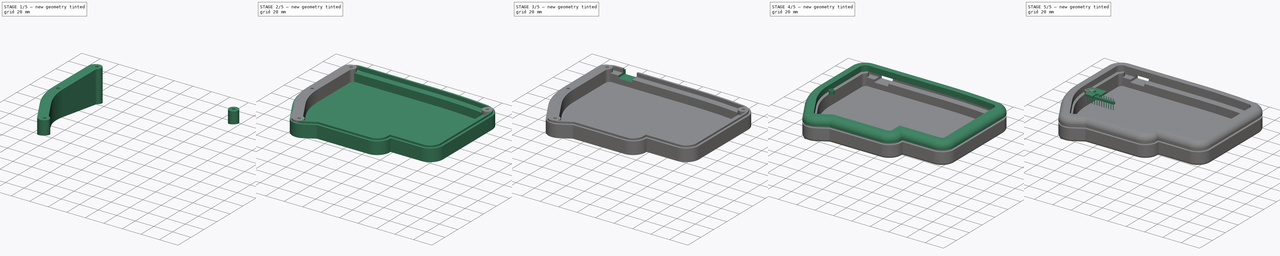
[diagram: build sequence overview — one tinted view per stage of 5, left to right]
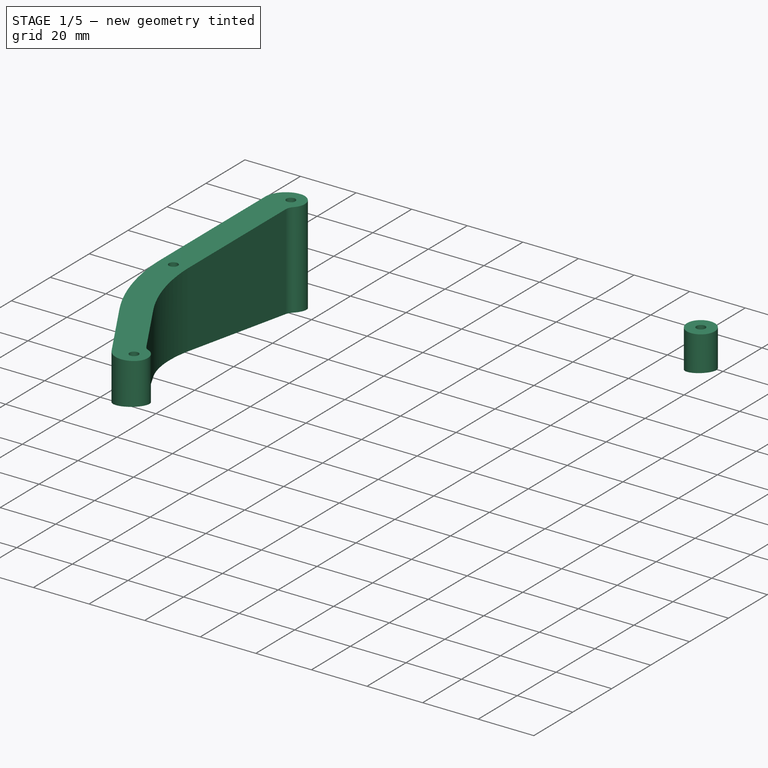
[diagram: stage 1 of 5 — iso view after this stage's code; geometry added in this stage tinted green]
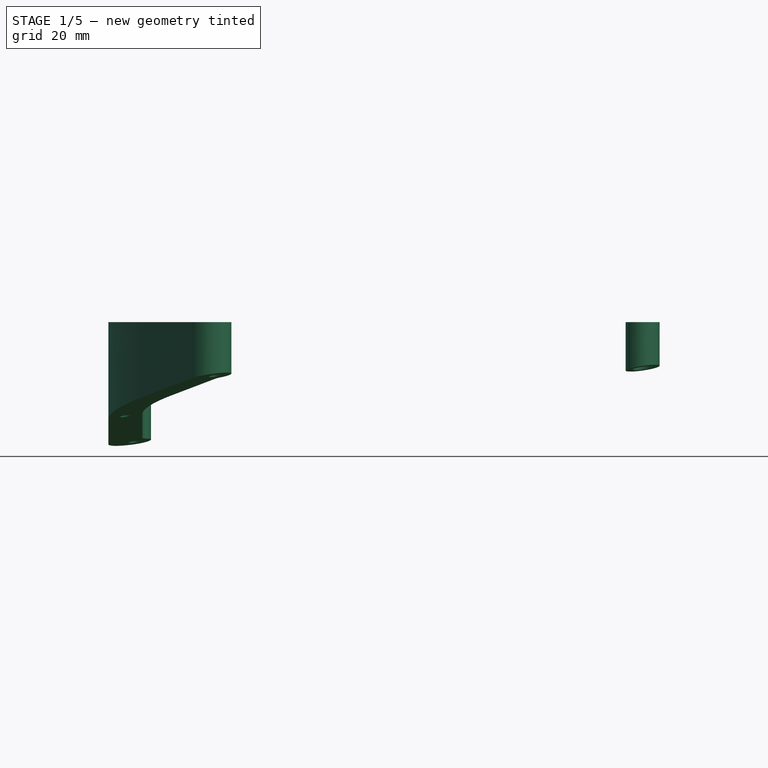
[diagram: stage 1 of 5 — front view after this stage's code; geometry added in this stage tinted green]
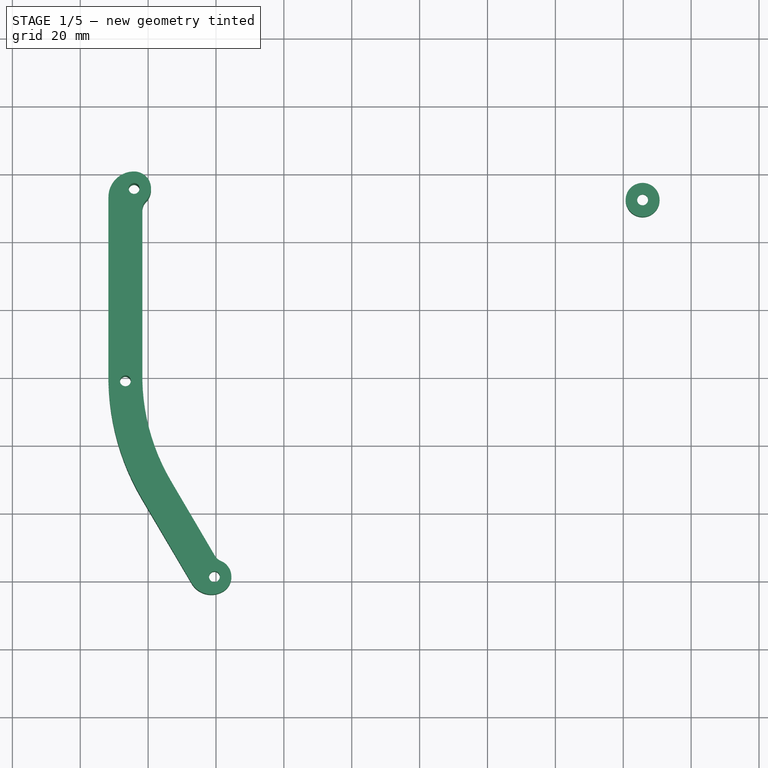
[diagram: stage 1 of 5 — top view after this stage's code; geometry added in this stage tinted green]
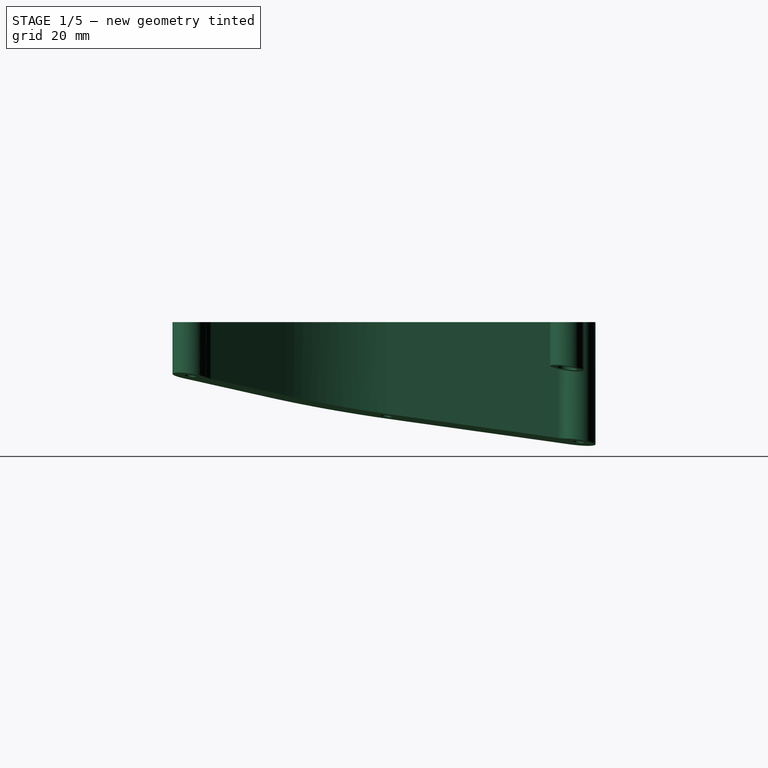
[diagram: stage 1 of 5 — right view after this stage's code; geometry added in this stage tinted green]
FCSTD DOCUMENT  (FreeCAD 0.21R33694 (Git))
Label: pro_case_usbc_gasket_mount
License: All rights reserved
LicenseURL: http://en.wikipedia.org/wiki/All_rights_reserved
objects: Sketcher::SketchObject×33, PartDesign::CoordinateSystem×26, PartDesign::Pocket×13, PartDesign::Pad×12, App::Part×11, App::Link×11, PartDesign::Body×9, Spreadsheet::Sheet×8, PartDesign::Plane×6, PartDesign::ShapeBinder×6, Part::Feature×3, App::DocumentObjectGroup×3, PartDesign::Hole×2, PartDesign::Fillet×2, App::FeaturePython×1, PartDesign::LinearPattern×1, PartDesign::MultiTransform×1
note: 143 computed .brp shape members not serialized (recipe doc carries the construction recipe); baked Part::Feature solids carry a one-line shape summary decoded from their .brp

FEATURE [Part::Feature] Board_outline
  Placement = pos=(-82.9363,87.5957,1.6) rot=(0,0,1;0rad)
  shape: bbox 142.5 x 106.3 x 1.6 mm, 253 faces (baked)
FEATURE [PartDesign::Plane] DatumPlane
  AttachmentOffset = pos=(0,0,13.56) rot=(0,0,1;0rad)
  Length = 135.867
  MapMode = 5
  Placement = pos=(-13.56,3e-15,-3e-15) rot=(-0.57735,0.57735,0.57735;4.18879rad)
  ResizeMode = 0
  Support = -> [YZ_Plane003]
  Width = 65.5147
  expr: .AttachmentOffset.Base.z = <<ss_case>>.hole_plane_offset
FEATURE [Sketcher::SketchObject] PCB_Sketch_f218
  FullyConstrained = false
  sketch-geometry (120):
    g0: LineSegment StartX=116.187 StartY=-136.481 StartZ=0 EndX=117.862 EndY=-135.511 EndZ=0
    g1: LineSegment StartX=114.511 StartY=-137.451 StartZ=0 EndX=116.187 EndY=-136.481 EndZ=0
    g2: LineSegment StartX=82.9375 StartY=-50.7506 StartZ=0 EndX=82.9375 EndY=-44.4437 EndZ=0
    g3: LineSegment StartX=82.9375 StartY=-57.0576 StartZ=0 EndX=82.9375 EndY=-50.7506 EndZ=0
    g4: LineSegment StartX=115.212 StartY=-37.0868 StartZ=0 EndX=104.804 EndY=-37.0868 EndZ=0
    g5: LineSegment StartX=218.692 StartY=-120.79 StartZ=0 EndX=223.96 EndY=-120.79 EndZ=0
    g6: LineSegment StartX=213.425 StartY=-120.79 StartZ=0 EndX=218.692 EndY=-120.79 EndZ=0
    g7: LineSegment StartX=208.157 StartY=-120.79 StartZ=0 EndX=213.425 EndY=-120.79 EndZ=0
    g8: LineSegment StartX=202.89 StartY=-120.79 StartZ=0 EndX=208.157 EndY=-120.79 EndZ=0
    g9: LineSegment StartX=197.622 StartY=-120.79 StartZ=0 EndX=202.89 EndY=-120.79 EndZ=0
    g10: LineSegment StartX=192.355 StartY=-120.79 StartZ=0 EndX=197.622 EndY=-120.79 EndZ=0
    g11: LineSegment StartX=187.087 StartY=-120.79 StartZ=0 EndX=192.355 EndY=-120.79 EndZ=0
    g12: LineSegment StartX=181.819 StartY=-120.79 StartZ=0 EndX=187.087 EndY=-120.79 EndZ=0
    g13: LineSegment StartX=181.114 StartY=-120.861 StartZ=0 EndX=181.819 EndY=-120.79 EndZ=0
    g14: LineSegment StartX=180.456 StartY=-121.065 StartZ=0 EndX=181.114 EndY=-120.861 EndZ=0
    g15: LineSegment StartX=179.862 StartY=-121.387 StartZ=0 EndX=180.456 EndY=-121.065 EndZ=0
    g16: LineSegment StartX=179.344 StartY=-121.814 StartZ=0 EndX=179.862 EndY=-121.387 EndZ=0
    g17: LineSegment StartX=178.917 StartY=-122.332 StartZ=0 EndX=179.344 EndY=-121.814 EndZ=0
    g18: LineSegment StartX=178.594 StartY=-122.927 StartZ=0 EndX=178.917 EndY=-122.332 EndZ=0
    g19: LineSegment StartX=178.39 StartY=-123.584 StartZ=0 EndX=178.594 EndY=-122.927 EndZ=0
    g20: LineSegment StartX=178.319 StartY=-124.29 StartZ=0 EndX=178.39 EndY=-123.584 EndZ=0
    g21: LineSegment StartX=199.808 StartY=-38.1705 StartZ=0 EndX=189.92 EndY=-37.5854 EndZ=0
    g22: LineSegment StartX=208.421 StartY=-38.9456 StartZ=0 EndX=199.808 EndY=-38.1705 EndZ=0
    g23: LineSegment StartX=215.526 StartY=-39.8852 StartZ=0 EndX=208.421 EndY=-38.9456 EndZ=0
    g24: LineSegment StartX=220.889 StartY=-40.9638 StartZ=0 EndX=215.526 EndY=-39.8852 EndZ=0
    g25: LineSegment StartX=178.99 StartY=-37.2157 StartZ=0 EndX=167.251 EndY=-37.0868 EndZ=0
    g26: LineSegment StartX=189.92 StartY=-37.5854 StartZ=0 EndX=178.99 EndY=-37.2157 EndZ=0
    g27: LineSegment StartX=177.658 StartY=-135.256 StartZ=0 EndX=177.404 EndY=-135.394 EndZ=0
    g28: LineSegment StartX=177.88 StartY=-135.073 StartZ=0 EndX=177.658 EndY=-135.256 EndZ=0
    g29: LineSegment StartX=178.063 StartY=-134.851 StartZ=0 EndX=177.88 EndY=-135.073 EndZ=0
    g30: LineSegment StartX=178.202 StartY=-134.596 StartZ=0 EndX=178.063 EndY=-134.851 EndZ=0
    g31: LineSegment StartX=178.289 StartY=-134.314 StartZ=0 EndX=178.202 EndY=-134.596 EndZ=0
    g32: LineSegment StartX=178.319 StartY=-134.012 StartZ=0 EndX=178.289 EndY=-134.314 EndZ=0
    g33: LineSegment StartX=225.46 StartY=-52.9184 StartZ=0 EndX=225.46 EndY=-62.4 EndZ=0
    g34: LineSegment StartX=225.46 StartY=-43.4368 StartZ=0 EndX=225.46 EndY=-52.9184 EndZ=0
    g35: LineSegment StartX=82.9375 StartY=-69.6714 StartZ=0 EndX=82.9375 EndY=-63.3645 EndZ=0
    g36: LineSegment StartX=82.9375 StartY=-75.9784 StartZ=0 EndX=82.9375 EndY=-69.6714 EndZ=0
    g37: LineSegment StartX=82.9375 StartY=-82.2853 StartZ=0 EndX=82.9375 EndY=-75.9784 EndZ=0
    g38: LineSegment StartX=82.9375 StartY=-88.5922 StartZ=0 EndX=82.9375 EndY=-82.2853 EndZ=0
    g39: LineSegment StartX=104.804 StartY=-37.0868 StartZ=0 EndX=94.396 EndY=-37.0868 EndZ=0
    g40: LineSegment StartX=125.62 StartY=-37.0868 StartZ=0 EndX=115.212 EndY=-37.0868 EndZ=0
    g41: LineSegment StartX=136.027 StartY=-37.0868 StartZ=0 EndX=125.62 EndY=-37.0868 EndZ=0
    g42: LineSegment StartX=146.435 StartY=-37.0868 StartZ=0 EndX=136.027 EndY=-37.0868 EndZ=0
    g43: LineSegment StartX=156.843 StartY=-37.0868 StartZ=0 EndX=146.435 EndY=-37.0868 EndZ=0
    g44: LineSegment StartX=167.251 StartY=-37.0868 StartZ=0 EndX=156.843 EndY=-37.0868 EndZ=0
    g45: LineSegment StartX=83.4009 StartY=-37.266 StartZ=0 EndX=83.5793 EndY=-37.1692 EndZ=0
    g46: LineSegment StartX=83.2456 StartY=-37.3941 StartZ=0 EndX=83.4009 EndY=-37.266 EndZ=0
    g47: LineSegment StartX=83.1174 StartY=-37.5495 StartZ=0 EndX=83.2456 EndY=-37.3941 EndZ=0
    g48: LineSegment StartX=83.0207 StartY=-37.7279 StartZ=0 EndX=83.1174 EndY=-37.5495 EndZ=0
    g49: LineSegment StartX=82.9595 StartY=-37.925 StartZ=0 EndX=83.0207 EndY=-37.7279 EndZ=0
    g50: LineSegment StartX=82.9382 StartY=-38.1368 StartZ=0 EndX=82.9595 EndY=-37.925 EndZ=0
    g51: LineSegment StartX=83.7765 StartY=-37.1081 StartZ=0 EndX=83.9882 EndY=-37.0868 EndZ=0
    g52: LineSegment StartX=83.5793 StartY=-37.1692 StartZ=0 EndX=83.7765 EndY=-37.1081 EndZ=0
    g53: LineSegment StartX=94.396 StartY=-37.0868 StartZ=0 EndX=83.9882 EndY=-37.0868 EndZ=0
    g54: LineSegment StartX=82.9375 StartY=-63.3645 StartZ=0 EndX=82.9375 EndY=-57.0576 EndZ=0
    g55: LineSegment StartX=82.9375 StartY=-44.4437 StartZ=0 EndX=82.9382 EndY=-38.1368 EndZ=0
    g56: LineSegment StartX=88.2918 StartY=-116.318 StartZ=0 EndX=89.9933 EndY=-119.99 EndZ=0
    g57: LineSegment StartX=86.8631 StartY=-112.531 StartZ=0 EndX=88.2918 EndY=-116.318 EndZ=0
    g58: LineSegment StartX=85.688 StartY=-108.649 StartZ=0 EndX=86.8631 EndY=-112.531 EndZ=0
    g59: LineSegment StartX=84.7471 StartY=-104.695 StartZ=0 EndX=85.688 EndY=-108.649 EndZ=0
    g60: LineSegment StartX=84.021 StartY=-100.691 StartZ=0 EndX=84.7471 EndY=-104.695 EndZ=0
    g61: LineSegment StartX=83.4903 StartY=-96.6577 StartZ=0 EndX=84.021 EndY=-100.691 EndZ=0
    g62: LineSegment StartX=83.1357 StartY=-92.6176 StartZ=0 EndX=83.4903 EndY=-96.6577 EndZ=0
    g63: LineSegment StartX=82.9375 StartY=-88.5922 StartZ=0 EndX=83.1357 EndY=-92.6176 EndZ=0
    g64: LineSegment StartX=104.289 StartY=-143.357 StartZ=0 EndX=104.457 EndY=-143.272 EndZ=0
    g65: LineSegment StartX=104.13 StartY=-143.404 StartZ=0 EndX=104.289 EndY=-143.357 EndZ=0
    g66: LineSegment StartX=103.981 StartY=-143.414 StartZ=0 EndX=104.13 EndY=-143.404 EndZ=0
    g67: LineSegment StartX=103.842 StartY=-143.386 StartZ=0 EndX=103.981 EndY=-143.414 EndZ=0
    g68: LineSegment StartX=103.714 StartY=-143.323 StartZ=0 EndX=103.842 EndY=-143.386 EndZ=0
    g69: LineSegment StartX=103.597 StartY=-143.223 StartZ=0 EndX=103.714 EndY=-143.323 EndZ=0
    g70: LineSegment StartX=103.492 StartY=-143.088 StartZ=0 EndX=103.597 EndY=-143.223 EndZ=0
    g71: LineSegment StartX=103.398 StartY=-142.919 StartZ=0 EndX=103.492 EndY=-143.088 EndZ=0
    g72: LineSegment StartX=112.835 StartY=-138.421 StartZ=0 EndX=114.511 EndY=-137.451 EndZ=0
    g73: LineSegment StartX=111.16 StartY=-139.391 StartZ=0 EndX=112.835 EndY=-138.421 EndZ=0
    g74: LineSegment StartX=109.484 StartY=-140.361 StartZ=0 EndX=111.16 EndY=-139.391 EndZ=0
    g75: LineSegment StartX=107.808 StartY=-141.331 StartZ=0 EndX=109.484 EndY=-140.361 EndZ=0
    g76: LineSegment StartX=106.132 StartY=-142.302 StartZ=0 EndX=107.808 EndY=-141.331 EndZ=0
    g77: LineSegment StartX=104.457 StartY=-143.272 StartZ=0 EndX=106.132 EndY=-142.302 EndZ=0
    g78: LineSegment StartX=101.723 StartY=-140.053 StartZ=0 EndX=103.398 EndY=-142.919 EndZ=0
    g79: LineSegment StartX=100.047 StartY=-137.186 StartZ=0 EndX=101.723 EndY=-140.053 EndZ=0
    g80: LineSegment StartX=98.3713 StartY=-134.32 StartZ=0 EndX=100.047 EndY=-137.186 EndZ=0
    g81: LineSegment StartX=96.6956 StartY=-131.454 StartZ=0 EndX=98.3713 EndY=-134.32 EndZ=0
    g82: LineSegment StartX=95.02 StartY=-128.587 StartZ=0 EndX=96.6956 EndY=-131.454 EndZ=0
    g83: LineSegment StartX=93.3443 StartY=-125.721 StartZ=0 EndX=95.02 EndY=-128.587 EndZ=0
    g84: LineSegment StartX=91.6686 StartY=-122.855 StartZ=0 EndX=93.3443 EndY=-125.721 EndZ=0
    g85: LineSegment StartX=89.9933 StartY=-119.99 StartZ=0 EndX=91.6686 EndY=-122.855 EndZ=0
    g86: LineSegment StartX=169.45 StartY=-135.512 StartZ=0 EndX=176.819 EndY=-135.512 EndZ=0
    g87: LineSegment StartX=162.08 StartY=-135.512 StartZ=0 EndX=169.45 EndY=-135.512 EndZ=0
    g88: LineSegment StartX=154.711 StartY=-135.512 StartZ=0 EndX=162.08 EndY=-135.512 EndZ=0
    g89: LineSegment StartX=147.341 StartY=-135.512 StartZ=0 EndX=154.711 EndY=-135.512 EndZ=0
    g90: LineSegment StartX=139.972 StartY=-135.512 StartZ=0 EndX=147.341 EndY=-135.512 EndZ=0
    g91: LineSegment StartX=132.602 StartY=-135.512 StartZ=0 EndX=139.972 EndY=-135.512 EndZ=0
    g92: LineSegment StartX=125.233 StartY=-135.512 StartZ=0 EndX=132.602 EndY=-135.512 EndZ=0
    g93: LineSegment StartX=117.862 StartY=-135.511 StartZ=0 EndX=125.233 EndY=-135.512 EndZ=0
    g94: LineSegment StartX=178.319 StartY=-132.816 StartZ=0 EndX=178.319 EndY=-134.012 EndZ=0
    g95: LineSegment StartX=178.319 StartY=-131.598 StartZ=0 EndX=178.319 EndY=-132.816 EndZ=0
    g96: LineSegment StartX=178.319 StartY=-130.38 StartZ=0 EndX=178.319 EndY=-131.598 EndZ=0
    g97: LineSegment StartX=178.319 StartY=-129.162 StartZ=0 EndX=178.319 EndY=-130.38 EndZ=0
    g98: LineSegment StartX=178.319 StartY=-127.944 StartZ=0 EndX=178.319 EndY=-129.162 EndZ=0
    g99: LineSegment StartX=178.319 StartY=-126.726 StartZ=0 EndX=178.319 EndY=-127.944 EndZ=0
    g100: LineSegment StartX=178.319 StartY=-125.508 StartZ=0 EndX=178.319 EndY=-126.726 EndZ=0
    g101: LineSegment StartX=178.319 StartY=-124.29 StartZ=0 EndX=178.319 EndY=-125.508 EndZ=0
    g102: LineSegment StartX=177.122 StartY=-135.481 StartZ=0 EndX=176.819 EndY=-135.512 EndZ=0
    g103: LineSegment StartX=177.404 StartY=-135.394 StartZ=0 EndX=177.122 EndY=-135.481 EndZ=0
    g104: LineSegment StartX=224.278 StartY=-42.1562 StartZ=0 EndX=220.889 EndY=-40.9638 EndZ=0
    g105: LineSegment StartX=225.46 StartY=-43.4368 StartZ=0 EndX=224.278 EndY=-42.1562 EndZ=0
    g106: LineSegment StartX=224.262 StartY=-120.759 StartZ=0 EndX=223.96 EndY=-120.79 EndZ=0
    g107: LineSegment StartX=224.544 StartY=-120.672 StartZ=0 EndX=224.262 EndY=-120.759 EndZ=0
    g108: LineSegment StartX=224.799 StartY=-120.534 StartZ=0 EndX=224.544 EndY=-120.672 EndZ=0
    g109: LineSegment StartX=225.021 StartY=-120.351 StartZ=0 EndX=224.799 EndY=-120.534 EndZ=0
    g110: LineSegment StartX=225.204 StartY=-120.129 StartZ=0 EndX=225.021 EndY=-120.351 EndZ=0
    g111: LineSegment StartX=225.342 StartY=-119.874 StartZ=0 EndX=225.204 EndY=-120.129 EndZ=0
    g112: LineSegment StartX=225.43 StartY=-119.592 StartZ=0 EndX=225.342 EndY=-119.874 EndZ=0
    g113: LineSegment StartX=225.46 StartY=-119.29 StartZ=0 EndX=225.43 EndY=-119.592 EndZ=0
    g114: LineSegment StartX=225.46 StartY=-109.808 StartZ=0 EndX=225.46 EndY=-119.29 EndZ=0
    g115: LineSegment StartX=225.46 StartY=-100.326 StartZ=0 EndX=225.46 EndY=-109.808 EndZ=0
    g116: LineSegment StartX=225.46 StartY=-90.8449 StartZ=0 EndX=225.46 EndY=-100.326 EndZ=0
    g117: LineSegment StartX=225.46 StartY=-81.3632 StartZ=0 EndX=225.46 EndY=-90.8449 EndZ=0
    g118: LineSegment StartX=225.46 StartY=-71.8816 StartZ=0 EndX=225.46 EndY=-81.3632 EndZ=0
    g119: LineSegment StartX=225.46 StartY=-62.4 StartZ=0 EndX=225.46 EndY=-71.8816 EndZ=0
  constraints (120):
    c: Coincident(g38,g63)
    c: Coincident(g37,g38)
    c: Coincident(g36,g37)
    c: Coincident(g35,g36)
    c: Coincident(g35,g54)
    c: Coincident(g3,g54)
    c: Coincident(g2,g3)
    c: Coincident(g2,g55)
    c: Coincident(g50,g55)
    c: Coincident(g49,g50)
    c: Coincident(g48,g49)
    c: Coincident(g47,g48)
    c: Coincident(g62,g63)
    c: Coincident(g46,g47)
    c: Coincident(g45,g46)
    c: Coincident(g61,g62)
    c: Coincident(g45,g52)
    c: Coincident(g51,g52)
    c: Coincident(g51,g53)
    c: Coincident(g60,g61)
    c: Coincident(g59,g60)
    c: Coincident(g58,g59)
    c: Coincident(g57,g58)
    c: Coincident(g56,g57)
    c: Coincident(g56,g85)
    c: Coincident(g84,g85)
    c: Coincident(g83,g84)
    c: Coincident(g39,g53)
    c: Coincident(g82,g83)
    c: Coincident(g81,g82)
    c: Coincident(g80,g81)
    c: Coincident(g79,g80)
    c: Coincident(g78,g79)
    c: Coincident(g71,g78)
    c: Coincident(g70,g71)
    c: Coincident(g69,g70)
    c: Coincident(g68,g69)
    c: Coincident(g67,g68)
    c: Coincident(g66,g67)
    c: Coincident(g65,g66)
    c: Coincident(g64,g65)
    c: Coincident(g64,g77)
    c: Coincident(g4,g39)
    c: Coincident(g76,g77)
    c: Coincident(g75,g76)
    c: Coincident(g74,g75)
    c: Coincident(g73,g74)
    c: Coincident(g72,g73)
    c: Coincident(g1,g72)
    c: Coincident(g4,g40)
    c: Coincident(g0,g1)
    c: Coincident(g0,g93)
    c: Coincident(g92,g93)
    c: Coincident(g40,g41)
    c: Coincident(g91,g92)
    c: Coincident(g41,g42)
    c: Coincident(g90,g91)
    c: Coincident(g42,g43)
    c: Coincident(g89,g90)
    c: Coincident(g88,g89)
    c: Coincident(g43,g44)
    c: Coincident(g87,g88)
    c: Coincident(g25,g44)
    c: Coincident(g86,g87)
    c: Coincident(g86,g102)
    c: Coincident(g102,g103)
    c: Coincident(g27,g103)
    c: Coincident(g27,g28)
    c: Coincident(g28,g29)
    c: Coincident(g29,g30)
    c: Coincident(g30,g31)
    c: Coincident(g31,g32)
    c: Coincident(g32,g94)
    c: Coincident(g94,g95)
    c: Coincident(g95,g96)
    c: Coincident(g96,g97)
    c: Coincident(g97,g98)
    c: Coincident(g98,g99)
    c: Coincident(g99,g100)
    c: Coincident(g100,g101)
    c: Coincident(g20,g101)
    c: Coincident(g19,g20)
    c: Coincident(g18,g19)
    c: Coincident(g17,g18)
    c: Coincident(g25,g26)
    c: Coincident(g16,g17)
    c: Coincident(g15,g16)
    c: Coincident(g14,g15)
    c: Coincident(g13,g14)
    c: Coincident(g12,g13)
    c: Coincident(g11,g12)
    c: Coincident(g21,g26)
    c: Coincident(g10,g11)
    c: Coincident(g9,g10)
    c: Coincident(g21,g22)
    c: Coincident(g8,g9)
    c: Coincident(g7,g8)
    c: Coincident(g22,g23)
    c: Coincident(g6,g7)
    c: Coincident(g23,g24)
    c: Coincident(g5,g6)
    c: Coincident(g24,g104)
    c: Coincident(g5,g106)
    c: Coincident(g106,g107)
    c: Coincident(g104,g105)
    c: Coincident(g107,g108)
    c: Coincident(g108,g109)
    c: Coincident(g109,g110)
    c: Coincident(g110,g111)
    c: Coincident(g111,g112)
    c: Coincident(g112,g113)
    c: Coincident(g113,g114)
    c: Coincident(g114,g115)
    c: Coincident(g115,g116)
    c: Coincident(g116,g117)
    c: Coincident(g117,g118)
    c: Coincident(g118,g119)
    c: Coincident(g33,g119)
    c: Coincident(g33,g34)
    c: Coincident(g34,g105)
FEATURE [Part::Feature] Pcb_f218
  Placement = pos=(-117.862,135.511,1.6) rot=(0,0,1;0rad)
  shape: bbox 142.5 x 106.3 x 1.6 mm, 823 faces (baked)
FEATURE [PartDesign::ShapeBinder] ShapeBinder002
  Placement = pos=(-82.9363,87.5957,1.6) rot=(0,0,1;0rad)
  Support = -> [Board_outline]
  TraceSupport = false
FEATURE [Sketcher::SketchObject] Sketch008  label="s_top_plate001"
  ExternalGeometry = -> [ShapeBinder002]
  FullyConstrained = true
  MapMode = 5
  Support = -> [XY_Plane010]
  expr: Constraints[435] = <<ss_top_plate>>.screw_hole_od
  expr: Constraints[85] = <<ss_top_plate>>.gasket_width
  sketch-geometry (187):
    g0: LineSegment StartX=27.7441 StartY=2.20222 StartZ=0 EndX=27.7441 EndY=50.2465 EndZ=0
    g1: LineSegment StartX=29.9578 StartY=52.4601 StartZ=0 EndX=84.3125 EndY=52.4601 EndZ=0
    g2: LineSegment StartX=142.522 StartY=46.1101 StartZ=0 EndX=142.522 EndY=-29.7428 EndZ=0
    g3: LineSegment StartX=95.381 StartY=-34.7428 StartZ=0 EndX=95.381 EndY=-44.4872 EndZ=0
    g4: LineSegment StartX=93.9034 StartY=-45.9648 StartZ=0 EndX=34.9248 EndY=-45.9648 EndZ=0
    g5: LineSegment StartX=34.9248 StartY=-45.9648 StartZ=0 EndX=21.3774 EndY=-53.8065 EndZ=0
    g6: LineSegment StartX=20.5079 StartY=-53.5776 StartZ=0 EndX=7.05497 EndY=-30.6854 EndZ=0
    g7: LineSegment StartX=98.881 StartY=-31.2428 StartZ=0 EndX=141.022 EndY=-31.2428 EndZ=0
    g8: LineSegment StartX=27.7441 StartY=2.20222 StartZ=0 EndX=2.19941 EndY=2.20233 EndZ=0
    g9: ArcOfCircle CenterX=59.4385 CenterY=0.0985715 CenterZ=0 NormalX=0 NormalY=0 NormalZ=1 AngleXU=0 Radius=60.7592 StartAngle=3.16603 EndAngle=3.67289
    g10: ArcOfCircle CenterX=2.19939 CenterY=-1.30071 CenterZ=0 NormalX=0 NormalY=0 NormalZ=1 AngleXU=0 Radius=3.50304 StartAngle=1.57079 EndAngle=3.16603
    g11: ArcOfCircle CenterX=84.3125 CenterY=-450.952 CenterZ=0 NormalX=0 NormalY=0 NormalZ=1 AngleXU=0 Radius=503.412 StartAngle=1.46083 EndAngle=1.5708
    g12: ArcOfCircle CenterX=139.192 CenterY=46.1101 CenterZ=0 NormalX=0 NormalY=0 NormalZ=1 AngleXU=0 Radius=3.32961 StartAngle=6e-16 EndAngle=1.46083
    g13: ArcOfCircle CenterX=21.0579 CenterY=-53.2544 CenterZ=0 NormalX=0 NormalY=0 NormalZ=1 AngleXU=0 Radius=0.637877 StartAngle=3.67289 EndAngle=5.2371
    g14: ArcOfCircle CenterX=93.9034 CenterY=-44.4872 CenterZ=0 NormalX=0 NormalY=0 NormalZ=1 AngleXU=0 Radius=1.47761 StartAngle=4.71239 EndAngle=6.28319
    g15: ArcOfCircle CenterX=98.881 CenterY=-34.7428 CenterZ=0 NormalX=0 NormalY=0 NormalZ=1 AngleXU=0 Radius=3.5 StartAngle=1.5708 EndAngle=3.14159
    g16: ArcOfCircle CenterX=141.022 CenterY=-29.7428 CenterZ=0 NormalX=0 NormalY=0 NormalZ=1 AngleXU=0 Radius=1.5 StartAngle=4.71239 EndAngle=6.28319
    g17: ArcOfCircle CenterX=29.9578 CenterY=50.2465 CenterZ=0 NormalX=0 NormalY=0 NormalZ=1 AngleXU=0 Radius=2.21364 StartAngle=1.5708 EndAngle=3.14159
    g18: LineSegment StartX=-1.3026 StartY=-1.38632 StartZ=0 EndX=0.0777 EndY=-1.38632 EndZ=0
    g19: LineSegment StartX=27.7344 StartY=59.4601 StartZ=0 EndX=84.3125 EndY=59.4601 EndZ=0
    g20: LineSegment StartX=149.522 StartY=46.1101 StartZ=0 EndX=149.522 EndY=-29.7428 EndZ=0
    g21: LineSegment StartX=141.022 StartY=-38.2428 StartZ=0 EndX=102.381 EndY=-38.2428 EndZ=0
    g22: LineSegment StartX=102.381 StartY=-38.2428 StartZ=0 EndX=102.381 EndY=-44.4872 EndZ=0
    g23: LineSegment StartX=93.9034 StartY=-52.9648 StartZ=0 EndX=36.8046 EndY=-52.9648 EndZ=0
    g24: LineSegment StartX=36.8046 StartY=-52.9648 StartZ=0 EndX=24.8842 EndY=-59.8648 EndZ=0
    g25: LineSegment StartX=14.4729 StartY=-57.1242 StartZ=0 EndX=1.01993 EndY=-34.232 EndZ=0
    g26: ArcOfCircle CenterX=139.192 CenterY=46.1101 CenterZ=0 NormalX=0 NormalY=0 NormalZ=1 AngleXU=0 Radius=10.3296 StartAngle=0 EndAngle=1.46083
    g27: ArcOfCircle CenterX=84.3125 CenterY=-450.952 CenterZ=0 NormalX=0 NormalY=0 NormalZ=1 AngleXU=0 Radius=510.412 StartAngle=1.46083 EndAngle=1.5708
    g28: ArcOfCircle CenterX=59.4385 CenterY=0.0985715 CenterZ=0 NormalX=0 NormalY=0 NormalZ=1 AngleXU=0 Radius=67.7592 StartAngle=3.16351 EndAngle=3.67289
    g29: ArcOfCircle CenterX=21.0579 CenterY=-53.2544 CenterZ=0 NormalX=0 NormalY=0 NormalZ=1 AngleXU=0 Radius=7.63788 StartAngle=3.67289 EndAngle=5.2371
    g30: ArcOfCircle CenterX=93.9034 CenterY=-44.4872 CenterZ=0 NormalX=0 NormalY=0 NormalZ=1 AngleXU=0 Radius=8.47761 StartAngle=4.71239 EndAngle=6.28319
    g31: ArcOfCircle CenterX=141.022 CenterY=-29.7428 CenterZ=0 NormalX=0 NormalY=0 NormalZ=1 AngleXU=0 Radius=8.5 StartAngle=4.71239 EndAngle=6.28319
    g32: LineSegment StartX=141.022 StartY=-38.2428 StartZ=0 EndX=141.022 EndY=-31.2428 EndZ=0
    g33: LineSegment StartX=93.9034 StartY=-52.9648 StartZ=0 EndX=93.9034 EndY=-45.9648 EndZ=0
    g34: LineSegment StartX=24.8842 StartY=-59.8648 StartZ=0 EndX=21.3774 EndY=-53.8065 EndZ=0
    g35: LineSegment StartX=1.01993 StartY=-34.232 StartZ=0 EndX=7.05497 EndY=-30.6854 EndZ=0
    g36: LineSegment StartX=27.7344 StartY=59.4601 StartZ=0 EndX=27.7441 EndY=4.40223 EndZ=0
    g37: LineSegment StartX=25.5445 StartY=2.20223 StartZ=0 EndX=-4.79372 EndY=2.20223 EndZ=0
    g38: ArcOfCircle CenterX=-4.79372 CenterY=-1.30937 CenterZ=0 NormalX=0 NormalY=0 NormalZ=1 AngleXU=0 Radius=3.5116 StartAngle=1.5708 EndAngle=3.16351
    g39: ArcOfCircle CenterX=25.5445 CenterY=4.40184 CenterZ=0 NormalX=0 NormalY=0 NormalZ=1 AngleXU=0 Radius=2.19961 StartAngle=4.71239 EndAngle=6.28336
    g40: LineSegment StartX=84.3125 StartY=52.4601 StartZ=0 EndX=84.3125 EndY=59.4601 EndZ=0
    g41: LineSegment StartX=11.463 StartY=-0.95364 StartZ=0 EndX=25.4152 EndY=-0.95364 EndZ=0
    g42: LineSegment StartX=25.4152 StartY=-0.95364 StartZ=0 EndX=25.4152 EndY=-14.9537 EndZ=0
    g43: LineSegment StartX=25.4152 StartY=-14.9537 StartZ=0 EndX=11.463 EndY=-14.9537 EndZ=0
    g44: LineSegment StartX=11.463 StartY=-14.9537 StartZ=0 EndX=11.463 EndY=-0.95364 EndZ=0
    g45: LineSegment StartX=30.5626 StartY=46.5466 StartZ=0 EndX=44.5628 EndY=46.5466 EndZ=0
    g46: LineSegment StartX=44.5628 StartY=46.5466 StartZ=0 EndX=44.5628 EndY=32.5466 EndZ=0
    g47: LineSegment StartX=44.5628 StartY=32.5466 StartZ=0 EndX=30.5626 EndY=32.5466 EndZ=0
    g48: LineSegment StartX=30.5626 StartY=32.5466 StartZ=0 EndX=30.5626 EndY=46.5466 EndZ=0
    g49: LineSegment StartX=49.5629 StartY=48.9469 StartZ=0 EndX=63.5631 EndY=48.9469 EndZ=0
    g50: LineSegment StartX=63.5631 StartY=48.9469 StartZ=0 EndX=63.5631 EndY=34.9469 EndZ=0
    g51: LineSegment StartX=63.5631 StartY=34.9469 StartZ=0 EndX=49.5629 EndY=34.9469 EndZ=0
    g52: LineSegment StartX=49.5629 StartY=34.9469 StartZ=0 EndX=49.5629 EndY=48.9469 EndZ=0
    g53: LineSegment StartX=68.5928 StartY=50.3363 StartZ=0 EndX=82.593 EndY=50.3363 EndZ=0
    g54: LineSegment StartX=82.593 StartY=50.3363 StartZ=0 EndX=82.593 EndY=36.3362 EndZ=0
    g55: LineSegment StartX=82.593 StartY=36.3362 StartZ=0 EndX=68.5928 EndY=36.3362 EndZ=0
    g56: LineSegment StartX=68.5928 StartY=36.3362 StartZ=0 EndX=68.5928 EndY=50.3363 EndZ=0
    g57: LineSegment StartX=87.6676 StartY=48.9469 StartZ=0 EndX=101.668 EndY=48.9469 EndZ=0
    g58: LineSegment StartX=101.668 StartY=48.9469 StartZ=0 EndX=101.668 EndY=34.9469 EndZ=0
    g59: LineSegment StartX=101.668 StartY=34.9469 StartZ=0 EndX=87.6676 EndY=34.9469 EndZ=0
    g60: LineSegment StartX=87.6676 StartY=34.9469 StartZ=0 EndX=87.6676 EndY=48.9469 EndZ=0
    g61: LineSegment StartX=106.764 StartY=44.1463 StartZ=0 EndX=120.764 EndY=44.1463 EndZ=0
    g62: LineSegment StartX=120.764 StartY=44.1463 StartZ=0 EndX=120.764 EndY=30.1463 EndZ=0
    g63: LineSegment StartX=120.764 StartY=30.1463 StartZ=0 EndX=106.764 EndY=30.1463 EndZ=0
    g64: LineSegment StartX=106.764 StartY=30.1463 StartZ=0 EndX=106.764 EndY=44.1463 EndZ=0
    g65: LineSegment StartX=125.761 StartY=42.6469 StartZ=0 EndX=139.762 EndY=42.6469 EndZ=0
    g66: LineSegment StartX=139.762 StartY=42.6469 StartZ=0 EndX=139.762 EndY=28.6464 EndZ=0
    g67: LineSegment StartX=139.762 StartY=28.6464 StartZ=0 EndX=125.761 EndY=28.6464 EndZ=0
    g68: LineSegment StartX=125.761 StartY=28.6464 StartZ=0 EndX=125.761 EndY=42.6469 EndZ=0
    g69: LineSegment StartX=30.5636 StartY=27.4453 StartZ=0 EndX=44.5638 EndY=27.4453 EndZ=0
    g70: LineSegment StartX=44.5638 StartY=27.4453 StartZ=0 EndX=44.5638 EndY=13.4453 EndZ=0
    g71: LineSegment StartX=44.5638 StartY=13.4453 StartZ=0 EndX=30.5636 EndY=13.4453 EndZ=0
    g72: LineSegment StartX=30.5636 StartY=13.4453 StartZ=0 EndX=30.5636 EndY=27.4453 EndZ=0
    g73: LineSegment StartX=49.5629 StartY=29.8461 StartZ=0 EndX=63.5631 EndY=29.8461 EndZ=0
    g74: LineSegment StartX=63.5631 StartY=29.8461 StartZ=0 EndX=63.5631 EndY=15.8461 EndZ=0
    g75: LineSegment StartX=63.5631 StartY=15.8461 StartZ=0 EndX=49.5629 EndY=15.8461 EndZ=0
    g76: LineSegment StartX=49.5629 StartY=15.8461 StartZ=0 EndX=49.5629 EndY=29.8461 EndZ=0
    g77: LineSegment StartX=68.6637 StartY=31.2457 StartZ=0 EndX=82.6639 EndY=31.2457 EndZ=0
    g78: LineSegment StartX=82.6639 StartY=31.2457 StartZ=0 EndX=82.6639 EndY=17.2456 EndZ=0
    g79: LineSegment StartX=82.6639 StartY=17.2456 StartZ=0 EndX=68.6637 EndY=17.2456 EndZ=0
    g80: LineSegment StartX=68.6637 StartY=17.2456 StartZ=0 EndX=68.6637 EndY=31.2457 EndZ=0
    g81: LineSegment StartX=87.6617 StartY=29.9467 StartZ=0 EndX=101.662 EndY=29.9467 EndZ=0
    g82: LineSegment StartX=101.662 StartY=29.9467 StartZ=0 EndX=101.662 EndY=15.9466 EndZ=0
    g83: LineSegment StartX=101.662 StartY=15.9466 StartZ=0 EndX=87.6617 EndY=15.9466 EndZ=0
    g84: LineSegment StartX=87.6617 StartY=15.9466 StartZ=0 EndX=87.6617 EndY=29.9467 EndZ=0
    g85: LineSegment StartX=106.762 StartY=25.2462 StartZ=0 EndX=120.763 EndY=25.2462 EndZ=0
    g86: LineSegment StartX=120.763 StartY=25.2462 StartZ=0 EndX=120.763 EndY=11.2462 EndZ=0
    g87: LineSegment StartX=120.763 StartY=11.2462 StartZ=0 EndX=106.762 EndY=11.2462 EndZ=0
    g88: LineSegment StartX=106.762 StartY=11.2462 StartZ=0 EndX=106.762 EndY=25.2462 EndZ=0
    g89: LineSegment StartX=125.761 StartY=23.7455 StartZ=0 EndX=139.762 EndY=23.7455 EndZ=0
    g90: LineSegment StartX=139.762 StartY=23.7455 StartZ=0 EndX=139.762 EndY=9.74756 EndZ=0
    g91: LineSegment StartX=139.762 StartY=9.74756 StartZ=0 EndX=125.761 EndY=9.74756 EndZ=0
    g92: LineSegment StartX=125.761 StartY=9.74756 StartZ=0 EndX=125.761 EndY=23.7455 EndZ=0
    g93: LineSegment StartX=30.5626 StartY=8.44811 StartZ=0 EndX=44.5628 EndY=8.44811 EndZ=0
    g94: LineSegment StartX=44.5628 StartY=8.44811 StartZ=0 EndX=44.5628 EndY=-5.55192 EndZ=0
    g95: LineSegment StartX=44.5628 StartY=-5.55192 StartZ=0 EndX=30.5626 EndY=-5.55192 EndZ=0
    g96: LineSegment StartX=30.5626 StartY=-5.55192 StartZ=0 EndX=30.5626 EndY=8.44811 EndZ=0
    g97: LineSegment StartX=49.5638 StartY=10.8451 StartZ=0 EndX=63.564 EndY=10.8451 EndZ=0
    g98: LineSegment StartX=63.564 StartY=10.8451 StartZ=0 EndX=63.564 EndY=-3.15488 EndZ=0
    g99: LineSegment StartX=63.564 StartY=-3.15488 StartZ=0 EndX=49.5638 EndY=-3.15488 EndZ=0
    g100: LineSegment StartX=49.5638 StartY=-3.15488 StartZ=0 EndX=49.5638 EndY=10.8451 EndZ=0
    g101: LineSegment StartX=68.6637 StartY=12.1474 StartZ=0 EndX=82.6639 EndY=12.1474 EndZ=0
    g102: LineSegment StartX=82.6639 StartY=12.1474 StartZ=0 EndX=82.6639 EndY=-1.85258 EndZ=0
    g103: LineSegment StartX=82.6639 StartY=-1.85258 StartZ=0 EndX=68.6637 EndY=-1.85258 EndZ=0
    g104: LineSegment StartX=68.6637 StartY=-1.85258 StartZ=0 EndX=68.6637 EndY=12.1474 EndZ=0
    g105: LineSegment StartX=87.6637 StartY=10.8474 StartZ=0 EndX=101.664 EndY=10.8474 EndZ=0
    g106: LineSegment StartX=101.664 StartY=10.8474 StartZ=0 EndX=101.664 EndY=-3.15263 EndZ=0
    g107: LineSegment StartX=101.664 StartY=-3.15263 StartZ=0 EndX=87.6637 EndY=-3.15263 EndZ=0
    g108: LineSegment StartX=87.6637 StartY=-3.15263 StartZ=0 EndX=87.6637 EndY=10.8474 EndZ=0
    g109: LineSegment StartX=106.749 StartY=6.04637 StartZ=0 EndX=120.749 EndY=6.04637 EndZ=0
    g110: LineSegment StartX=120.749 StartY=6.04637 StartZ=0 EndX=120.749 EndY=-7.95365 EndZ=0
    g111: LineSegment StartX=120.749 StartY=-7.95365 StartZ=0 EndX=106.749 EndY=-7.95365 EndZ=0
    g112: LineSegment StartX=106.749 StartY=-7.95365 StartZ=0 EndX=106.749 EndY=6.04637 EndZ=0
    g113: LineSegment StartX=125.764 StartY=4.54519 StartZ=0 EndX=139.764 EndY=4.54519 EndZ=0
    g114: LineSegment StartX=139.764 StartY=4.54519 StartZ=0 EndX=139.764 EndY=-9.45483 EndZ=0
    g115: LineSegment StartX=139.764 StartY=-9.45483 StartZ=0 EndX=125.764 EndY=-9.45483 EndZ=0
    g116: LineSegment StartX=125.764 StartY=-9.45483 StartZ=0 EndX=125.764 EndY=4.54519 EndZ=0
    g117: LineSegment StartX=30.5626 StartY=-10.5548 StartZ=0 EndX=44.5628 EndY=-10.5548 EndZ=0
    g118: LineSegment StartX=44.5628 StartY=-10.5548 StartZ=0 EndX=44.5628 EndY=-24.5548 EndZ=0
    g119: LineSegment StartX=44.5628 StartY=-24.5548 StartZ=0 EndX=30.5626 EndY=-24.5548 EndZ=0
    g120: LineSegment StartX=30.5626 StartY=-24.5548 StartZ=0 EndX=30.5626 EndY=-10.5548 EndZ=0
    g121: LineSegment StartX=49.5638 StartY=-8.25337 StartZ=0 EndX=63.564 EndY=-8.25337 EndZ=0
    g122: LineSegment StartX=63.564 StartY=-8.25337 StartZ=0 EndX=63.564 EndY=-22.2534 EndZ=0
    g123: LineSegment StartX=63.564 StartY=-22.2534 StartZ=0 EndX=49.5638 EndY=-22.2534 EndZ=0
    g124: LineSegment StartX=49.5638 StartY=-22.2534 StartZ=0 EndX=49.5638 EndY=-8.25337 EndZ=0
    g125: LineSegment StartX=68.6625 StartY=-6.85278 StartZ=0 EndX=82.6627 EndY=-6.85278 EndZ=0
    g126: LineSegment StartX=82.6627 StartY=-6.85278 StartZ=0 EndX=82.6627 EndY=-20.8528 EndZ=0
    g127: LineSegment StartX=82.6627 StartY=-20.8528 StartZ=0 EndX=68.6625 EndY=-20.8528 EndZ=0
    g128: LineSegment StartX=68.6625 StartY=-20.8528 StartZ=0 EndX=68.6625 EndY=-6.85278 EndZ=0
    g129: LineSegment StartX=87.663 StartY=-8.25358 StartZ=0 EndX=101.663 EndY=-8.25358 EndZ=0
    g130: LineSegment StartX=101.663 StartY=-8.25358 StartZ=0 EndX=101.663 EndY=-22.2536 EndZ=0
    g131: LineSegment StartX=101.663 StartY=-22.2536 StartZ=0 EndX=87.663 EndY=-22.2536 EndZ=0
    g132: LineSegment StartX=87.663 StartY=-22.2536 StartZ=0 EndX=87.663 EndY=-8.25358 EndZ=0
    g133: LineSegment StartX=106.763 StartY=-12.9526 StartZ=0 EndX=120.764 EndY=-12.9526 EndZ=0
    g134: LineSegment StartX=120.764 StartY=-12.9526 StartZ=0 EndX=120.764 EndY=-26.9526 EndZ=0
    g135: LineSegment StartX=120.764 StartY=-26.9526 StartZ=0 EndX=106.763 EndY=-26.9526 EndZ=0
    g136: LineSegment StartX=106.763 StartY=-26.9526 StartZ=0 EndX=106.763 EndY=-12.9526 EndZ=0
    g137: LineSegment StartX=125.812 StartY=-14.4535 StartZ=0 EndX=139.813 EndY=-14.4535 EndZ=0
    g138: LineSegment StartX=139.813 StartY=-14.4535 StartZ=0 EndX=139.813 EndY=-28.4535 EndZ=0
    g139: LineSegment StartX=139.813 StartY=-28.4535 StartZ=0 EndX=125.812 EndY=-28.4535 EndZ=0
    g140: LineSegment StartX=125.812 StartY=-28.4535 StartZ=0 EndX=125.812 EndY=-14.4535 EndZ=0
    g141: LineSegment StartX=40.0622 StartY=-29.4536 StartZ=0 EndX=54.0624 EndY=-29.4536 EndZ=0
    g142: LineSegment StartX=54.0624 StartY=-29.4536 StartZ=0 EndX=54.0624 EndY=-43.4537 EndZ=0
    g143: LineSegment StartX=54.0624 StartY=-43.4537 StartZ=0 EndX=40.0622 EndY=-43.4537 EndZ=0
    g144: LineSegment StartX=40.0622 StartY=-43.4537 StartZ=0 EndX=40.0622 EndY=-29.4536 EndZ=0
    g145: LineSegment StartX=59.0628 StartY=-27.2032 StartZ=0 EndX=73.063 EndY=-27.2032 EndZ=0
    g146: LineSegment StartX=73.063 StartY=-27.2032 StartZ=0 EndX=73.063 EndY=-41.2032 EndZ=0
    g147: LineSegment StartX=73.063 StartY=-41.2032 StartZ=0 EndX=59.0628 EndY=-41.2032 EndZ=0
    g148: LineSegment StartX=59.0628 StartY=-41.2032 StartZ=0 EndX=59.0628 EndY=-27.2032 EndZ=0
    g149: LineSegment StartX=78.1633 StartY=-27.2043 StartZ=0 EndX=92.1637 EndY=-27.2043 EndZ=0
    g150: LineSegment StartX=92.1637 StartY=-27.2043 StartZ=0 EndX=92.1637 EndY=-41.2047 EndZ=0
    g151: LineSegment StartX=92.1637 StartY=-41.2047 StartZ=0 EndX=78.1633 EndY=-41.2047 EndZ=0
    g152: LineSegment StartX=78.1633 StartY=-41.2047 StartZ=0 EndX=78.1633 EndY=-27.2043 EndZ=0
    g153: LineSegment StartX=12.5009 StartY=-34.891 StartZ=0 EndX=24.6255 EndY=-27.8909 EndZ=0
    g154: LineSegment StartX=24.6255 StartY=-27.8909 StartZ=0 EndX=31.6255 EndY=-40.0153 EndZ=0
    g155: LineSegment StartX=31.6255 StartY=-40.0153 StartZ=0 EndX=19.501 EndY=-47.0154 EndZ=0
    g156: LineSegment StartX=19.501 StartY=-47.0154 StartZ=0 EndX=12.5009 EndY=-34.891 EndZ=0
    g157: Circle CenterX=46.6637 CenterY=29.8957 CenterZ=0 NormalX=0 NormalY=0 NormalZ=1 AngleXU=0 Radius=1.2
    g158: Circle CenterX=122.864 CenterY=27.6957 CenterZ=0 NormalX=0 NormalY=0 NormalZ=1 AngleXU=0 Radius=1.2
    g159: Circle CenterX=122.864 CenterY=-10.5043 CenterZ=0 NormalX=0 NormalY=0 NormalZ=1 AngleXU=0 Radius=1.2
    g160: Circle CenterX=46.6637 CenterY=-8.10427 CenterZ=0 NormalX=0 NormalY=0 NormalZ=1 AngleXU=0 Radius=1.2
    g161: Circle CenterX=22.0637 CenterY=-25.3043 CenterZ=0 NormalX=0 NormalY=0 NormalZ=1 AngleXU=0 Radius=1.2
    g162: Circle CenterX=145.695 CenterY=51.9344 CenterZ=0 NormalX=0 NormalY=0 NormalZ=1 AngleXU=0 Radius=1.6
    g163: Circle CenterX=145.901 CenterY=-34.6219 CenterZ=0 NormalX=0 NormalY=0 NormalZ=1 AngleXU=0 Radius=1.6
    g164: Circle CenterX=98.7666 CenterY=-49.3504 CenterZ=0 NormalX=0 NormalY=0 NormalZ=1 AngleXU=0 Radius=1.6
    g165: Circle CenterX=19.5209 CenterY=-59.0934 CenterZ=0 NormalX=0 NormalY=0 NormalZ=1 AngleXU=0 Radius=1.6
    g166: Circle CenterX=-6.70447 CenterY=-1.38632 CenterZ=0 NormalX=0 NormalY=0 NormalZ=1 AngleXU=0 Radius=1.6
    g167: LineSegment StartX=20.8955 StartY=-53.8713 StartZ=0 EndX=19.1136 EndY=-60.6407 EndZ=0
    g168: LineSegment StartX=19.1136 StartY=-60.6407 StartZ=0 EndX=24.8842 EndY=-59.8648 EndZ=0
    g169: LineSegment StartX=19.1136 StartY=-60.6407 StartZ=0 EndX=14.4729 EndY=-57.1242 EndZ=0
    g170: LineSegment StartX=20.5079 StartY=-53.5776 StartZ=0 EndX=20.8955 EndY=-53.8713 EndZ=0
    g171: LineSegment StartX=21.3774 StartY=-53.8065 StartZ=0 EndX=20.8955 EndY=-53.8713 EndZ=0
    g172: LineSegment StartX=94.9482 StartY=-45.532 StartZ=0 EndX=99.8979 EndY=-50.4817 EndZ=0
    g173: LineSegment StartX=94.9482 StartY=-45.532 StartZ=0 EndX=93.9034 EndY=-44.4872 EndZ=0
    g174: LineSegment StartX=93.9034 StartY=-52.9648 StartZ=0 EndX=99.8979 EndY=-50.4817 EndZ=0
    g175: LineSegment StartX=99.8979 StartY=-50.4817 StartZ=0 EndX=102.381 EndY=-44.4872 EndZ=0
    g176: LineSegment StartX=142.082 StartY=-30.8035 StartZ=0 EndX=147.032 EndY=-35.7533 EndZ=0
    g177: LineSegment StartX=141.022 StartY=-38.2428 StartZ=0 EndX=147.032 EndY=-35.7533 EndZ=0
    g178: LineSegment StartX=147.032 StartY=-35.7533 StartZ=0 EndX=149.522 EndY=-29.7428 EndZ=0
    g179: LineSegment StartX=141.022 StartY=-31.2428 StartZ=0 EndX=142.082 EndY=-30.8035 EndZ=0
    g180: LineSegment StartX=142.082 StartY=-30.8035 StartZ=0 EndX=142.522 EndY=-29.7428 EndZ=0
    g181: LineSegment StartX=141.672 StartY=48.3316 StartZ=0 EndX=146.887 EndY=53.0018 EndZ=0
    g182: LineSegment StartX=140.326 StartY=56.3773 StartZ=0 EndX=146.887 EndY=53.0018 EndZ=0
    g183: LineSegment StartX=146.887 StartY=53.0018 StartZ=0 EndX=149.522 EndY=46.1101 EndZ=0
    g184: LineSegment StartX=142.522 StartY=46.1101 StartZ=0 EndX=141.672 EndY=48.3316 EndZ=0
    g185: LineSegment StartX=141.672 StartY=48.3316 StartZ=0 EndX=139.557 EndY=49.4196 EndZ=0
    g186: LineSegment StartX=-1.3026 StartY=-1.38632 StartZ=0 EndX=-8.30447 EndY=-1.38632 EndZ=0
  constraints (448):
    c: Vertical(g0)
    c: Coincident(g1,g-3)
    c: Horizontal(g1)
    c: Vertical(g2)
    c: Coincident(g4,g-8)
    c: Coincident(g4,g5)
    c: Coincident(g6,g-9)
    c: PointOnObject(g-8,g5)
    c: PointOnObject(g-7,g4)
    c: Horizontal(g7)
    c: Coincident(g8,g0)
    c: Tangent(g9,g6) = 1.5708
    c: Tangent(g9,g10) = -1.5708
    c: Tangent(g8,g10) = -1.5708
    c: Tangent(g11,g1) = 1.5708
    c: PointOnObject(g-13,g11)
    c: Tangent(g11,g12) = -1.5708
    c: Tangent(g2,g12) = 1.5708
    c: Coincident(g2,g-4)
    c: Tangent(g5,g13) = 1.5708
    c: Tangent(g6,g13) = 1.5708
    c: Coincident(g6,g-9)
    c: Tangent(g4,g14) = 1.5708
    c: Tangent(g3,g14) = 1.5708
    c: Tangent(g3,g15) = -1.5708
    c: Tangent(g7,g15) = 1.5708
    c: Tangent(g7,g16) = -1.5708
    c: Tangent(g2,g16) = 1.5708
    c: Coincident(g7,g-5)
    c: Coincident(g3,g-6)
    c: Coincident(g3,g-6)
    c: Coincident(g8,g-10)
    c: Tangent(g0,g17) = 1.5708
    c: Tangent(g1,g17) = 1.5708
    c: Coincident(g0,g-11)
    c: Coincident(g18,g9)
    c: Coincident(g18,g-12)
    c: Horizontal(g18)
    c: Horizontal(g19)
    c: Vertical(g20)
    c: Horizontal(g21)
    c: Coincident(g21,g22)
    c: Vertical(g22)
    c: Horizontal(g23)
    c: Coincident(g23,g24)
    c: Coincident(g27,g11)
    c: Tangent(g27,g19) = 1.5708
    c: Tangent(g27,g26) = -1.5708
    c: Tangent(g26,g20) = 1.5708
    c: Coincident(g28,g9)
    c: Coincident(g28,g25)
    c: Tangent(g25,g29) = 1.5708
    c: Tangent(g24,g29) = 1.5708
    c: Tangent(g23,g30) = 1.5708
    c: Tangent(g22,g30) = 1.5708
    c: Tangent(g21,g31) = 1.5708
    c: Tangent(g20,g31) = 1.5708
    c: Coincident(g31,g16)
    c: Coincident(g26,g12)
    c: Coincident(g29,g13)
    c: Parallel(g24,g5)
    c: Parallel(g6,g25)
    c: Coincident(g30,g14)
    c: Coincident(g32,g21)
    c: Coincident(g32,g7)
    c: Coincident(g33,g23)
    c: Coincident(g33,g4)
    c: Coincident(g34,g24)
    c: Coincident(g34,g5)
    c: Coincident(g35,g25)
    c: Coincident(g35,g6)
    c: Perpendicular(g6,g35)
    c: Coincident(g36,g19)
    c: Horizontal(g37)
    c: Tangent(g28,g38) = -1.5708
    c: Tangent(g37,g38) = -1.5708
    c: Horizontal(g28,g9)
    c: Tangent(g36,g39) = 1.5708
    c: Tangent(g37,g39) = 1.5708
    c: Coincident(g37,g-10)
    c: Coincident(g36,g-11)
    c: Coincident(g40,g1)
    c: Coincident(g40,g19)
    c: Equal(g32,g33)
    c: Equal(g33,g34)
    c: DistanceY(g40,g40) = 7
    c: PointOnObject(g37,g8)
    c: Coincident(g41,g42)
    c: Coincident(g42,g43)
    c: Coincident(g43,g44)
    c: Coincident(g44,g41)
    c: Horizontal(g41)
    c: Horizontal(g43)
    c: Vertical(g42)
    c: Vertical(g44)
    c: Coincident(g41,g-16)
    c: Coincident(g42,g-17)
    c: Coincident(g45,g46)
    c: Coincident(g46,g47)
    c: Coincident(g47,g48)
    c: Coincident(g48,g45)
    c: Horizontal(g45)
    c: Horizontal(g47)
    c: Vertical(g46)
    c: Vertical(g48)
    c: Coincident(g45,g-18)
    c: Coincident(g46,g-19)
    c: Coincident(g49,g50)
    c: Coincident(g50,g51)
    c: Coincident(g51,g52)
    c: Coincident(g52,g49)
    c: Horizontal(g49)
    c: Horizontal(g51)
    c: Vertical(g50)
    c: Vertical(g52)
    c: Coincident(g49,g-20)
    c: Coincident(g50,g-21)
    c: Coincident(g53,g54)
    c: Coincident(g54,g55)
    c: Coincident(g55,g56)
    c: Coincident(g56,g53)
    c: Horizontal(g53)
    c: Horizontal(g55)
    c: Vertical(g54)
    c: Vertical(g56)
    c: Coincident(g53,g-22)
    c: Coincident(g54,g-23)
    c: Coincident(g57,g58)
    c: Coincident(g58,g59)
    c: Coincident(g59,g60)
    c: Coincident(g60,g57)
    c: Horizontal(g57)
    c: Horizontal(g59)
    c: Vertical(g58)
    c: Vertical(g60)
    c: Coincident(g57,g-24)
    c: Coincident(g58,g-25)
    c: Coincident(g61,g62)
    c: Coincident(g62,g63)
    c: Coincident(g63,g64)
    c: Coincident(g64,g61)
    c: Horizontal(g61)
    c: Horizontal(g63)
    c: Vertical(g62)
    c: Vertical(g64)
    c: Coincident(g61,g-26)
    c: Coincident(g62,g-27)
    c: Coincident(g65,g66)
    c: Coincident(g66,g67)
    c: Coincident(g67,g68)
    c: Coincident(g68,g65)
    c: Horizontal(g65)
    c: Horizontal(g67)
    c: Vertical(g66)
    c: Vertical(g68)
    c: Coincident(g65,g-28)
    c: Coincident(g66,g-29)
    c: Coincident(g69,g70)
    c: Coincident(g70,g71)
    c: Coincident(g71,g72)
    c: Coincident(g72,g69)
    c: Horizontal(g69)
    c: Horizontal(g71)
    c: Vertical(g70)
    c: Vertical(g72)
    c: Coincident(g69,g-40)
    c: Coincident(g70,g-41)
    c: Coincident(g73,g74)
    c: Coincident(g74,g75)
    c: Coincident(g75,g76)
    c: Coincident(g76,g73)
    c: Horizontal(g73)
    c: Horizontal(g75)
    c: Vertical(g74)
    c: Vertical(g76)
    c: Coincident(g73,g-38)
    c: Coincident(g74,g-39)
    c: Coincident(g77,g78)
    c: Coincident(g78,g79)
    c: Coincident(g79,g80)
    c: Coincident(g80,g77)
    c: Horizontal(g77)
    c: Horizontal(g79)
    c: Vertical(g78)
    c: Vertical(g80)
    c: Coincident(g77,g-37)
    c: Coincident(g78,g-36)
    c: Coincident(g81,g82)
    c: Coincident(g82,g83)
    c: Coincident(g83,g84)
    c: Coincident(g84,g81)
    c: Horizontal(g81)
    c: Horizontal(g83)
    c: Vertical(g82)
    c: Vertical(g84)
    c: Coincident(g81,g-34)
    c: Coincident(g82,g-35)
    c: Coincident(g85,g86)
    c: Coincident(g86,g87)
    c: Coincident(g87,g88)
    c: Coincident(g88,g85)
    c: Horizontal(g85)
    c: Horizontal(g87)
    c: Vertical(g86)
    c: Vertical(g88)
    c: Coincident(g85,g-33)
    c: Coincident(g86,g-32)
    c: Coincident(g89,g90)
    c: Coincident(g90,g91)
    c: Coincident(g91,g92)
    c: Coincident(g92,g89)
    c: Horizontal(g89)
    c: Horizontal(g91)
    c: Vertical(g90)
    c: Vertical(g92)
    c: Coincident(g89,g-30)
    c: Coincident(g90,g-31)
    c: Coincident(g93,g94)
    c: Coincident(g94,g95)
    c: Coincident(g95,g96)
    c: Coincident(g96,g93)
    c: Horizontal(g93)
    c: Horizontal(g95)
    c: Vertical(g94)
    c: Vertical(g96)
    c: Coincident(g93,g-45)
    c: Coincident(g94,g-44)
    c: Coincident(g97,g98)
    c: Coincident(g98,g99)
    c: Coincident(g99,g100)
    c: Coincident(g100,g97)
    c: Horizontal(g97)
    c: Horizontal(g99)
    c: Vertical(g98)
    c: Vertical(g100)
    c: Coincident(g97,g-46)
    c: Coincident(g98,g-48)
    c: Coincident(g101,g102)
    c: Coincident(g102,g103)
    c: Coincident(g103,g104)
    c: Coincident(g104,g101)
    c: Horizontal(g101)
    c: Horizontal(g103)
    c: Vertical(g102)
    c: Vertical(g104)
    c: Coincident(g101,g-47)
    c: Coincident(g102,g-49)
    c: Coincident(g105,g106)
    c: Coincident(g106,g107)
    c: Coincident(g107,g108)
    c: Coincident(g108,g105)
    c: Horizontal(g105)
    c: Horizontal(g107)
    c: Vertical(g106)
    c: Vertical(g108)
    c: Coincident(g105,g-50)
    c: Coincident(g106,g-51)
    c: Coincident(g109,g110)
    c: Coincident(g110,g111)
    c: Coincident(g111,g112)
    c: Coincident(g112,g109)
    c: Horizontal(g109)
    c: Horizontal(g111)
    c: Vertical(g110)
    c: Vertical(g112)
    c: Coincident(g109,g-52)
    c: Coincident(g110,g-53)
    c: Coincident(g113,g114)
    c: Coincident(g114,g115)
    c: Coincident(g115,g116)
    c: Coincident(g116,g113)
    c: Horizontal(g113)
    c: Horizontal(g115)
    c: Vertical(g114)
    c: Vertical(g116)
    c: Coincident(g113,g-54)
    c: Coincident(g114,g-55)
    c: Coincident(g117,g118)
    c: Coincident(g118,g119)
    c: Coincident(g119,g120)
    c: Coincident(g120,g117)
    c: Horizontal(g117)
    c: Horizontal(g119)
    c: Vertical(g118)
    c: Vertical(g120)
    c: Coincident(g117,g-66)
    c: Coincident(g118,g-67)
    c: Coincident(g121,g122)
    c: Coincident(g122,g123)
    c: Coincident(g123,g124)
    c: Coincident(g124,g121)
    c: Horizontal(g121)
    c: Horizontal(g123)
    c: Vertical(g122)
    c: Vertical(g124)
    c: Coincident(g121,g-64)
    c: Coincident(g122,g-65)
    c: Coincident(g125,g126)
    c: Coincident(g126,g127)
    c: Coincident(g127,g128)
    c: Coincident(g128,g125)
    c: Horizontal(g125)
    c: Horizontal(g127)
    c: Vertical(g126)
    c: Vertical(g128)
    c: Coincident(g125,g-62)
    c: Coincident(g126,g-63)
    c: Coincident(g129,g130)
    c: Coincident(g130,g131)
    c: Coincident(g131,g132)
    c: Coincident(g132,g129)
    c: Horizontal(g129)
    c: Horizontal(g131)
    c: Vertical(g130)
    c: Vertical(g132)
    c: Coincident(g129,g-60)
    c: Coincident(g130,g-61)
    c: Coincident(g133,g134)
    c: Coincident(g134,g135)
    c: Coincident(g135,g136)
    c: Coincident(g136,g133)
    c: Horizontal(g133)
    c: Horizontal(g135)
    c: Vertical(g134)
    c: Vertical(g136)
    c: Coincident(g133,g-58)
    c: Coincident(g134,g-59)
    c: Coincident(g137,g138)
    c: Coincident(g138,g139)
    c: Coincident(g139,g140)
    c: Coincident(g140,g137)
    c: Horizontal(g137)
    c: Horizontal(g139)
    c: Vertical(g138)
    c: Vertical(g140)
    c: Coincident(g137,g-56)
    c: Coincident(g138,g-57)
    c: Coincident(g141,g142)
    c: Coincident(g142,g143)
    c: Coincident(g143,g144)
    c: Coincident(g144,g141)
    c: Horizontal(g141)
    c: Horizontal(g143)
    c: Vertical(g142)
    c: Vertical(g144)
    c: Coincident(g141,g-74)
    c: Coincident(g142,g-75)
    c: Coincident(g145,g146)
    c: Coincident(g146,g147)
    c: Coincident(g147,g148)
    c: Coincident(g148,g145)
    c: Horizontal(g145)
    c: Horizontal(g147)
    c: Vertical(g146)
    c: Vertical(g148)
    c: Coincident(g145,g-72)
    c: Coincident(g146,g-73)
    c: Coincident(g149,g150)
    c: Coincident(g150,g151)
    c: Coincident(g151,g152)
    c: Coincident(g152,g149)
    c: Horizontal(g149)
    c: Horizontal(g151)
    c: Vertical(g150)
    c: Vertical(g152)
    c: Coincident(g149,g-70)
    c: Coincident(g150,g-71)
    c: Coincident(g-14,g153)
    c: Coincident(g153,g-14)
    c: Coincident(g153,g154)
    c: Coincident(g154,g-15)
    c: Coincident(g154,g155)
    c: Coincident(g155,g-15)
    c: Coincident(g155,g156)
    c: Coincident(g156,g153)
    c: Coincident(g157,g-42)
    c: Coincident(g158,g-43)
    c: Coincident(g159,g-69)
    c: Coincident(g160,g-68)
    c: Coincident(g161,g-76)
    c: Equal(g157,g158)
    c: Equal(g158,g159)
    c: Equal(g159,g160)
    c: Equal(g160,g-76)
    c: Equal(g-76,g161)
    c: PointOnObject(g167,g13)
    c: PointOnObject(g167,g29)
    c: Coincident(g168,g167)
    c: Coincident(g168,g24)
    c: Coincident(g169,g167)
    c: Coincident(g169,g25)
    c: Equal(g168,g169)
    c: Coincident(g170,g6)
    c: Coincident(g170,g167)
    c: Coincident(g171,g5)
    c: Coincident(g171,g167)
    c: Equal(g171,g170)
    c: PointOnObject(g172,g14)
    c: PointOnObject(g172,g30)
    c: Coincident(g173,g172)
    c: Coincident(g173,g30)
    c: Parallel(g173,g172)
    c: Coincident(g174,g23)
    c: Coincident(g174,g172)
    c: Coincident(g175,g172)
    c: Coincident(g175,g22)
    c: Equal(g175,g174)
    c: PointOnObject(g176,g16)
    c: PointOnObject(g176,g31)
    c: Coincident(g177,g21)
    c: Coincident(g177,g176)
    c: Coincident(g178,g176)
    c: Coincident(g178,g20)
    c: Coincident(g179,g7)
    c: Coincident(g179,g176)
    c: Coincident(g180,g176)
    c: Coincident(g180,g2)
    c: Equal(g180,g179)
    c: Equal(g177,g178)
    c: PointOnObject(g181,g12)
    c: PointOnObject(g181,g26)
    c: Coincident(g182,g26)
    c: Coincident(g182,g181)
    c: Coincident(g183,g181)
    c: Coincident(g183,g20)
    c: Coincident(g184,g2)
    c: Coincident(g184,g181)
    c: Coincident(g185,g181)
    c: Coincident(g185,g11)
    c: Equal(g182,g183)
    c: Equal(g184,g185)
    c: Equal(g162,g163)
    c: Equal(g163,g164)
    c: Equal(g164,g165)
    c: Equal(g165,g166)
    c: Diameter(g162) = 3.2
    c: PointOnObject(g162,g181)
    c: PointOnObject(g181,g162)
    c: PointOnObject(g163,g176)
    c: Tangent(g163,g31)
    c: Tangent(g164,g30)
    c: PointOnObject(g164,g172)
    c: Tangent(g165,g29)
    c: PointOnObject(g165,g167)
    c: Coincident(g186,g9)
    c: Coincident(g186,g28)
    c: PointOnObject(g28,g166)
    c: PointOnObject(g166,g186)
FEATURE [PartDesign::Pad] Pad005  label="p_top_plate"
  Direction = (0,0,1)
  Length = 3
  Length2 = 10
  Profile = -> Sketch008
  ReferenceAxis = -> Sketch008 [N_Axis]
  Type = 0
  expr: Length = <<ss_top_plate>>.thickness
FEATURE [PartDesign::Body] Body001  label="case_bottom"
  Group = -> [ShapeBinder,Sketch009,Pad,Sketch010,Pocket,Sketch011,Sketch012,Pocket002,Pocket001,Sketch,Pocket003,Sketch017,Pocket004,DatumPlane,Sketch018,Sketch019,Pocket006,Pocket005,DatumPlane002,Pad008,Sketch020,Hole,Sketch021,Sketch028,Pocket007,Fillet001]
  Origin = -> Origin003
  Tip = -> Fillet001
FEATURE [App::Part] Part001  label="case_base"
  Group = -> [Body001,Spreadsheet001,lcs_mount_hole_a001,lcs_usb_mount_a,cover_mount,lcs_tent]
  Origin = -> Origin002
  Placement = pos=(-0.631205,0.0327591,0.0672101) rot=(0,0,1;0rad)
FEATURE [PartDesign::ShapeBinder] ShapeBinder005
  Support = -> [Pad005]
  TraceSupport = false
FEATURE [Sketcher::SketchObject] Sketch032
  ExternalGeometry = -> [ShapeBinder005]
  FullyConstrained = true
  MapMode = 5
  Support = -> [XY_Plane023]
  expr: Constraints[13] = <<ss_tenting>>.leg_diameter
  sketch-geometry (25):
    g0: LineSegment StartX=-8.30447 StartY=-1.38632 StartZ=0 EndX=-8.30447 EndY=49.1305 EndZ=0
    g1: LineSegment StartX=2.02513 StartY=59.4601 StartZ=0 EndX=27.7344 EndY=59.4601 EndZ=0
    g2: ArcOfCircle CenterX=2.02513 CenterY=49.1305 CenterZ=0 NormalX=0 NormalY=0 NormalZ=1 AngleXU=0 Radius=10.3296 StartAngle=1.5708 EndAngle=3.14159
    g3: LineSegment StartX=2.02513 StartY=49.1305 StartZ=0 EndX=-3.13967 EndY=54.2953 EndZ=0
    g4: Circle CenterX=-4.14763 CenterY=55.3033 CenterZ=0 NormalX=0 NormalY=0 NormalZ=1 AngleXU=0 Radius=1.6
    g5: Circle CenterX=-4.14763 CenterY=55.3033 CenterZ=0 NormalX=0 NormalY=0 NormalZ=1 AngleXU=0 Radius=5
    g6: Circle CenterX=-6.70447 CenterY=-1.38632 CenterZ=0 NormalX=0 NormalY=0 NormalZ=1 AngleXU=0 Radius=5
    g7: LineSegment StartX=-11.7045 StartY=-1.38632 StartZ=0 EndX=-11.7045 EndY=52.7464 EndZ=0
    g8: ArcOfCircle CenterX=-4.14763 CenterY=52.7464 CenterZ=0 NormalX=0 NormalY=0 NormalZ=1 AngleXU=0 Radius=7.55684 StartAngle=1.5708 EndAngle=3.14159
    g9: LineSegment StartX=-1.70447 StartY=-1.38632 StartZ=0 EndX=-1.70447 EndY=49.1305 EndZ=0
    g10: ArcOfCircle CenterX=-4.14763 CenterY=55.3033 CenterZ=0 NormalX=0 NormalY=0 NormalZ=1 AngleXU=0 Radius=5 StartAngle=5.49779 EndAngle=7.85398
    g11: ArcOfCircle CenterX=2.02513 CenterY=49.1305 CenterZ=0 NormalX=0 NormalY=0 NormalZ=1 AngleXU=0 Radius=3.72961 StartAngle=2.35619 EndAngle=3.14159
    g12: Circle CenterX=-6.70447 CenterY=-1.38632 CenterZ=0 NormalX=0 NormalY=0 NormalZ=1 AngleXU=0 Radius=1.6
    g13: Circle CenterX=-4.14763 CenterY=55.3033 CenterZ=0 NormalX=0 NormalY=0 NormalZ=1 AngleXU=0 Radius=1.6
    g14: Circle CenterX=19.5209 CenterY=-59.0934 CenterZ=0 NormalX=0 NormalY=0 NormalZ=1 AngleXU=0 Radius=5
    g15: ArcOfCircle CenterX=59.4385 CenterY=0.0985715 CenterZ=0 NormalX=0 NormalY=0 NormalZ=1 AngleXU=0 Radius=71.1585 StartAngle=3.16246 EndAngle=3.67289
    g16: ArcOfCircle CenterX=59.4385 CenterY=0.0985715 CenterZ=0 NormalX=0 NormalY=0 NormalZ=1 AngleXU=0 Radius=61.161 StartAngle=3.16587 EndAngle=3.67289
    g17: LineSegment StartX=6.7086 StartY=-30.8889 StartZ=0 EndX=19.6569 EndY=-52.9224 EndZ=0
    g18: LineSegment StartX=-1.91071 StartY=-35.9542 StartZ=0 EndX=6.7086 EndY=-30.8889 EndZ=0
    g19: LineSegment StartX=-1.91071 StartY=-35.9542 StartZ=0 EndX=12.8097 EndY=-61.0033 EndZ=0
    g20: ArcOfCircle CenterX=18.6324 CenterY=-57.5815 CenterZ=0 NormalX=0 NormalY=0 NormalZ=1 AngleXU=0 Radius=6.75363 StartAngle=3.67289 EndAngle=5.24369
    g21: LineSegment StartX=19.5209 StartY=-59.0934 StartZ=0 EndX=22.0541 EndY=-63.4041 EndZ=0
    g22: ArcOfCircle CenterX=22.8724 CenterY=-51.0328 CenterZ=0 NormalX=0 NormalY=0 NormalZ=1 AngleXU=0 Radius=3.72961 StartAngle=3.67289 EndAngle=4.31835
    g23: ArcOfCircle CenterX=19.5209 CenterY=-59.0934 CenterZ=0 NormalX=0 NormalY=0 NormalZ=1 AngleXU=0 Radius=5 StartAngle=5.24369 EndAngle=7.45994
    g24: Circle CenterX=19.5209 CenterY=-59.0934 CenterZ=0 NormalX=0 NormalY=0 NormalZ=1 AngleXU=0 Radius=1.6
  constraints (60):
    c: Coincident(g-3,g0)
    c: Coincident(g1,g-4)
    c: Horizontal(g1)
    c: Vertical(g0)
    c: Tangent(g0,g2) = 1.5708
    c: Tangent(g1,g2) = 1.5708
    c: Equal(g-5,g2)
    c: Coincident(g3,g2)
    c: Symmetric(g0,g1,g3)
    c: PointOnObject(g4,g3)
    c: Tangent(g4,g2)
    c: Equal(g-6,g4)
    c: Coincident(g5,g4)
    c: Diameter(g5) = 10
    c: Coincident(g6,g-6)
    c: Equal(g6,g5)
    c: PointOnObject(g7,g6)
    c: Vertical(g7)
    c: Tangent(g8,g5) = -1.5708
    c: Tangent(g8,g7) = 1.5708
    c: Vertical(g5,g8)
    c: Coincident(g10,g4)
    c: Coincident(g10,g8)
    c: Tangent(g9,g11) = 1.5708
    c: Tangent(g10,g11) = 1.5708
    c: Coincident(g11,g2)
    c: Coincident(g13,g10)
    c: Equal(g13,g12)
    c: Equal(g12,g-6)
    c: Coincident(g14,g-7)
    c: Equal(g14,g6)
    c: Coincident(g15,g-8)
    c: Coincident(g15,g7)
    c: Coincident(g16,g15)
    c: Coincident(g16,g9)
    c: Coincident(g17,g16)
    c: Coincident(g18,g15)
    c: Coincident(g18,g16)
    c: PointOnObject(g-8,g18)
    c: PointOnObject(g9,g6)
    c: Coincident(g19,g15)
    c: Tangent(g20,g19) = -1.5708
    c: Parallel(g19,g-9)
    c: Coincident(g21,g14)
    c: PointOnObject(g21,g14)
    c: Parallel(g21,g-9)
    c: Coincident(g20,g21)
    c: Parallel(g17,g-9)
    c: Coincident(g23,g14)
    c: Coincident(g23,g20)
    c: Tangent(g23,g22) = 1.5708
    c: Tangent(g22,g17) = -1.5708
    c: Perpendicular(g17,g18)
    c: Horizontal(g12,g9)
    c: Coincident(g12,g6)
    c: Perpendicular(g20,g21)
    c: Equal(g11,g22)
    c: Horizontal(g7,g12)
    c: Coincident(g24,g23)
    c: Equal(g24,g12)
FEATURE [PartDesign::CoordinateSystem] lcs_mount
  AttacherType = Attacher::AttachEngine3D
  MapMode = 11
  Placement = pos=(-4.14763,55.3033,0) rot=(0,0,1;1.5708rad)
  Support = -> [Sketch032]
FEATURE [PartDesign::Pad] Pad014
  Direction = (0,0,1)
  Length = 50
  Length2 = 10
  Profile = -> Sketch032
  ReferenceAxis = -> Sketch032 [N_Axis]
  Reversed = true
  Type = 0
FEATURE [Sketcher::SketchObject] Sketch033
  ExternalGeometry = -> [ShapeBinder005]
  FullyConstrained = true
  MapMode = 5
  Support = -> [XY_Plane023]
  expr: Constraints[2] = <<ss_case>>.wall_offset
  sketch-geometry (7):
    g0: LineSegment StartX=149.522 StartY=-29.7428 StartZ=0 EndX=154.772 EndY=-29.7428 EndZ=0
    g1: LineSegment StartX=141.022 StartY=-38.2428 StartZ=0 EndX=141.022 EndY=-43.4928 EndZ=0
    g2: ArcOfCircle CenterX=141.022 CenterY=-29.7428 CenterZ=0 NormalX=0 NormalY=0 NormalZ=1 AngleXU=0 Radius=13.75 StartAngle=4.71239 EndAngle=6.28319
    g3: LineSegment StartX=141.022 StartY=-29.7428 StartZ=0 EndX=150.744 EndY=-39.4656 EndZ=0
    g4: LineSegment StartX=150.744 StartY=-39.4656 StartZ=0 EndX=154.772 EndY=-29.7428 EndZ=0
    g5: LineSegment StartX=150.744 StartY=-39.4656 StartZ=0 EndX=141.022 EndY=-43.4928 EndZ=0
    g6: Circle CenterX=150.744 CenterY=-39.4656 CenterZ=0 NormalX=0 NormalY=0 NormalZ=1 AngleXU=0 Radius=10.5238
  constraints (17):
    c: Coincident(g0,g-4)
    c: Horizontal(g0)
    c: DistanceX(g0,g0) = 5.25
    c: Coincident(g1,g-4)
    c: Vertical(g1)
    c: Coincident(g2,g-4)
    c: Coincident(g2,g0)
    c: Coincident(g2,g1)
    c: Coincident(g3,g2)
    c: PointOnObject(g3,g2)
    c: Coincident(g4,g3)
    c: Coincident(g4,g0)
    c: Coincident(g5,g3)
    c: Coincident(g5,g1)
    c: Equal(g5,g4)
    c: Coincident(g6,g3)
    c: PointOnObject(g1,g6)
FEATURE [PartDesign::Plane] DatumPlane003
  AttachmentOffset = pos=(0,0,0) rot=(-0.706244,0.706244,0.049385;0.197381rad)
  Length = 89.1612
  MapMode = 11
  Placement = pos=(150.744,-39.4656,0) rot=(-0.137845,0,0.990454;1.59017rad)
  ResizeMode = 0
  Support = -> [Sketch033]
  Width = 199.043
  expr: .AttachmentOffset.Rotation.Pitch = <<ss_tenting>>.yaw
  expr: .AttachmentOffset.Rotation.Roll = -<<ss_tenting>>.pitch
FEATURE [Sketcher::SketchObject] Sketch034
  ExternalGeometry = -> [ShapeBinder005]
  FullyConstrained = true
  MapMode = 5
  Placement = pos=(150.744,-39.4656,2e-16) rot=(-0.137845,0,0.990454;1.59017rad)
  Support = -> [DatumPlane003]
  sketch-geometry (4):
    g0: LineSegment StartX=-63.6547 StartY=203.285 StartZ=0 EndX=147.963 EndY=203.285 EndZ=0
    g1: LineSegment StartX=147.963 StartY=203.285 StartZ=0 EndX=147.963 EndY=-50.4467 EndZ=0
    g2: LineSegment StartX=147.963 StartY=-50.4467 StartZ=0 EndX=-63.6547 EndY=-50.4467 EndZ=0
    g3: LineSegment StartX=-63.6547 StartY=-50.4467 StartZ=0 EndX=-63.6547 EndY=203.285 EndZ=0
  constraints (12):
    c: Coincident(g0,g1)
    c: Coincident(g1,g2)
    c: Coincident(g2,g3)
    c: Coincident(g3,g0)
    c: Horizontal(g0)
    c: Horizontal(g2)
    c: Vertical(g1)
    c: Vertical(g3)
    c: DistanceX(g2,g-6) = 50
    c: DistanceX(g-5,g1) = 50
    c: DistanceY(g1,g-4) = 50
    c: DistanceY(g-3,g0) = 50
FEATURE [PartDesign::Pocket] Pocket009
  BaseFeature = -> Pad014
  Direction = (0.139173,-0.137819,-0.980631)
  Length = 5
  Length2 = 5
  Profile = -> Sketch034
  ReferenceAxis = -> Sketch034 [N_Axis]
  Type = 1
FEATURE [PartDesign::Body] Body009  label="p_front_tent"
  Group = -> [ShapeBinder005,Sketch032,Pad014,Sketch033,DatumPlane003,Sketch034,Pocket009,Sketch035,DatumPlane004,Sketch036,Pocket010]
  Origin = -> Origin023
  Tip = -> Pocket010
FEATURE [PartDesign::ShapeBinder] ShapeBinder006
  Support = -> [Pad005]
  TraceSupport = false
FEATURE [Sketcher::SketchObject] Sketch037
  ExternalGeometry = -> [ShapeBinder006]
  FullyConstrained = true
  MapMode = 5
  Support = -> [XY_Plane024]
  expr: Constraints[3] = <<ss_case>>.wall_offset
  sketch-geometry (4):
    g0: LineSegment StartX=147.032 StartY=-35.7533 StartZ=0 EndX=150.744 EndY=-39.4656 EndZ=0
    g1: Circle CenterX=150.744 CenterY=-39.4656 CenterZ=0 NormalX=0 NormalY=0 NormalZ=1 AngleXU=0 Radius=5.25
    g2: LineSegment StartX=147.032 StartY=-35.7533 StartZ=0 EndX=149.522 EndY=-29.7429 EndZ=0
    g3: LineSegment StartX=147.032 StartY=-35.7533 StartZ=0 EndX=141.022 EndY=-38.2428 EndZ=0
  constraints (10):
    c: PointOnObject(g0,g-3)
    c: Coincident(g1,g0)
    c: PointOnObject(g0,g1)
    c: Radius(g1) = 5.25
    c: Perpendicular(g-3,g0)
    c: Coincident(g2,g0)
    c: Coincident(g2,g-3)
    c: Coincident(g3,g2)
    c: Coincident(g3,g-3)
    c: Equal(g2,g3)
FEATURE [PartDesign::Plane] DatumPlane005
  AttachmentOffset = pos=(0,0,0) rot=(-0.706244,0.706244,0.049385;0.197381rad)
  Length = 89.1612
  MapMode = 11
  Placement = pos=(150.744,-39.4656,0) rot=(-0.137845,0,0.990454;1.59017rad)
  ResizeMode = 0
  Support = -> [Sketch037]
  Width = 199.043
  expr: .AttachmentOffset.Rotation.Pitch = <<ss_tenting>>.yaw
  expr: .AttachmentOffset.Rotation.Roll = -<<ss_tenting>>.pitch
FEATURE [PartDesign::Plane] DatumPlane006
  AttachmentOffset = pos=(0,0,6.1) rot=(0,0,1;0rad)
  Length = 60
  MapMode = 5
  Placement = pos=(0,0,-6.1) rot=(0,1,0;3.14159rad)
  ResizeMode = 0
  Support = -> [XY_Plane024]
  Width = 60
  expr: .AttachmentOffset.Base.z = <<ss_tenting>>.head_offset
FEATURE [Sketcher::SketchObject] Sketch038
  ExternalGeometry = -> [ShapeBinder006]
  FullyConstrained = true
  MapMode = 5
  Support = -> [XY_Plane024]
  expr: Constraints[3] = <<ss_tenting>>.leg_diameter
  sketch-geometry (2):
    g0: Circle CenterX=145.695 CenterY=51.9344 CenterZ=0 NormalX=0 NormalY=0 NormalZ=1 AngleXU=0 Radius=5
    g1: Circle CenterX=145.695 CenterY=51.9344 CenterZ=0 NormalX=0 NormalY=0 NormalZ=1 AngleXU=0 Radius=1.6
  constraints (4):
    c: Coincident(g0,g-3)
    c: Coincident(g1,g0)
    c: Equal(g-3,g1)
    c: Diameter(g0) = 10
FEATURE [PartDesign::Pad] Pad015
  Direction = (0,0,1)
  Length = 50
  Length2 = 10
  Profile = -> Sketch038
  ReferenceAxis = -> Sketch038 [N_Axis]
  Reversed = true
  Type = 0
FEATURE [Sketcher::SketchObject] Sketch039
  ExternalGeometry = -> [ShapeBinder006,Pad015]
  FullyConstrained = true
  MapMode = 5
  Placement = pos=(150.744,-39.4656,2e-16) rot=(-0.137845,0,0.990454;1.59017rad)
  Support = -> [DatumPlane005]
  sketch-geometry (1):
    g0: Circle CenterX=90.5104 CenterY=3.23019 CenterZ=0 NormalX=0 NormalY=0 NormalZ=1 AngleXU=0 Radius=25
  constraints (2):
    c: Coincident(g0,g-4)
    c: Diameter(g0) = 50
FEATURE [PartDesign::Pocket] Pocket011
  BaseFeature = -> Pad015
  Direction = (0.139173,-0.137819,-0.980631)
  Length = 5
  Length2 = 5
  Profile = -> Sketch039
  ReferenceAxis = -> Sketch039 [N_Axis]
  Type = 1
FEATURE [Sketcher::SketchObject] Sketch040
  ExternalGeometry = -> [ShapeBinder006]
  FullyConstrained = true
  MapMode = 5
  Placement = pos=(0,0,-6.1) rot=(0,1,0;3.14159rad)
  Support = -> [DatumPlane006]
  expr: Constraints[1] = <<ss_case>>.screw_head_od + 0.4
  sketch-geometry (1):
    g0: Circle CenterX=-145.695 CenterY=51.9344 CenterZ=0 NormalX=0 NormalY=0 NormalZ=1 AngleXU=0 Radius=2.95
  constraints (2):
    c: Coincident(g0,g-3)
    c: Diameter(g0) = 5.9
FEATURE [PartDesign::Pocket] Pocket012
  BaseFeature = -> Pocket011
  Direction = (0,0,1)
  Length = 5
  Length2 = 5
  Profile = -> Sketch040
  ReferenceAxis = -> Sketch040 [N_Axis]
  Reversed = true
  Type = 1
FEATURE [PartDesign::Body] Body010  label="p_rear_tent"
  Group = -> [ShapeBinder006,Sketch037,DatumPlane005,DatumPlane006,Sketch038,Pad015,Sketch039,Pocket011,Sketch040,Pocket012]
  Origin = -> Origin024
  Tip = -> Pocket012
FEATURE [PartDesign::CoordinateSystem] tent_attachment
  AttacherType = Attacher::AttachEngine3D
  MapMode = 11
  Placement = pos=(19.5209,-59.0934,0) rot=(0,0,1;1.5708rad)
  Support = -> [ShapeBinder005]
FEATURE [App::Part] Part007  label="front_tenting"
  Group = -> [Body009,Spreadsheet008,lcs_mount,Body010,tent_attachment]
  Origin = -> Origin022
FEATURE [App::DocumentObjectGroup] Parts
  Group = -> [Board_f218,Part,Part001,Part002,Part003,Board_Geoms_f218,Part004,Part005,Part006,Part007]
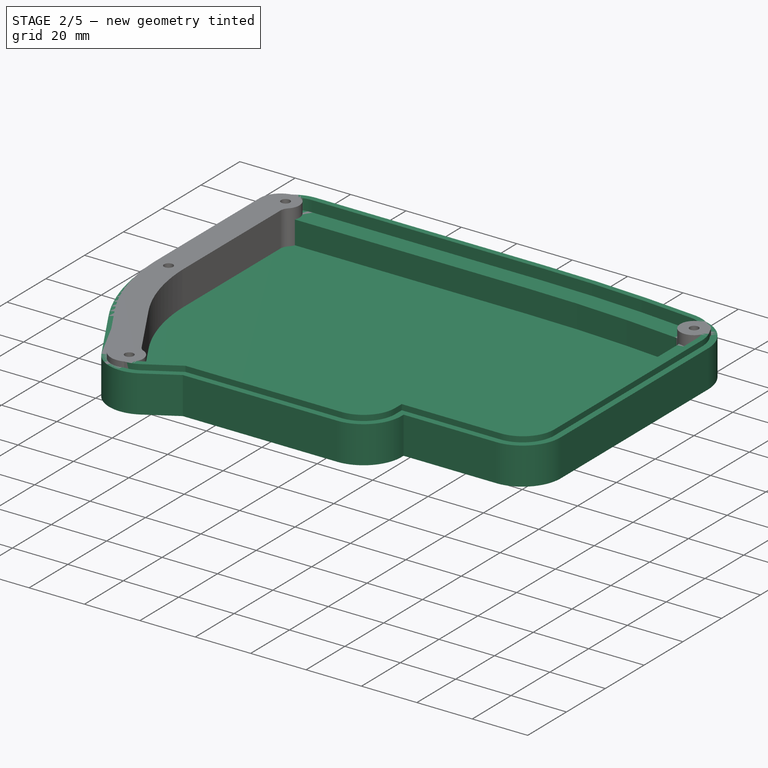
[diagram: stage 2 of 5 — iso view after this stage's code; geometry added in this stage tinted green]
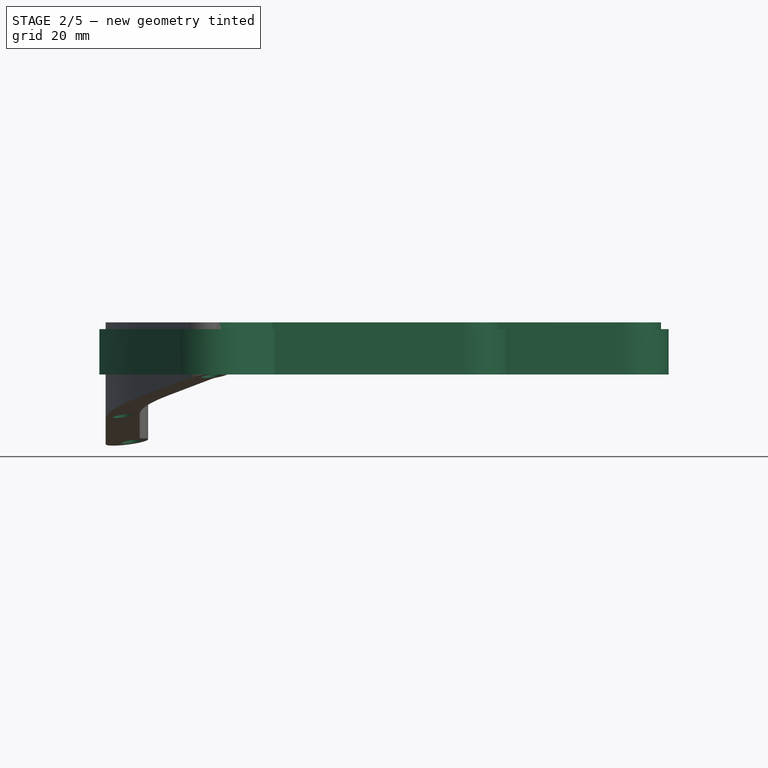
[diagram: stage 2 of 5 — front view after this stage's code; geometry added in this stage tinted green]
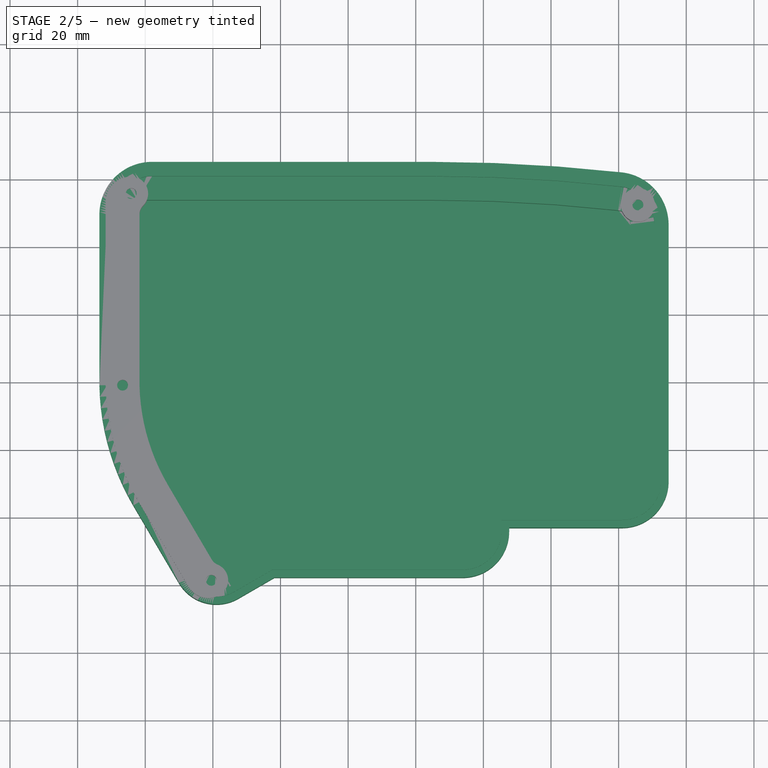
[diagram: stage 2 of 5 — top view after this stage's code; geometry added in this stage tinted green]
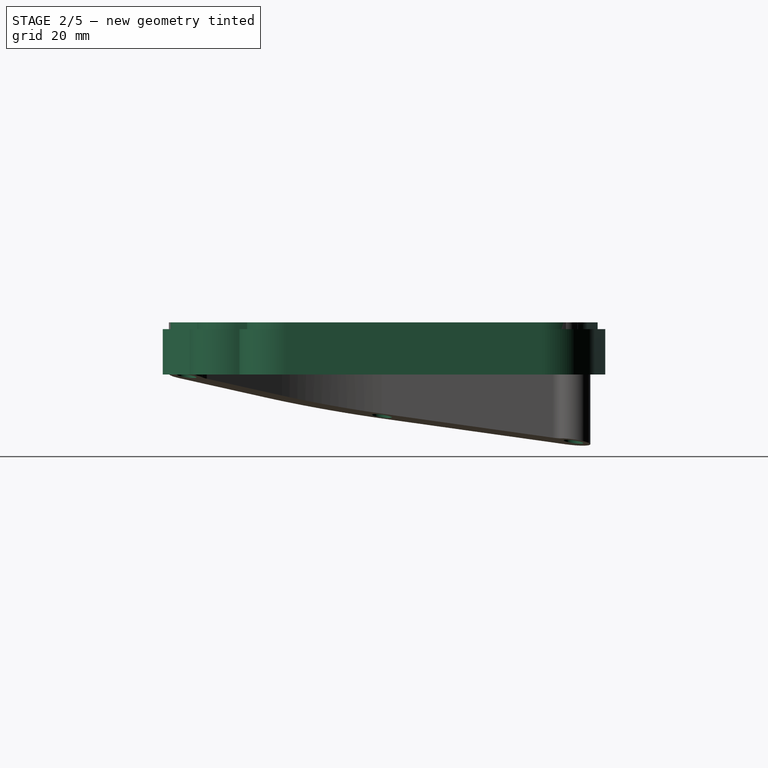
[diagram: stage 2 of 5 — right view after this stage's code; geometry added in this stage tinted green]
FEATURE [PartDesign::ShapeBinder] ShapeBinder  label="sb_top_plate"
  Placement = pos=(0,0,3) rot=(0,0,1;0rad)
  Support = -> [Pad005]
  TraceSupport = false
FEATURE [Sketcher::SketchObject] Sketch009
  ExternalGeometry = -> [ShapeBinder]
  FullyConstrained = true
  MapMode = 5
  Support = -> [XY_Plane003]
  expr: Constraints[23] = <<ss_case>>.wall_offset
  sketch-geometry (21):
    g0: LineSegment StartX=2.02396 StartY=64.7101 StartZ=0 EndX=84.3125 EndY=64.7101 EndZ=0
    g1: LineSegment StartX=-13.5556 StartY=49.1305 StartZ=0 EndX=-13.5556 EndY=-1.38632 EndZ=0
    g2: LineSegment StartX=-3.50636 StartY=-36.8919 StartZ=0 EndX=9.94659 EndY=-59.7841 EndZ=0
    g3: LineSegment StartX=27.5142 StartY=-64.4085 StartZ=0 EndX=38.2145 EndY=-58.2148 EndZ=0
    g4: LineSegment StartX=38.2145 StartY=-58.2148 StartZ=0 EndX=93.9034 EndY=-58.2148 EndZ=0
    g5: LineSegment StartX=107.631 StartY=-43.4928 StartZ=0 EndX=141.022 EndY=-43.4928 EndZ=0
    g6: LineSegment StartX=154.772 StartY=-29.7428 StartZ=0 EndX=154.772 EndY=46.1101 EndZ=0
    g7: ArcOfCircle CenterX=139.192 CenterY=46.1101 CenterZ=0 NormalX=0 NormalY=0 NormalZ=1 AngleXU=0 Radius=15.5796 StartAngle=1e-16 EndAngle=1.46083
    g8: ArcOfCircle CenterX=84.3125 CenterY=-450.952 CenterZ=0 NormalX=0 NormalY=0 NormalZ=1 AngleXU=0 Radius=515.662 StartAngle=1.46083 EndAngle=1.5708
    g9: ArcOfCircle CenterX=59.4385 CenterY=0.0985715 CenterZ=0 NormalX=0 NormalY=0 NormalZ=1 AngleXU=0 Radius=73.0092 StartAngle=3.16193 EndAngle=3.67289
    g10: ArcOfCircle CenterX=2.02396 CenterY=49.1305 CenterZ=0 NormalX=0 NormalY=0 NormalZ=1 AngleXU=0 Radius=15.5796 StartAngle=1.5708 EndAngle=3.14159
    g11: ArcOfCircle CenterX=93.9034 CenterY=-44.4872 CenterZ=0 NormalX=0 NormalY=0 NormalZ=1 AngleXU=0 Radius=13.7276 StartAngle=4.71239 EndAngle=6.28319
    g12: ArcOfCircle CenterX=21.0579 CenterY=-53.2544 CenterZ=0 NormalX=0 NormalY=0 NormalZ=1 AngleXU=0 Radius=12.8879 StartAngle=3.67289 EndAngle=5.2371
    g13: ArcOfCircle CenterX=141.022 CenterY=-29.7428 CenterZ=0 NormalX=0 NormalY=0 NormalZ=1 AngleXU=0 Radius=13.75 StartAngle=4.71239 EndAngle=6.28319
    g14: LineSegment StartX=-3.50636 StartY=-36.8919 StartZ=0 EndX=1.01993 EndY=-34.232 EndZ=0
    g15: LineSegment StartX=149.522 StartY=-29.7428 StartZ=0 EndX=154.772 EndY=-29.7428 EndZ=0
    g16: LineSegment StartX=84.3125 StartY=59.4601 StartZ=0 EndX=84.3125 EndY=64.7101 EndZ=0
    g17: LineSegment StartX=141.022 StartY=-43.4928 StartZ=0 EndX=141.022 EndY=-38.2428 EndZ=0
    g18: LineSegment StartX=93.9034 StartY=-52.9648 StartZ=0 EndX=93.9034 EndY=-58.2148 EndZ=0
    g19: LineSegment StartX=27.5142 StartY=-64.4085 StartZ=0 EndX=24.8842 EndY=-59.8648 EndZ=0
    g20: LineSegment StartX=107.631 StartY=-44.4872 StartZ=0 EndX=107.631 EndY=-43.4928 EndZ=0
  constraints (49):
    c: Horizontal(g0)
    c: Vertical(g1)
    c: Coincident(g3,g4)
    c: Horizontal(g4)
    c: Horizontal(g5)
    c: Vertical(g6)
    c: Tangent(g8,g0) = 1.5708
    c: Tangent(g8,g7) = -1.5708
    c: Coincident(g9,g2)
    c: Coincident(g9,g1)
    c: Tangent(g1,g10) = -1.5708
    c: Tangent(g0,g10) = 1.5708
    c: Tangent(g4,g11) = -1.5708
    c: Tangent(g3,g12) = -1.5708
    c: Tangent(g2,g12) = -1.5708
    c: Tangent(g5,g13) = -1.5708
    c: Tangent(g6,g13) = -1.5708
    c: Coincident(g14,g2)
    c: Coincident(g15,g6)
    c: Coincident(g16,g0)
    c: Coincident(g17,g5)
    c: Coincident(g18,g4)
    c: Equal(g18,g17)
    c: DistanceY(g16,g16) = 5.25
    c: Tangent(g7,g6) = -1.5708
    c: Coincident(g19,g3)
    c: Equal(g19,g16)
    c: Equal(g10,g7)
    c: Coincident(g7,g-5)
    c: Coincident(g16,g-4)
    c: Horizontal(g15)
    c: Coincident(g17,g-6)
    c: Vertical(g17)
    c: Coincident(g-4,g8)
    c: Coincident(g15,g-6)
    c: Coincident(g11,g-7)
    c: Coincident(g-7,g18)
    c: Coincident(g19,g-8)
    c: Perpendicular(g3,g19)
    c: Coincident(g12,g-8)
    c: Perpendicular(g2,g14)
    c: Coincident(g14,g-9)
    c: Coincident(g-9,g9)
    c: Parallel(g2,g-10)
    c: Horizontal(g1,g-9)
    c: Coincident(g11,g20)
    c: Coincident(g20,g5)
    c: Vertical(g20)
    c: Horizontal(g11,g-7)
FEATURE [PartDesign::Pad] Pad  label="p_base"
  Direction = (0,0,1)
  Length = 15.4
  Length2 = 10
  Profile = -> Sketch009
  ReferenceAxis = -> Sketch009 [N_Axis]
  Reversed = true
  Type = 0
  expr: Length = <<ss_case>>.base_thickness
FEATURE [Sketcher::SketchObject] Sketch010
  ExternalGeometry = -> [ShapeBinder]
  FullyConstrained = true
  MapMode = 5
  Support = -> [XY_Plane003]
  expr: Constraints[22] = <<ss_case>>.pcb_pocket_offset
  sketch-geometry (24):
    g0: LineSegment StartX=84.3125 StartY=60.4601 StartZ=0 EndX=2.0249 EndY=60.4601 EndZ=0
    g1: LineSegment StartX=-9.30471 StartY=49.1305 StartZ=0 EndX=-9.30471 EndY=-1.38632 EndZ=0
    g2: LineSegment StartX=150.522 StartY=46.1101 StartZ=0 EndX=150.522 EndY=-29.7428 EndZ=0
    g3: LineSegment StartX=141.022 StartY=-39.2428 StartZ=0 EndX=103.381 EndY=-39.2428 EndZ=0
    g4: LineSegment StartX=103.381 StartY=-39.2428 StartZ=0 EndX=103.381 EndY=-44.4872 EndZ=0
    g5: LineSegment StartX=93.9034 StartY=-53.9648 StartZ=0 EndX=37.0732 EndY=-53.9648 EndZ=0
    g6: LineSegment StartX=37.0732 StartY=-53.9648 StartZ=0 EndX=25.3851 EndY=-60.7302 EndZ=0
    g7: LineSegment StartX=13.6107 StartY=-57.6308 StartZ=0 EndX=0.157777 EndY=-34.7386 EndZ=0
    g8: ArcOfCircle CenterX=84.3125 CenterY=-450.952 CenterZ=0 NormalX=0 NormalY=0 NormalZ=1 AngleXU=0 Radius=511.412 StartAngle=1.46083 EndAngle=1.5708
    g9: ArcOfCircle CenterX=139.192 CenterY=46.1101 CenterZ=0 NormalX=0 NormalY=0 NormalZ=1 AngleXU=0 Radius=11.3296 StartAngle=0 EndAngle=1.46083
    g10: ArcOfCircle CenterX=2.0249 CenterY=49.1305 CenterZ=0 NormalX=0 NormalY=0 NormalZ=1 AngleXU=0 Radius=11.3296 StartAngle=1.5708 EndAngle=3.14159
    g11: ArcOfCircle CenterX=21.0579 CenterY=-53.2544 CenterZ=0 NormalX=0 NormalY=0 NormalZ=1 AngleXU=0 Radius=8.63788 StartAngle=3.67289 EndAngle=5.2371
    g12: ArcOfCircle CenterX=93.9034 CenterY=-44.4872 CenterZ=0 NormalX=0 NormalY=0 NormalZ=1 AngleXU=0 Radius=9.47761 StartAngle=4.71239 EndAngle=6.28319
    g13: ArcOfCircle CenterX=141.022 CenterY=-29.7428 CenterZ=0 NormalX=0 NormalY=0 NormalZ=1 AngleXU=0 Radius=9.5 StartAngle=4.71239 EndAngle=6.28319
    g14: LineSegment StartX=25.3851 StartY=-60.7302 StartZ=0 EndX=24.8842 EndY=-59.8648 EndZ=0
    g15: LineSegment StartX=13.6107 StartY=-57.6308 StartZ=0 EndX=14.4729 EndY=-57.1242 EndZ=0
    g16: LineSegment StartX=103.381 StartY=-44.4872 StartZ=0 EndX=102.381 EndY=-44.4872 EndZ=0
    g17: LineSegment StartX=141.022 StartY=-39.2428 StartZ=0 EndX=141.022 EndY=-38.2428 EndZ=0
    g18: LineSegment StartX=150.522 StartY=-29.7428 StartZ=0 EndX=149.522 EndY=-29.7428 EndZ=0
    g19: LineSegment StartX=84.3125 StartY=59.4601 StartZ=0 EndX=84.3125 EndY=60.4601 EndZ=0
    g20: LineSegment StartX=93.9034 StartY=-53.9648 StartZ=0 EndX=93.9034 EndY=-52.9648 EndZ=0
    g21: LineSegment StartX=0.157777 StartY=-34.7386 StartZ=0 EndX=1.01993 EndY=-34.232 EndZ=0
    g22: LineSegment StartX=-9.30471 StartY=-1.38632 StartZ=0 EndX=-8.30447 EndY=-1.38632 EndZ=0
    g23: ArcOfCircle CenterX=59.4385 CenterY=0.0985715 CenterZ=0 NormalX=0 NormalY=0 NormalZ=1 AngleXU=0 Radius=68.7592 StartAngle=3.16319 EndAngle=3.67289
  constraints (55):
    c: Horizontal(g0)
    c: Vertical(g2)
    c: Horizontal(g3)
    c: Coincident(g3,g4)
    c: Vertical(g4)
    c: Horizontal(g5)
    c: Coincident(g5,g6)
    c: Tangent(g2,g9) = 1.5708
    c: Tangent(g8,g9) = -1.5708
    c: Tangent(g8,g0) = -1.5708
    c: Tangent(g1,g10) = -1.5708
    c: Tangent(g0,g10) = -1.5708
    c: Equal(g10,g9)
    c: Tangent(g7,g11) = 1.5708
    c: Tangent(g6,g11) = 1.5708
    c: Tangent(g5,g12) = 1.5708
    c: Tangent(g4,g12) = 1.5708
    c: Tangent(g3,g13) = 1.5708
    c: Tangent(g2,g13) = 1.5708
    c: Coincident(g14,g6)
    c: Coincident(g15,g7)
    c: Horizontal(g16)
    c: Coincident(g17,g3) = 1
    c: Coincident(g18,g2)
    c: Coincident(g19,g0)
    c: Vertical(g1)
    c: DistanceY(g19,g19) = 1
    c: Equal(g16,g14)
    c: Coincident(g19,g-11)
    c: Coincident(g9,g-10)
    c: Coincident(g-9,g13)
    c: Coincident(g18,g-9)
    c: Coincident(g17,g-9)
    c: Coincident(g8,g-11)
    c: Coincident(g16,g-8)
    c: Coincident(g16,g4)
    c: Coincident(g20,g5)
    c: Coincident(g20,g-12)
    c: Vertical(g20)
    c: Equal(g20,g19)
    c: Parallel(g-13,g6)
    c: Perpendicular(g-15,g15)
    c: Coincident(g15,g-15)
    c: Coincident(g14,g-14)
    c: Perpendicular(g6,g14)
    c: Coincident(g21,g7)
    c: Coincident(g21,g-16)
    c: Parallel(g7,g-15)
    c: Perpendicular(g-15,g21)
    c: Coincident(g22,g1)
    c: Coincident(g22,g-17)
    c: Perpendicular(g1,g22)
    c: Coincident(g23,g-16)
    c: Coincident(g23,g7)
    c: Coincident(g23,g1)
FEATURE [PartDesign::Pocket] Pocket  label="c_top_plate_cutout"
  BaseFeature = -> Pad
  Direction = (0,0,-1)
  Length = 4
  Length2 = 5
  Profile = -> Sketch010
  ReferenceAxis = -> Sketch010 [N_Axis]
  Type = 0
  expr: Length = <<ss_case>>.top_plate_cutout_depth
FEATURE [Sketcher::SketchObject] Sketch011
  ExternalGeometry = -> [ShapeBinder]
  FullyConstrained = true
  MapMode = 5
  Support = -> [XY_Plane003]
  sketch-geometry (19):
    g0: LineSegment StartX=-2.30447 StartY=53.4601 StartZ=0 EndX=84.3125 EndY=53.4601 EndZ=0
    g1: LineSegment StartX=6.19146 StartY=-31.1928 StartZ=0 EndX=19.6444 EndY=-54.0851 EndZ=0
    g2: LineSegment StartX=21.8792 StartY=-54.6733 StartZ=0 EndX=35.1965 EndY=-46.9648 EndZ=0
    g3: LineSegment StartX=35.1965 StartY=-46.9648 StartZ=0 EndX=93.9034 EndY=-46.9648 EndZ=0
    g4: LineSegment StartX=96.381 StartY=-44.4872 StartZ=0 EndX=96.381 EndY=-34.7428 EndZ=0
    g5: LineSegment StartX=98.881 StartY=-32.2428 StartZ=0 EndX=141.022 EndY=-32.2428 EndZ=0
    g6: LineSegment StartX=143.522 StartY=-29.7428 StartZ=0 EndX=143.522 EndY=46.1101 EndZ=0
    g7: ArcOfCircle CenterX=59.4385 CenterY=0.0985715 CenterZ=0 NormalX=0 NormalY=0 NormalZ=1 AngleXU=0 Radius=61.7608 StartAngle=3.16564 EndAngle=3.67289
    g8: ArcOfCircle CenterX=84.3125 CenterY=-450.952 CenterZ=0 NormalX=0 NormalY=0 NormalZ=1 AngleXU=0 Radius=504.412 StartAngle=1.46083 EndAngle=1.5708
    g9: ArcOfCircle CenterX=139.192 CenterY=46.1101 CenterZ=0 NormalX=0 NormalY=0 NormalZ=1 AngleXU=0 Radius=4.32961 StartAngle=4e-16 EndAngle=1.46083
    g10: LineSegment StartX=84.3125 StartY=53.4601 StartZ=0 EndX=84.3125 EndY=59.4601 EndZ=0
    g11: ArcOfCircle CenterX=141.022 CenterY=-29.7428 CenterZ=0 NormalX=0 NormalY=0 NormalZ=1 AngleXU=0 Radius=2.5 StartAngle=4.71239 EndAngle=6.28319
    g12: ArcOfCircle CenterX=93.9034 CenterY=-44.4872 CenterZ=0 NormalX=0 NormalY=0 NormalZ=1 AngleXU=0 Radius=2.47761 StartAngle=4.71239 EndAngle=6.28319
    g13: ArcOfCircle CenterX=21.0579 CenterY=-53.2544 CenterZ=0 NormalX=0 NormalY=0 NormalZ=1 AngleXU=0 Radius=1.63946 StartAngle=3.67289 EndAngle=5.2371
    g14: LineSegment StartX=96.381 StartY=-44.4872 StartZ=0 EndX=102.381 EndY=-44.4872 EndZ=0
    g15: ArcOfCircle CenterX=98.881 CenterY=-34.7428 CenterZ=0 NormalX=0 NormalY=0 NormalZ=1 AngleXU=0 Radius=2.5 StartAngle=1.5708 EndAngle=3.14159
    g16: LineSegment StartX=-2.30447 StartY=-1.38632 StartZ=0 EndX=-2.30447 EndY=53.4601 EndZ=0
    g17: LineSegment StartX=-8.30447 StartY=-1.38632 StartZ=0 EndX=-2.30447 EndY=-1.38632 EndZ=0
    g18: LineSegment StartX=1.01993 StartY=-34.232 StartZ=0 EndX=6.19146 EndY=-31.1928 EndZ=0
  constraints (42):
    c: Horizontal(g0)
    c: Coincident(g2,g3)
    c: Horizontal(g3)
    c: Horizontal(g5)
    c: Vertical(g6)
    c: Tangent(g9,g8) = -1.5708
    c: Tangent(g8,g0) = 1.5708
    c: Tangent(g9,g6) = -1.5708
    c: Coincident(g10,g0)
    c: DistanceY(g10,g10) = 6
    c: Tangent(g5,g11) = -1.5708
    c: Tangent(g6,g11) = -1.5708
    c: Tangent(g4,g12) = -1.5708
    c: Tangent(g3,g12) = -1.5708
    c: Vertical(g4)
    c: Tangent(g2,g13) = -1.5708
    c: Tangent(g1,g13) = -1.5708
    c: Coincident(g14,g4)
    c: Equal(g14,g10)
    c: Tangent(g4,g15) = 1.5708
    c: Tangent(g5,g15) = 1.5708
    c: Equal(g15,g11)
    c: Tangent(g7,g1) = -1.5708
    c: Coincident(g16,g7)
    c: Coincident(g16,g0)
    c: Vertical(g16)
    c: Coincident(g17,g7)
    c: Horizontal(g17)
    c: Equal(g10,g17)
    c: Coincident(g8,g-10)
    c: Coincident(g14,g-16)
    c: Coincident(g10,g-10)
    c: Coincident(g11,g-13)
    c: Coincident(g9,g-11)
    c: Coincident(g-16,g12)
    c: Coincident(g-19,g13)
    c: Parallel(g2,g-18)
    c: Parallel(g1,g-3)
    c: Coincident(g17,g-6)
    c: Coincident(g18,g-4)
    c: Coincident(g18,g1)
    c: Coincident(g7,g-4)
FEATURE [Sketcher::SketchObject] Sketch012
  ExternalGeometry = -> [ShapeBinder,Sketch009]
  FullyConstrained = true
  MapMode = 5
  Support = -> [XY_Plane003]
  expr: Constraints[16] = <<ss_case>>.wall_offset - <<ss_case>>.flange_thickness - <<ss_case>>.flange_offset
  sketch-geometry (26):
    g0: LineSegment StartX=-11.3045 StartY=49.1305 StartZ=0 EndX=-11.3045 EndY=-1.38632 EndZ=0
    g1: LineSegment StartX=2.02513 StartY=62.4601 StartZ=0 EndX=84.3125 EndY=62.4601 EndZ=0
    g2: LineSegment StartX=93.9034 StartY=-55.9648 StartZ=0 EndX=37.6103 EndY=-55.9648 EndZ=0
    g3: LineSegment StartX=37.6103 StartY=-55.9648 StartZ=0 EndX=26.3871 EndY=-62.4612 EndZ=0
    g4: LineSegment StartX=11.8874 StartY=-58.6444 StartZ=0 EndX=-1.56593 EndY=-35.7516 EndZ=0
    g5: ArcOfCircle CenterX=141.022 CenterY=-29.7428 CenterZ=0 NormalX=0 NormalY=0 NormalZ=1 AngleXU=0 Radius=11.5 StartAngle=4.71239 EndAngle=6.28319
    g6: ArcOfCircle CenterX=21.0582 CenterY=-53.255 CenterZ=0 NormalX=0 NormalY=0 NormalZ=1 AngleXU=0 Radius=10.6372 StartAngle=3.67289 EndAngle=5.2371
    g7: ArcOfCircle CenterX=2.02513 CenterY=49.1305 CenterZ=0 NormalX=0 NormalY=0 NormalZ=1 AngleXU=0 Radius=13.3296 StartAngle=1.5708 EndAngle=3.14159
    g8: ArcOfCircle CenterX=139.192 CenterY=46.1101 CenterZ=0 NormalX=0 NormalY=0 NormalZ=1 AngleXU=0 Radius=13.3296 StartAngle=0 EndAngle=1.46083
    g9: ArcOfCircle CenterX=84.3125 CenterY=-450.952 CenterZ=0 NormalX=0 NormalY=0 NormalZ=1 AngleXU=0 Radius=513.412 StartAngle=1.46083 EndAngle=1.5708
    g10: ArcOfCircle CenterX=59.4385 CenterY=0.0985715 CenterZ=0 NormalX=0 NormalY=0 NormalZ=1 AngleXU=0 Radius=70.7586 StartAngle=3.16258 EndAngle=3.67289
    g11: LineSegment StartX=84.3125 StartY=59.4601 StartZ=0 EndX=84.3125 EndY=62.4601 EndZ=0
    g12: LineSegment StartX=149.522 StartY=-29.7428 StartZ=0 EndX=152.522 EndY=-29.7428 EndZ=0
    g13: LineSegment StartX=-8.30447 StartY=-1.38632 StartZ=0 EndX=-11.3045 EndY=-1.38632 EndZ=0
    g14: LineSegment StartX=141.022 StartY=-41.2428 StartZ=0 EndX=105.381 EndY=-41.2428 EndZ=0
    g15: LineSegment StartX=93.9034 StartY=-55.9648 StartZ=0 EndX=93.9034 EndY=-52.9648 EndZ=0
    g16: LineSegment StartX=105.381 StartY=-41.2428 StartZ=0 EndX=105.381 EndY=-44.4872 EndZ=0
    g17: ArcOfCircle CenterX=93.9034 CenterY=-44.4872 CenterZ=0 NormalX=0 NormalY=0 NormalZ=1 AngleXU=0 Radius=11.4776 StartAngle=4.71239 EndAngle=6.28319
    g18: LineSegment StartX=152.522 StartY=-29.7428 StartZ=0 EndX=152.522 EndY=46.1101 EndZ=0
    g19: LineSegment StartX=-1.56593 StartY=-35.7516 StartZ=0 EndX=1.01993 EndY=-34.232 EndZ=0
    g20: LineSegment StartX=105.381 StartY=-44.4872 StartZ=0 EndX=102.381 EndY=-44.4872 EndZ=0
    g21: LineSegment StartX=26.3871 StartY=-62.4612 StartZ=0 EndX=24.8842 EndY=-59.8648 EndZ=0
    g22: LineSegment StartX=-13.5556 StartY=64.7101 StartZ=0 EndX=154.772 EndY=64.7101 EndZ=0
    g23: LineSegment StartX=154.772 StartY=64.7101 StartZ=0 EndX=154.772 EndY=-66.1423 EndZ=0
    g24: LineSegment StartX=154.772 StartY=-66.1423 StartZ=0 EndX=-13.5556 EndY=-66.1423 EndZ=0
    g25: LineSegment StartX=-13.5556 StartY=-66.1423 StartZ=0 EndX=-13.5556 EndY=64.7101 EndZ=0
  constraints (64):
    c: Vertical(g0)
    c: Horizontal(g2)
    c: Coincident(g2,g3)
    c: Horizontal(g1)
    c: Coincident(g12,g5) = 1.5708
    c: Tangent(g4,g6) = 1.5708
    c: Tangent(g3,g6) = 1.5708
    c: Tangent(g0,g7) = -1.5708
    c: Tangent(g1,g7) = 1.5708
    c: Tangent(g9,g8) = -1.5708
    c: Tangent(g9,g1) = 1.5708
    c: Equal(g8,g7)
    c: Coincident(g10,g0)
    c: Coincident(g10,g4)
    c: Coincident(g11,g1)
    c: Coincident(g13,g0)
    c: DistanceY(g11,g11) = 3
    c: Horizontal(g14)
    c: Coincident(g15,g2)
    c: Equal(g15,g12)
    c: Coincident(g16,g14)
    c: Coincident(g17,g2)
    c: Tangent(g17,g16) = 1.5708
    c: Vertical(g15)
    c: Coincident(g11,g-15)
    c: Coincident(g12,g-12)
    c: Coincident(g15,g-8)
    c: Coincident(g13,g-3)
    c: Perpendicular(g0,g13)
    c: Equal(g13,g11)
    c: Parallel(g4,g-4)
    c: Parallel(g3,g-6)
    c: Equal(g15,g11)
    c: Coincident(g9,g-25)
    c: Coincident(g8,g-24)
    c: Tangent(g14,g5) = 1.5708
    c: Vertical(g5,g-11)
    c: Horizontal(g16,g-9)
    c: Vertical(g18)
    c: Tangent(g18,g8) = -1.5708
    c: Tangent(g18,g5) = -1.5708
    c: Coincident(g19,g4)
    c: Coincident(g19,g-4)
    c: Perpendicular(g4,g19)
    c: Coincident(g20,g16)
    c: Coincident(g20,g-9)
    c: Coincident(g10,g-3)
    c: Coincident(g21,g3)
    c: Coincident(g21,g-6)
    c: Perpendicular(g-6,g21)
    c: Equal(g21,g15)
    c: Coincident(g17,g-8)
    c: Coincident(g22,g23)
    c: Coincident(g23,g24)
    c: Coincident(g24,g25)
    c: Coincident(g25,g22)
    c: Horizontal(g22)
    c: Horizontal(g24)
    c: Vertical(g23)
    c: Vertical(g25)
    c: Tangent(g24,g-27)
    c: PointOnObject(g-19,g25)
    c: PointOnObject(g-26,g22)
    c: PointOnObject(g-24,g23)
FEATURE [PartDesign::Pocket] Pocket002  label="c_pcb"
  BaseFeature = -> Pocket
  Direction = (0,0,-1)
  Length = 2
  Length2 = 5
  Profile = -> Sketch012
  ReferenceAxis = -> Sketch012 [N_Axis]
  Type = 0
  expr: Length = <<ss_case>>.flange_thickness
FEATURE [PartDesign::Pocket] Pocket001  label="c_flange"
  BaseFeature = -> Pocket002
  Direction = (0,0,-1)
  Length = 12.4
  Length2 = 5
  Profile = -> Sketch011
  ReferenceAxis = -> Sketch011 [N_Axis]
  Type = 0
  expr: Length = <<ss_case>>.base_thickness - <<ss_case>>.wall_thickness
FEATURE [PartDesign::Body] Body  label="b_connector"
  Group = -> [Sketch015,Pad006,Sketch016,Pad007]
  Origin = -> Origin012
  Tip = -> Pad007
FEATURE [Sketcher::SketchObject] Sketch
  ExternalGeometry = -> [ShapeBinder]
  FullyConstrained = true
  MapMode = 5
  Placement = pos=(0,0,0) rot=(0.57735,0.57735,0.57735;2.0944rad)
  Support = -> [YZ_Plane003]
  expr: Constraints[13] = <<ss_case>>.base_thickness - <<ss_case>>.wall_thickness - <<ss_case>>.connector_z_offset - <<ss_usbc>>.pcb_thickness + <<ss_usbc>>.connector_cutout_offset / 2
  expr: Constraints[6] = <<ss_usbc>>.connector_cutout_width - <<ss_usbc>>.connector_cutout_height
  expr: Constraints[7] = <<ss_usbc>>.connector_cutout_height
  sketch-geometry (7):
    g0: ArcOfCircle CenterX=29.0412 CenterY=-8.52 CenterZ=0 NormalX=0 NormalY=0 NormalZ=1 AngleXU=0 Radius=1.53 StartAngle=1.5708 EndAngle=4.71239
    g1: ArcOfCircle CenterX=34.8212 CenterY=-8.52 CenterZ=0 NormalX=0 NormalY=0 NormalZ=1 AngleXU=0 Radius=1.53 StartAngle=4.71239 EndAngle=7.85398
    g2: LineSegment StartX=29.0412 StartY=-10.05 StartZ=0 EndX=34.8212 EndY=-10.05 EndZ=0
    g3: LineSegment StartX=34.8212 StartY=-6.99 StartZ=0 EndX=29.0412 EndY=-6.99 EndZ=0
    g4: GeomPoint X=31.9312 Y=-8.52 Z=0
    g5: GeomPoint X=31.9312 Y=3 Z=0
    g6: LineSegment StartX=31.9312 StartY=3 StartZ=0 EndX=31.9312 EndY=-10.05 EndZ=0
  constraints (14):
    c: Tangent(g0,g2) = -1.5708
    c: Tangent(g2,g1) = -1.5708
    c: Tangent(g1,g3) = -1.5708
    c: Tangent(g3,g0) = -1.5708
    c: Equal(g0,g1)
    c: Horizontal(g2)
    c: DistanceX(g0,g1) = 5.78
    c: Diameter(g1) = 3.06
    c: Symmetric(g0,g1,g4)
    c: Symmetric(g-3,g-3,g5)
    c: Coincident(g6,g5)
    c: Vertical(g6)
    c: Symmetric(g2,g2,g6)
    c: DistanceY(g6,g-1) = 10.05
FEATURE [PartDesign::Pocket] Pocket003  label="c_usb_c"
  BaseFeature = -> Pocket001
  Direction = (-1,2e-16,-3e-16)
  Length = 5
  Length2 = 5
  Profile = -> Sketch
  ReferenceAxis = -> Sketch [N_Axis]
  Type = 1
FEATURE [Sketcher::SketchObject] Sketch035
  FullyConstrained = true
  MapMode = 5
  Placement = pos=(150.744,-39.4656,2e-16) rot=(-0.137845,0,0.990454;1.59017rad)
  Support = -> [DatumPlane003]
FEATURE [PartDesign::Plane] DatumPlane004
  AttachmentOffset = pos=(0,0,6.1) rot=(0,0,1;0rad)
  Length = 60
  MapMode = 5
  Placement = pos=(0,0,-6.1) rot=(0,1,0;3.14159rad)
  ResizeMode = 0
  Support = -> [XY_Plane023]
  Width = 60
  expr: .AttachmentOffset.Base.z = <<ss_tenting>>.head_offset
FEATURE [Sketcher::SketchObject] Sketch036
  ExternalGeometry = -> [Sketch032,ShapeBinder005]
  FullyConstrained = true
  MapMode = 5
  Placement = pos=(0,0,-6.1) rot=(0,1,0;3.14159rad)
  Support = -> [DatumPlane004]
  expr: Constraints[5] = <<ss_case>>.screw_head_od + 0.4
  sketch-geometry (3):
    g0: Circle CenterX=-19.5209 CenterY=-59.0934 CenterZ=0 NormalX=0 NormalY=0 NormalZ=1 AngleXU=0 Radius=2.95
    g1: Circle CenterX=6.70447 CenterY=-1.38632 CenterZ=0 NormalX=0 NormalY=0 NormalZ=1 AngleXU=0 Radius=2.95
    g2: Circle CenterX=4.14763 CenterY=55.3033 CenterZ=0 NormalX=0 NormalY=0 NormalZ=1 AngleXU=0 Radius=2.95
  constraints (6):
    c: Coincident(g0,g-5)
    c: Coincident(g1,g-4)
    c: Coincident(g2,g-3)
    c: Equal(g0,g1)
    c: Equal(g1,g2)
    c: Diameter(g2) = 5.9
FEATURE [PartDesign::Pocket] Pocket010
  BaseFeature = -> Pocket009
  Direction = (0,0,1)
  Length = 5
  Length2 = 5
  Profile = -> Sketch036
  ReferenceAxis = -> Sketch036 [N_Axis]
  Reversed = true
  Type = 1
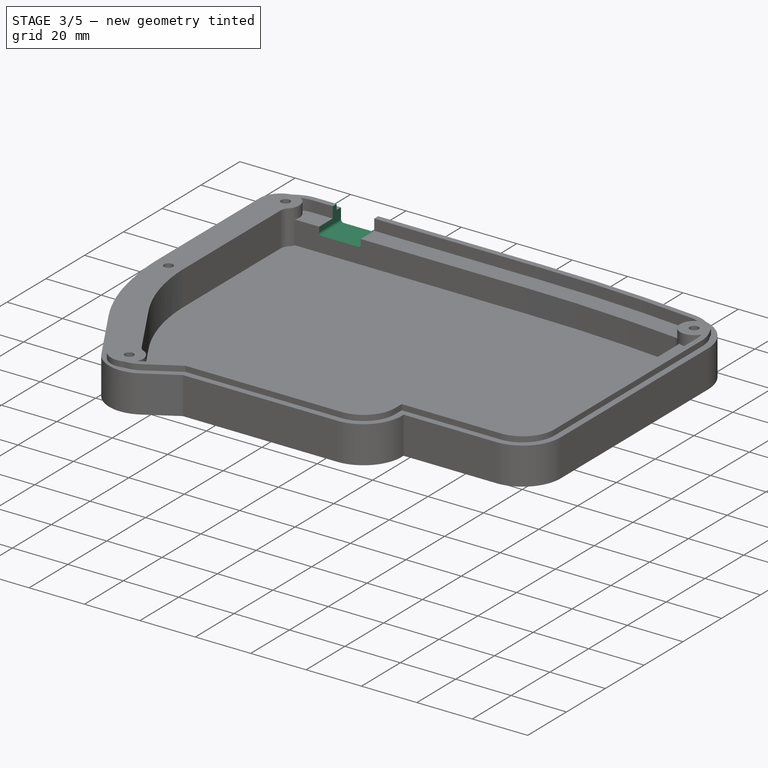
[diagram: stage 3 of 5 — iso view after this stage's code; geometry added in this stage tinted green]
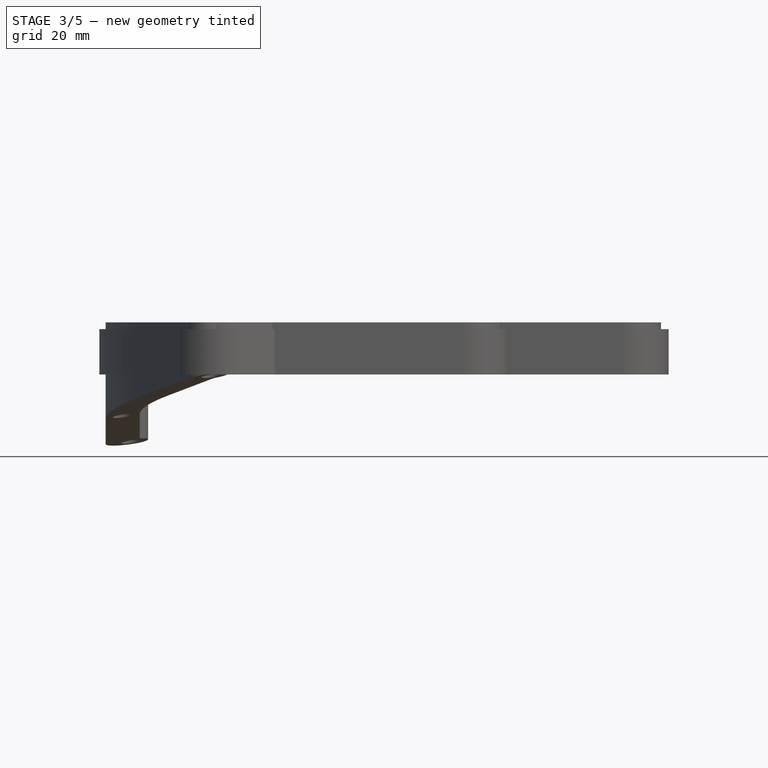
[diagram: stage 3 of 5 — front view after this stage's code; geometry added in this stage tinted green]
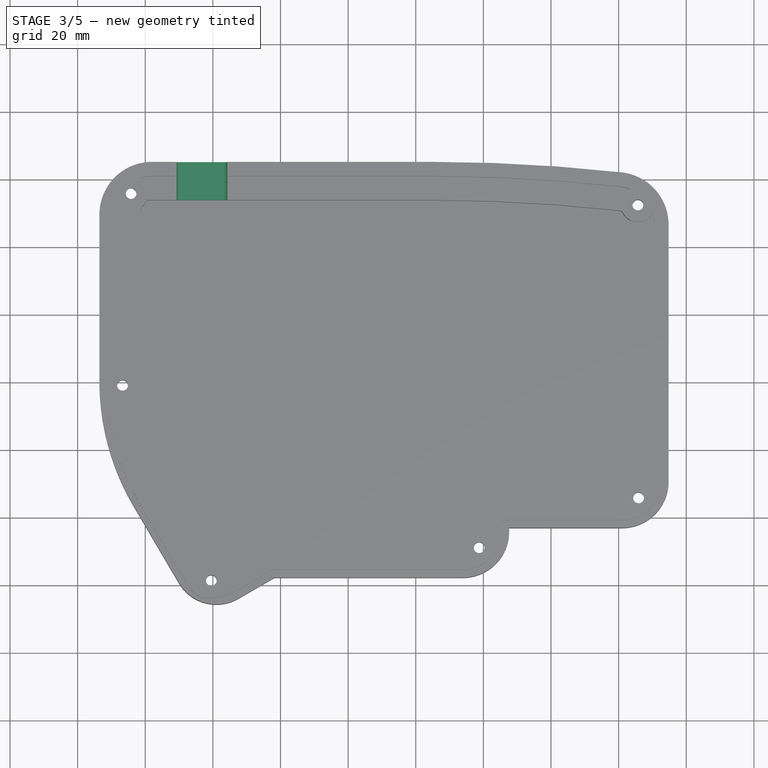
[diagram: stage 3 of 5 — top view after this stage's code; geometry added in this stage tinted green]
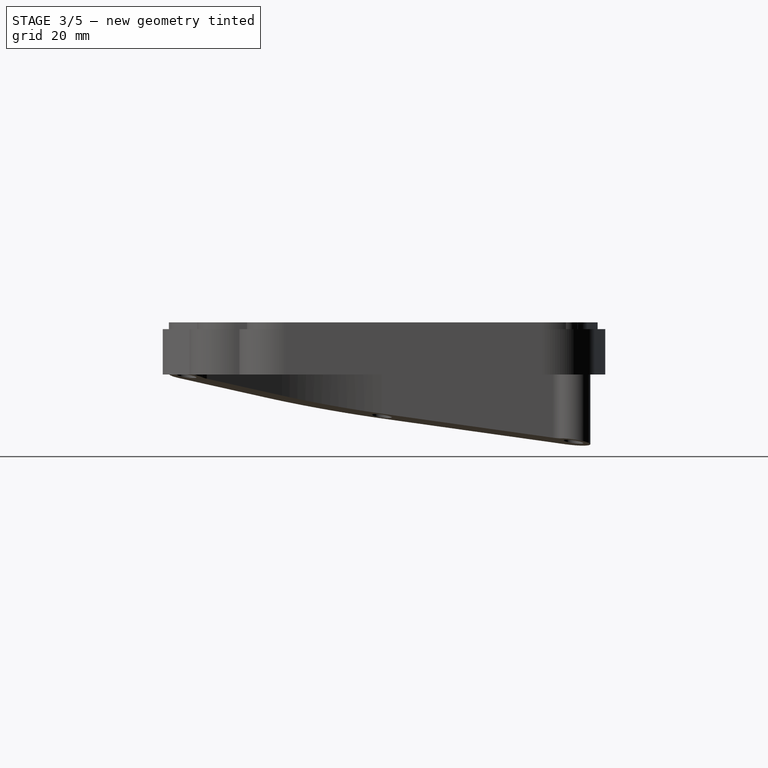
[diagram: stage 3 of 5 — right view after this stage's code; geometry added in this stage tinted green]
FEATURE [Sketcher::SketchObject] Sketch017
  ExternalGeometry = -> [Pocket003,ShapeBinder]
  FullyConstrained = true
  MapMode = 5
  Support = -> [XY_Plane003]
  expr: Constraints[13] = <<ss_case>>.origin_to_inside_flange
  expr: Constraints[8] = <<ss_top_plate>>.gasket_width + 1
  expr: Constraints[9] = <<ss_usbc>>.pcb_width + 1
  sketch-geometry (5):
    g0: LineSegment StartX=-9.3 StartY=43.4312 StartZ=0 EndX=-1.3 EndY=43.4312 EndZ=0
    g1: LineSegment StartX=-1.3 StartY=43.4312 StartZ=0 EndX=-1.3 EndY=20.4312 EndZ=0
    g2: LineSegment StartX=-1.3 StartY=20.4312 StartZ=0 EndX=-9.3 EndY=20.4312 EndZ=0
    g3: LineSegment StartX=-9.3 StartY=20.4312 StartZ=0 EndX=-9.3 EndY=43.4312 EndZ=0
    g4: LineSegment StartX=-1.3 StartY=31.9312 StartZ=0 EndX=27.7393 EndY=31.9312 EndZ=0
  constraints (14):
    c: Coincident(g0,g1)
    c: Coincident(g1,g2)
    c: Coincident(g2,g3)
    c: Coincident(g3,g0)
    c: Horizontal(g0)
    c: Horizontal(g2)
    c: Vertical(g1)
    c: Vertical(g3)
    c: DistanceX(g0,g0) = 8
    c: DistanceY(g1,g1) = 23
    c: Horizontal(g4)
    c: Symmetric(g1,g1,g4)
    c: Symmetric(g-4,g-4,g4)
    c: DistanceX(g2,g-1) = 9.3
FEATURE [PartDesign::Pocket] Pocket004  label="c_usb_c_breakout"
  BaseFeature = -> Pocket003
  Direction = (0,0,-1)
  Length = 11.4
  Length2 = 5
  Profile = -> Sketch017
  ReferenceAxis = -> Sketch017 [N_Axis]
  Type = 0
  expr: Length = <<ss_case>>.base_thickness - <<ss_case>>.wall_thickness - <<ss_case>>.connector_z_offset
FEATURE [Sketcher::SketchObject] Sketch018
  ExternalGeometry = -> [ShapeBinder]
  FullyConstrained = true
  MapMode = 5
  Placement = pos=(-13.56,3e-15,-3e-15) rot=(-0.57735,0.57735,0.57735;4.18879rad)
  Support = -> [DatumPlane]
  expr: .Constraints.usbc_inset_diam = 5 + <<ss_usbc>>.connector_cutout_height
  expr: Constraints[8] = 5 + <<ss_usbc>>.connector_cutout_width - (<<ss_usbc>>.pcb_thickness * 2 + <<ss_usbc>>.connector_cutout_height)
  expr: Constraints[9] = <<ss_case>>.base_thickness - <<ss_case>>.wall_thickness - <<ss_case>>.connector_z_offset - <<ss_usbc>>.pcb_thickness - <<ss_usbc>>.connector_cutout_height / 2
  sketch-geometry (6):
    g0: ArcOfCircle CenterX=-28.1412 CenterY=-8.27 CenterZ=0 NormalX=0 NormalY=0 NormalZ=1 AngleXU=0 Radius=4.03 StartAngle=4.71239 EndAngle=7.85398
    g1: ArcOfCircle CenterX=-35.7212 CenterY=-8.27 CenterZ=0 NormalX=0 NormalY=0 NormalZ=1 AngleXU=0 Radius=4.03 StartAngle=1.5708 EndAngle=4.71239
    g2: LineSegment StartX=-28.1412 StartY=-4.24 StartZ=0 EndX=-35.7212 EndY=-4.24 EndZ=0
    g3: LineSegment StartX=-35.7212 StartY=-12.3 StartZ=0 EndX=-28.1412 EndY=-12.3 EndZ=0
    g4: GeomPoint X=-31.9312 Y=-8.27 Z=0
    g5: LineSegment StartX=-31.9312 StartY=-8.27 StartZ=0 EndX=-31.9312 EndY=3 EndZ=0
  constraints (13):
    c: Tangent(g0,g2) = -1.5708
    c: Tangent(g2,g1) = -1.5708
    c: Tangent(g1,g3) = -1.5708
    c: Tangent(g3,g0) = -1.5708
    c: Equal(g0,g1)
    c: Horizontal(g2)
    c: Symmetric(g0,g1,g4)
    c: Diameter(g0) = 8.06  'usbc_inset_diam'
    c: DistanceX(g2,g2) = 7.58
    c: DistanceY(g0,g-1) = 8.27
    c: Coincident(g5,g4)
    c: Vertical(g5)
    c: Symmetric(g-3,g-3,g5)
FEATURE [Sketcher::SketchObject] Sketch019
  ExternalGeometry = -> [Pocket004,ShapeBinder]
  FullyConstrained = true
  MapMode = 5
  Support = -> [XY_Plane003]
  expr: Constraints[1] = <<ss_usbc>>.hole_spacing
  expr: Constraints[2] = <<ss_case>>.usb_c_screw_hole_od
  expr: Constraints[8] = <<ss_case>>.origin_to_inside_flange - <<ss_usbc>>.hole_inset
  sketch-geometry (4):
    g0: Circle CenterX=-6.7 CenterY=40.2312 CenterZ=0 NormalX=0 NormalY=0 NormalZ=1 AngleXU=0 Radius=1
    g1: Circle CenterX=-6.7 CenterY=23.6312 CenterZ=0 NormalX=0 NormalY=0 NormalZ=1 AngleXU=0 Radius=1
    g2: GeomPoint X=-6.7 Y=31.9312 Z=0
    g3: LineSegment StartX=-6.7 StartY=31.9312 StartZ=0 EndX=27.7393 EndY=31.9312 EndZ=0
  constraints (9):
    c: Equal(g1,g0)
    c: DistanceY(g1,g0) = 16.6
    c: Diameter(g0) = 2
    c: Vertical(g1,g0)
    c: Symmetric(g1,g0,g2)
    c: Coincident(g3,g2)
    c: Horizontal(g3)
    c: Symmetric(g-4,g-4,g3)
    c: DistanceX(g1,g-1) = 6.7
FEATURE [PartDesign::Pocket] Pocket006
  BaseFeature = -> Pocket004
  Direction = (0,0,-1)
  Length = 14.4
  Length2 = 5
  Profile = -> Sketch019
  ReferenceAxis = -> Sketch019 [N_Axis]
  Type = 0
  expr: Length = <<ss_case>>.base_thickness - 1
FEATURE [PartDesign::Pocket] Pocket005
  BaseFeature = -> Pocket006
  Direction = (1,-4e-16,2e-16)
  Length = 3.25
  Length2 = 5
  Profile = -> Sketch018
  ReferenceAxis = -> Sketch018 [N_Axis]
  Type = 0
  expr: Length = <<ss_case>>.wall_thickness + <<ss_case>>.flange_thickness - <<ss_case>>.flange_offset - <<ss_usbc>>.connector_offset
FEATURE [PartDesign::Plane] DatumPlane002
  AttachmentOffset = pos=(0,0,15.4) rot=(0,0,1;0rad)
  Length = 203.507
  MapMode = 5
  Placement = pos=(0,0,-15.4) rot=(0,1,0;3.14159rad)
  ResizeMode = 0
  Support = -> [XY_Plane003]
  Width = 149.338
  expr: .AttachmentOffset.Base.z = <<ss_case>>.base_thickness
FEATURE [Sketcher::SketchObject] Sketch020
  ExternalGeometry = -> [ShapeBinder]
  FullyConstrained = true
  MapMode = 5
  Placement = pos=(0,0,-15.4) rot=(0,1,0;3.14159rad)
  Support = -> [DatumPlane002]
  expr: Constraints[10] = 3
  sketch-geometry (12):
    g0: Circle CenterX=-145.695 CenterY=51.9344 CenterZ=0 NormalX=0 NormalY=0 NormalZ=1 AngleXU=0 Radius=1.5
    g1: Circle CenterX=-145.901 CenterY=-34.6219 CenterZ=0 NormalX=0 NormalY=0 NormalZ=1 AngleXU=0 Radius=1.5
    g2: Circle CenterX=-98.7666 CenterY=-49.3504 CenterZ=0 NormalX=0 NormalY=0 NormalZ=1 AngleXU=0 Radius=1.5
    g3: Circle CenterX=-19.5209 CenterY=-59.0934 CenterZ=0 NormalX=0 NormalY=0 NormalZ=1 AngleXU=0 Radius=1.5
    g4: Circle CenterX=6.70447 CenterY=-1.38632 CenterZ=0 NormalX=0 NormalY=0 NormalZ=1 AngleXU=0 Radius=1.5
    g5: Circle CenterX=4.21834 CenterY=55.374 CenterZ=0 NormalX=0 NormalY=0 NormalZ=1 AngleXU=0 Radius=1.5
    g6: LineSegment StartX=8.30447 StartY=-1.38632 StartZ=0 EndX=8.30447 EndY=49.1305 EndZ=0
    g7: LineSegment StartX=-2.02513 StartY=59.4601 StartZ=0 EndX=-27.7344 EndY=59.4601 EndZ=0
    g8: ArcOfCircle CenterX=-2.02513 CenterY=49.1305 CenterZ=0 NormalX=0 NormalY=0 NormalZ=1 AngleXU=0 Radius=10.3296 StartAngle=0 EndAngle=1.5708
    g9: LineSegment StartX=-2.02513 StartY=49.1305 StartZ=0 EndX=5.279 EndY=56.4346 EndZ=0
    g10: LineSegment StartX=8.30447 StartY=49.1305 StartZ=0 EndX=5.279 EndY=56.4346 EndZ=0
    g11: LineSegment StartX=5.279 StartY=56.4346 StartZ=0 EndX=-2.02513 EndY=59.4601 EndZ=0
  constraints (27):
    c: Coincident(g0,g-7)
    c: Coincident(g1,g-6)
    c: Coincident(g2,g-5)
    c: Coincident(g3,g-3)
    c: Coincident(g4,g-4)
    c: Equal(g0,g1)
    c: Equal(g1,g2)
    c: Equal(g2,g3)
    c: Equal(g3,g4)
    c: Equal(g4,g5)
    c: Diameter(g0) = 3
    c: Coincident(g6,g-9)
    c: Coincident(g7,g-8)
    c: Horizontal(g7)
    c: Tangent(g6,g8) = -1.5708
    c: Tangent(g7,g8) = -1.5708
    c: Vertical(g6)
    c: Equal(g-10,g8)
    c: Tangent(g5,g8)
    c: Coincident(g9,g8)
    c: PointOnObject(g9,g8)
    c: Coincident(g10,g6)
    c: Coincident(g10,g9)
    c: Coincident(g11,g9)
    c: Coincident(g11,g7)
    c: Equal(g10,g11)
    c: PointOnObject(g5,g9)
FEATURE [Sketcher::SketchObject] Sketch021
  ExternalGeometry = -> [Sketch020,ShapeBinder]
  FullyConstrained = true
  MapMode = 5
  Placement = pos=(0,0,-15.4) rot=(0,1,0;3.14159rad)
  Support = -> [DatumPlane002]
  expr: Constraints[10] = 6.8
  sketch-geometry (6):
    g0: Circle CenterX=-145.695 CenterY=51.9344 CenterZ=0 NormalX=0 NormalY=0 NormalZ=1 AngleXU=0 Radius=3.4
    g1: Circle CenterX=-145.901 CenterY=-34.6219 CenterZ=0 NormalX=0 NormalY=0 NormalZ=1 AngleXU=0 Radius=3.4
    g2: Circle CenterX=-98.7666 CenterY=-49.3504 CenterZ=0 NormalX=0 NormalY=0 NormalZ=1 AngleXU=0 Radius=3.4
    g3: Circle CenterX=-19.5209 CenterY=-59.0934 CenterZ=0 NormalX=0 NormalY=0 NormalZ=1 AngleXU=0 Radius=3.4
    g4: Circle CenterX=6.70447 CenterY=-1.38632 CenterZ=0 NormalX=0 NormalY=0 NormalZ=1 AngleXU=0 Radius=3.4
    g5: Circle CenterX=4.21834 CenterY=55.374 CenterZ=0 NormalX=0 NormalY=0 NormalZ=1 AngleXU=0 Radius=3.4
  constraints (12):
    c: Coincident(g0,g-3)
    c: Coincident(g1,g-4)
    c: Coincident(g2,g-5)
    c: Coincident(g3,g-6)
    c: Coincident(g4,g-7)
    c: Equal(g0,g5)
    c: Equal(g5,g4)
    c: Equal(g4,g3)
    c: Equal(g3,g2)
    c: Equal(g2,g1)
    c: Diameter(g5) = 6.8
    c: Coincident(g-9,g5)
FEATURE [PartDesign::Pad] Pad008
  BaseFeature = -> Pocket005
  Direction = (0,0,-1)
  Length = 11.4
  Length2 = 10
  Profile = -> Sketch021
  ReferenceAxis = -> Sketch021 [N_Axis]
  Reversed = true
  Type = 0
  expr: Length = <<ss_case>>.base_thickness - <<ss_case>>.top_plate_cutout_depth
FEATURE [PartDesign::Hole] Hole
  BaseFeature = -> Pad008
  CustomThreadClearance = 0
  Depth = 431.796
  DepthType = 1
  Diameter = 3.2
  DrillForDepth = false
  DrillPoint = 1
  DrillPointAngle = 118
  HoleCutCountersinkAngle = 90
  HoleCutCustomValues = false
  HoleCutDepth = 3.5
  HoleCutDiameter = 6
  HoleCutType = 1
  ModelThread = false
  Profile = -> Sketch020
  Tapered = false
  TaperedAngle = 90
  ThreadClass = 0
  ThreadDepth = 431.796
  ThreadDepthType = 0
  ThreadDirection = 0
  ThreadFit = 0
  ThreadSize = 0
  ThreadType = 0
  Threaded = false
  UseCustomThreadClearance = false
  expr: Diameter = <<ss_case>>.screw_hole_od
  expr: HoleCutDepth = <<ss_case>>.screw_head_height + 0.5
  expr: HoleCutDiameter = <<ss_case>>.screw_head_od + 0.5
FEATURE [PartDesign::CoordinateSystem] header
  AttacherType = Attacher::AttachEngine3D
  MapMode = 11
  Placement = pos=(-1e-16,0,0) rot=(0.707107,-0.707107,0;3.14159rad)
  Support = -> [MultiTransform]
FEATURE [PartDesign::CoordinateSystem] header_L_1
  AttacherType = Attacher::AttachEngine3D
  MapMode = 11
  Placement = pos=(-3.07,-3.81,0) rot=(0,0,1;1.5708rad)
  Support = -> [Board_outline001]
FEATURE [PartDesign::CoordinateSystem] header_r_1
  AttacherType = Attacher::AttachEngine3D
  MapMode = 11
  Placement = pos=(12.17,-3.81,0) rot=(0,0,1;1.5708rad)
  Support = -> [Board_outline001]
FEATURE [App::Part] Part004  label="bastard_splinky"
  Group = -> [Board_outline001,Body006,header_L_1,header_r_1]
  Origin = -> Origin016
  Placement = pos=(4.55,0,0) rot=(0,0,1;0rad)
FEATURE [PartDesign::CoordinateSystem] lcs_base
  AttacherType = Attacher::AttachEngine3D
  MapMode = 11
  Placement = pos=(-1e-16,0,-2.5) rot=(0.707107,-0.707107,0;3.14159rad)
  Support = -> [MultiTransform]
FEATURE [PartDesign::CoordinateSystem] lcs_header_base
  AttacherType = Attacher::AttachEngine3D
  MapMode = 11
  Placement = pos=(-1e-16,0,-2.5) rot=(0.707107,-0.707107,0;3.14159rad)
  Support = -> [MultiTransform]
FEATURE [PartDesign::CoordinateSystem] lcs_header_r_l_1  label="lcs_header_r_out_1"
  AttacherType = Attacher::AttachEngine3D
  MapMode = 11
  Placement = pos=(-25.6823,94.2806,1.6) rot=(0,0,1;1.5708rad)
  Support = -> [Pcb_f218]
FEATURE [PartDesign::CoordinateSystem] lcs_header_r_r_1  label="lcs_header_r_in_1"
  AttacherType = Attacher::AttachEngine3D
  MapMode = 11
  Placement = pos=(-10.4423,94.2806,1.6) rot=(0,0,1;1.5708rad)
  Support = -> [Pcb_f218]
FEATURE [PartDesign::CoordinateSystem] lcs_header_l_out_1
  AttacherType = Attacher::AttachEngine3D
  MapMode = 11
  Placement = pos=(-24.3835,93.0849,1.6) rot=(0,0,1;1.5708rad)
  Support = -> [Pcb_f218]
FEATURE [PartDesign::CoordinateSystem] lcs_header_l_in_1
  AttacherType = Attacher::AttachEngine3D
  MapMode = 11
  Placement = pos=(-9.1435,93.0849,1.6) rot=(0,0,1;1.5708rad)
  Support = -> [Pcb_f218]
FEATURE [App::Link] header_12  label="header_013"
  AttachedBy = #lcs_header_base
  AttachedTo = lily58_pcb#lcs_header_r_l_1
  AttachmentOffset = pos=(0,0,0) rot=(-0.707107,-0.707107,0;3.14159rad)
  LinkPlacement = pos=(-12.82,73.57,2.5) rot=(0,0,-1;1.5708rad)
  LinkedObject = -> Part005
  Placement = pos=(-12.82,73.57,2.5) rot=(0,0,-1;1.5708rad)
  SolverId = Asm4EE
  expr: Placement = lily58_pcb.Placement * lcs_header_r_l_1.Placement * AttachmentOffset * lcs_header_base.Placement ^ -1
FEATURE [App::Link] header_013  label="header_014"
  AttachedBy = #lcs_header_base
  AttachedTo = lily58_pcb#lcs_header_r_r_1
  AttachmentOffset = pos=(0,0,0) rot=(-0.707107,-0.707107,0;3.14159rad)
  LinkPlacement = pos=(2.42,73.57,2.5) rot=(0,0,-1;1.5708rad)
  LinkedObject = -> Part005
  Placement = pos=(2.42,73.57,2.5) rot=(0,0,-1;1.5708rad)
  SolverId = Asm4EE
  expr: Placement = lily58_pcb.Placement * lcs_header_r_r_1.Placement * AttachmentOffset * lcs_header_base.Placement ^ -1
FEATURE [App::Link] bastard_splinky  label="bastard_splinky001"
  AttachedBy = #header_L_1
  AttachedTo = header_12#header
  AttachmentOffset = pos=(0,0,0) rot=(0.707107,0.707107,0;3.14159rad)
  LinkPlacement = pos=(-9.75,77.38,2.5) rot=(0,0,1;0rad)
  LinkedObject = -> Part004
  Placement = pos=(-9.75,77.38,2.5) rot=(0,0,1;0rad)
  SolverId = Asm4EE
  expr: Placement = header_12.Placement * header.Placement * AttachmentOffset * header_L_1.Placement ^ -1
FEATURE [Spreadsheet::Sheet] Spreadsheet006  label="ss_lily58_pcb"
  cells = A1='header_x_offset; B1(header_x_offset)=0.7; A2='board_edge_to_header_1; B2(board_edge_to_header)=8.84; A3='header_x_spacing; B3(header_x_spacing)=14.43; A4='board_edge_to_controller_centre_min; B4(board_edge_to_controller_centre_min)==board_edge_to_header + header_x_spacing / 2; A5='board_edge_to_controller_centre_max; B5(board_edge_to_controller_centre_max)==board_edge_to_controller_centre_min + header_x_offset; A6='usb_c_z_offset; B6(usb_c_z_offset)==<<ss_header>>.spacer_height
FEATURE [App::Part] Board_Geoms_f218  label="lily58_pcb"
  Group = -> [Pcb_f218,PCB_Sketch_f218,lcs_mount_hole_a,LCS_1,lcs_header_r_l_1,lcs_header_r_r_1,lcs_header_l_out_1,lcs_header_l_in_1,Spreadsheet006]
  Origin = -> Origin005
FEATURE [Sketcher::SketchObject] Sketch027
  FullyConstrained = true
  MapMode = 5
  Placement = pos=(0,0,0) rot=(1,0,0;1.5708rad)
  Support = -> [XZ_Plane003]
FEATURE [PartDesign::Body] Body007  label="b_header"
  Group = -> [Sketch025,Pad011,Sketch026,Pad012,MultiTransform,LinearPattern,Sketch027]
  Origin = -> Origin019
  Tip = -> MultiTransform
FEATURE [App::Part] Part005  label="header_12"
  Group = -> [Body007,Spreadsheet005,header,lcs_header_base]
  Origin = -> Origin018
FEATURE [Sketcher::SketchObject] Sketch028
  FullyConstrained = true
  MapMode = 5
  Placement = pos=(0,0,0) rot=(1,0,0;1.5708rad)
  Support = -> [XZ_Plane003]
  expr: Constraints[12] = <<ss_case>>.controller_z_offset_max
  expr: Constraints[16] = <<ss_lily58_pcb>>.board_edge_to_controller_centre_max
  sketch-geometry (7):
    g0: LineSegment StartX=9.255 StartY=0 StartZ=0 EndX=24.255 EndY=0 EndZ=0
    g1: LineSegment StartX=24.255 StartY=0 StartZ=0 EndX=24.255 EndY=-5.8 EndZ=0
    g2: LineSegment StartX=23.255 StartY=-6.8 StartZ=0 EndX=10.255 EndY=-6.8 EndZ=0
    g3: LineSegment StartX=9.255 StartY=-5.8 StartZ=0 EndX=9.255 EndY=0 EndZ=0
    g4: ArcOfCircle CenterX=10.255 CenterY=-5.8 CenterZ=0 NormalX=0 NormalY=0 NormalZ=1 AngleXU=0 Radius=1 StartAngle=3.14159 EndAngle=4.71239
    g5: ArcOfCircle CenterX=23.255 CenterY=-5.8 CenterZ=0 NormalX=0 NormalY=0 NormalZ=1 AngleXU=0 Radius=1 StartAngle=4.71239 EndAngle=6.28319
    g6: GeomPoint X=16.755 Y=0 Z=0
  constraints (17):
    c: Coincident(g0,g1)
    c: Coincident(g3,g0)
    c: Horizontal(g0)
    c: Horizontal(g2)
    c: Vertical(g1)
    c: Vertical(g3)
    c: PointOnObject(g0,g-1)
    c: Tangent(g2,g4) = 1.5708
    c: Tangent(g3,g4) = 1.5708
    c: Tangent(g2,g5) = 1.5708
    c: Tangent(g1,g5) = 1.5708
    c: Equal(g5,g4)
    c: DistanceY(g2,g-1) = 6.8
    c: DistanceX(g0,g0) = 15
    c: Diameter(g5) = 2
    c: Symmetric(g0,g0,g6)
    c: DistanceX(g-1,g6) = 16.755
FEATURE [PartDesign::Pocket] Pocket007
  BaseFeature = -> Hole
  Direction = (0,1,2e-16)
  Length = 5
  Length2 = 5
  Profile = -> Sketch028
  ReferenceAxis = -> Sketch028 [N_Axis]
  Type = 1
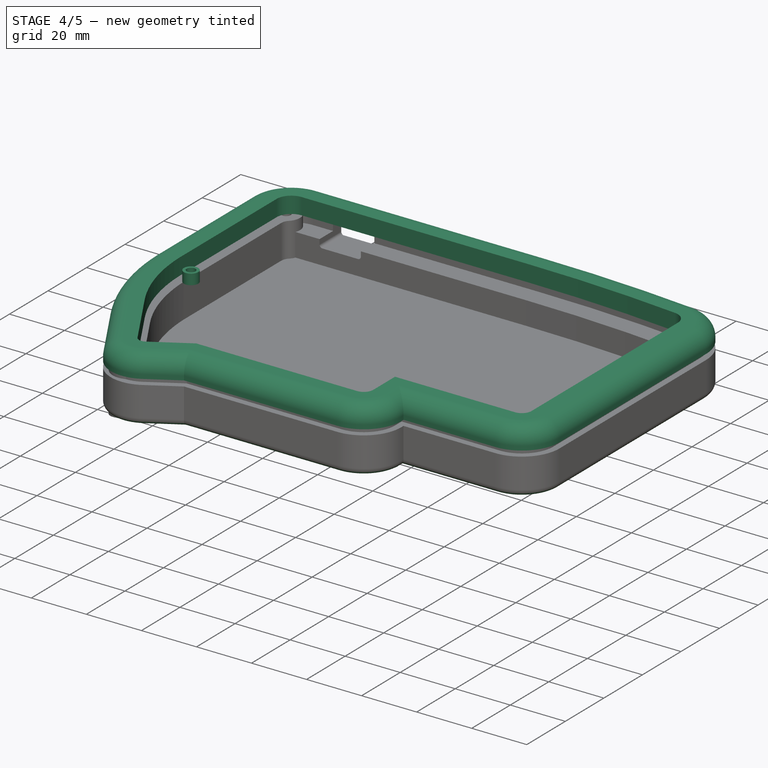
[diagram: stage 4 of 5 — iso view after this stage's code; geometry added in this stage tinted green]
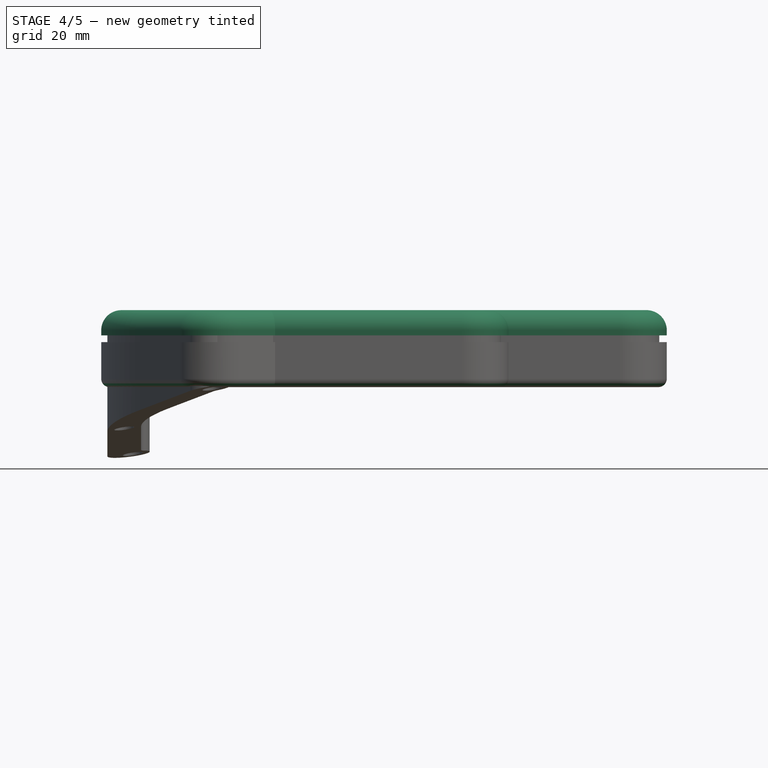
[diagram: stage 4 of 5 — front view after this stage's code; geometry added in this stage tinted green]
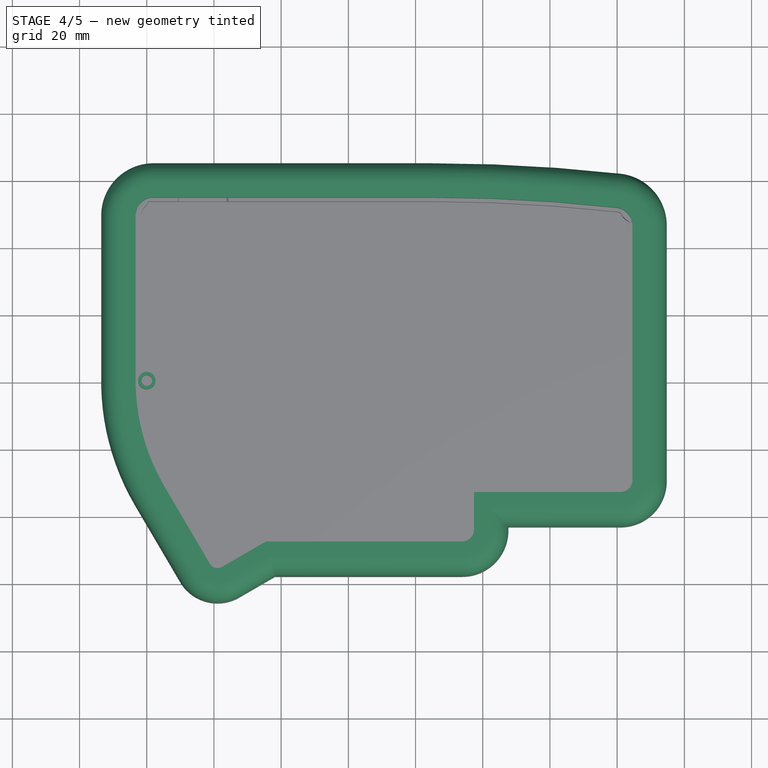
[diagram: stage 4 of 5 — top view after this stage's code; geometry added in this stage tinted green]
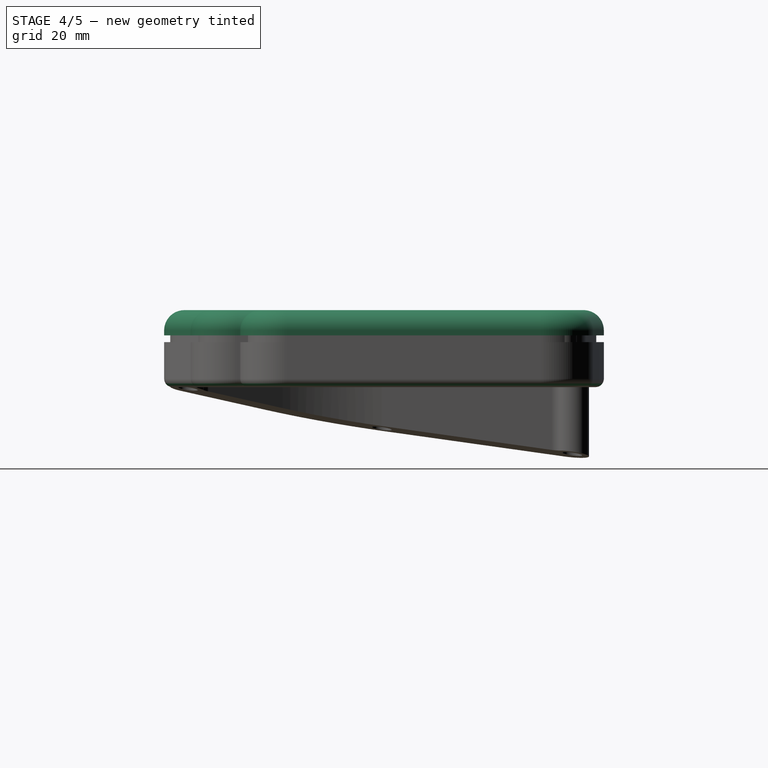
[diagram: stage 4 of 5 — right view after this stage's code; geometry added in this stage tinted green]
FEATURE [PartDesign::CoordinateSystem] lcs_mount_hole_a
  AttacherType = Attacher::AttachEngine3D
  MapMode = 11
  Placement = pos=(-12.8623,20.7106,1.6) rot=(0,0,1;1.5708rad)
  Support = -> [Pcb_f218]
FEATURE [PartDesign::CoordinateSystem] LCS_1  label="lcs_mount_hole_b"
  AttacherType = Attacher::AttachEngine3D
  MapMode = 11
  Placement = pos=(87.9377,73.7106,1.6) rot=(0,0,1;1.5708rad)
  Support = -> [Pcb_f218]
FEATURE [Sketcher::SketchObject] Sketch022
  FullyConstrained = true
  MapMode = 5
  Support = -> [XY_Plane014]
  expr: Constraints[2] = <<ss_case>>.screw_hole_od
  expr: Constraints[3] = <<ss_case>>.screw_hole_od + 2
  sketch-geometry (2):
    g0: Circle CenterX=0 CenterY=0 CenterZ=0 NormalX=0 NormalY=0 NormalZ=1 AngleXU=0 Radius=1.6
    g1: Circle CenterX=0 CenterY=0 CenterZ=0 NormalX=0 NormalY=0 NormalZ=1 AngleXU=0 Radius=2.6
  constraints (4):
    c: Coincident(g0,g-1)
    c: Coincident(g1,g0)
    c: Diameter(g0) = 3.2
    c: Diameter(g1) = 5.2
FEATURE [PartDesign::Pad] Pad009
  Direction = (0,0,1)
  Length = 3.8
  Length2 = 10
  Profile = -> Sketch022
  ReferenceAxis = -> Sketch022 [N_Axis]
  Type = 0
  expr: Length = <<ss_case>>.top_plate_offset
FEATURE [PartDesign::CoordinateSystem] lcs_mount_hole_a001
  AttacherType = Attacher::AttachEngine3D
  AttachmentOffset = pos=(0,0,0) rot=(0,0,1;3.14159rad)
  MapMode = 11
  Placement = pos=(-6.70447,-1.38632,-4) rot=(0,0,1;1.5708rad)
  Support = -> [Pocket007]
FEATURE [PartDesign::CoordinateSystem] lcs_usb_mount_a
  AttacherType = Attacher::AttachEngine3D
  MapMode = 11
  Placement = pos=(-6.7,40.2312,-11.4) rot=(0,0,1;1.5708rad)
  Support = -> [Pocket007]
FEATURE [PartDesign::ShapeBinder] ShapeBinder004
  Support = -> [Pad005]
  TraceSupport = false
FEATURE [Sketcher::SketchObject] Sketch029
  ExternalGeometry = -> [ShapeBinder004]
  FullyConstrained = true
  MapMode = 5
  Support = -> [XY_Plane021]
  expr: Constraints[40] = <<ss_case>>.wall_offset
  expr: Constraints[65] = <<ss_top_plate>>.gasket_width - 2
  sketch-geometry (41):
    g0: LineSegment StartX=2.02396 StartY=64.7101 StartZ=0 EndX=84.3125 EndY=64.7101 EndZ=0
    g1: LineSegment StartX=154.772 StartY=46.1101 StartZ=0 EndX=154.772 EndY=-29.7428 EndZ=0
    g2: LineSegment StartX=141.022 StartY=-43.4928 StartZ=0 EndX=107.631 EndY=-43.4928 EndZ=0
    g3: LineSegment StartX=93.9034 StartY=-58.2148 StartZ=0 EndX=38.2145 EndY=-58.2148 EndZ=0
    g4: LineSegment StartX=38.2145 StartY=-58.2148 StartZ=0 EndX=27.5142 EndY=-64.4085 EndZ=0
    g5: LineSegment StartX=9.94659 StartY=-59.7841 StartZ=0 EndX=-3.50636 EndY=-36.8919 EndZ=0
    g6: ArcOfCircle CenterX=59.4385 CenterY=0.0985715 CenterZ=0 NormalX=0 NormalY=0 NormalZ=1 AngleXU=0 Radius=73.0092 StartAngle=3.16193 EndAngle=3.67289
    g7: ArcOfCircle CenterX=84.3125 CenterY=-450.952 CenterZ=0 NormalX=0 NormalY=0 NormalZ=1 AngleXU=0 Radius=515.662 StartAngle=1.46083 EndAngle=1.5708
    g8: ArcOfCircle CenterX=139.192 CenterY=46.1101 CenterZ=0 NormalX=0 NormalY=0 NormalZ=1 AngleXU=0 Radius=15.5796 StartAngle=2e-16 EndAngle=1.46083
    g9: ArcOfCircle CenterX=2.02396 CenterY=49.1305 CenterZ=0 NormalX=0 NormalY=0 NormalZ=1 AngleXU=0 Radius=15.5796 StartAngle=1.5708 EndAngle=3.14159
    g10: ArcOfCircle CenterX=141.022 CenterY=-29.7428 CenterZ=0 NormalX=0 NormalY=0 NormalZ=1 AngleXU=0 Radius=13.75 StartAngle=4.71239 EndAngle=6.28319
    g11: ArcOfCircle CenterX=21.0579 CenterY=-53.2544 CenterZ=0 NormalX=0 NormalY=0 NormalZ=1 AngleXU=0 Radius=12.8879 StartAngle=3.67289 EndAngle=5.2371
    g12: LineSegment StartX=27.5142 StartY=-64.4085 StartZ=0 EndX=24.8842 EndY=-59.8648 EndZ=0
    g13: LineSegment StartX=84.3125 StartY=59.4601 StartZ=0 EndX=84.3125 EndY=64.7101 EndZ=0
    g14: LineSegment StartX=149.522 StartY=46.1101 StartZ=0 EndX=154.772 EndY=46.1101 EndZ=0
    g15: LineSegment StartX=93.9034 StartY=-58.2148 StartZ=0 EndX=93.9034 EndY=-52.9648 EndZ=0
    g16: LineSegment StartX=-3.50636 StartY=-36.8919 StartZ=0 EndX=1.01993 EndY=-34.232 EndZ=0
    g17: LineSegment StartX=-13.5556 StartY=-1.38632 StartZ=0 EndX=-8.30447 EndY=-1.38632 EndZ=0
    g18: LineSegment StartX=-13.5556 StartY=-1.38632 StartZ=0 EndX=-13.5556 EndY=49.1305 EndZ=0
    g19: LineSegment StartX=2.02396 StartY=54.4601 StartZ=0 EndX=84.3125 EndY=54.4601 EndZ=0
    g20: LineSegment StartX=-3.30564 StartY=49.1305 StartZ=0 EndX=-3.30564 EndY=-1.38632 EndZ=0
    g21: LineSegment StartX=144.522 StartY=46.1101 StartZ=0 EndX=144.522 EndY=-29.7428 EndZ=0
    g22: LineSegment StartX=141.022 StartY=-33.2428 StartZ=0 EndX=97.381 EndY=-33.2428 EndZ=0
    g23: LineSegment StartX=97.381 StartY=-33.2428 StartZ=0 EndX=97.381 EndY=-44.4872 EndZ=0
    g24: LineSegment StartX=93.9034 StartY=-47.9648 StartZ=0 EndX=35.4668 EndY=-47.9648 EndZ=0
    g25: LineSegment StartX=35.4668 StartY=-47.9648 StartZ=0 EndX=22.3806 EndY=-55.5396 EndZ=0
    g26: LineSegment StartX=18.7815 StartY=-54.5922 StartZ=0 EndX=5.32855 EndY=-31.6999 EndZ=0
    g27: ArcOfCircle CenterX=59.4385 CenterY=0.0985715 CenterZ=0 NormalX=0 NormalY=0 NormalZ=1 AngleXU=0 Radius=62.7617 StartAngle=3.16525 EndAngle=3.67289
    g28: ArcOfCircle CenterX=84.3125 CenterY=-450.952 CenterZ=0 NormalX=0 NormalY=0 NormalZ=1 AngleXU=0 Radius=505.412 StartAngle=1.46083 EndAngle=1.5708
    g29: ArcOfCircle CenterX=139.192 CenterY=46.1101 CenterZ=0 NormalX=0 NormalY=0 NormalZ=1 AngleXU=0 Radius=5.32961 StartAngle=7e-16 EndAngle=1.46083
    g30: ArcOfCircle CenterX=2.02396 CenterY=49.1305 CenterZ=0 NormalX=0 NormalY=0 NormalZ=1 AngleXU=0 Radius=5.32961 StartAngle=1.5708 EndAngle=3.14159
    g31: LineSegment StartX=84.3125 StartY=54.4601 StartZ=0 EndX=84.3125 EndY=59.4601 EndZ=0
    g32: ArcOfCircle CenterX=21.0579 CenterY=-53.2544 CenterZ=0 NormalX=0 NormalY=0 NormalZ=1 AngleXU=0 Radius=2.64034 StartAngle=3.67289 EndAngle=5.2371
    g33: ArcOfCircle CenterX=93.9034 CenterY=-44.4872 CenterZ=0 NormalX=0 NormalY=0 NormalZ=1 AngleXU=0 Radius=3.47761 StartAngle=4.71239 EndAngle=6.28319
    g34: ArcOfCircle CenterX=141.022 CenterY=-29.7428 CenterZ=0 NormalX=0 NormalY=0 NormalZ=1 AngleXU=0 Radius=3.5 StartAngle=4.71239 EndAngle=6.28319
    g35: LineSegment StartX=93.9034 StartY=-52.9648 StartZ=0 EndX=93.9034 EndY=-47.9648 EndZ=0
    g36: LineSegment StartX=22.3806 StartY=-55.5396 StartZ=0 EndX=24.8842 EndY=-59.8648 EndZ=0
    g37: LineSegment StartX=5.32855 StartY=-31.6999 StartZ=0 EndX=1.01993 EndY=-34.232 EndZ=0
    g38: LineSegment StartX=-3.30564 StartY=-1.38632 StartZ=0 EndX=-8.30447 EndY=-1.38632 EndZ=0
    g39: LineSegment StartX=107.631 StartY=-43.4928 StartZ=0 EndX=107.631 EndY=-44.4872 EndZ=0
    g40: ArcOfCircle CenterX=93.9034 CenterY=-44.4872 CenterZ=0 NormalX=0 NormalY=0 NormalZ=1 AngleXU=0 Radius=13.7276 StartAngle=4.71239 EndAngle=6.28319
  constraints (93):
    c: Horizontal(g0)
    c: Vertical(g1)
    c: Horizontal(g2)
    c: Horizontal(g3)
    c: Coincident(g3,g4)
    c: Parallel(g5,g-13)
    c: Parallel(g-11,g4)
    c: Coincident(g6,g-14)
    c: Coincident(g7,g-4)
    c: Coincident(g8,g-5)
    c: Coincident(g8,g1)
    c: Tangent(g8,g7) = -1.5708
    c: Tangent(g7,g0) = 1.5708
    c: Coincident(g6,g17) = 1.5708
    c: Tangent(g6,g5) = 1.5708
    c: Tangent(g0,g9) = 1.5708
    c: Equal(g8,g9)
    c: Tangent(g2,g10) = 1.5708
    c: Tangent(g1,g10) = 1.5708
    c: Tangent(g5,g11) = 1.5708
    c: Tangent(g4,g11) = 1.5708
    c: Coincident(g11,g-12)
    c: Coincident(g10,g-7)
    c: Coincident(g12,g4)
    c: Coincident(g12,g-12)
    c: Coincident(g13,g-4)
    c: Coincident(g13,g0)
    c: Coincident(g14,g-6)
    c: Coincident(g14,g1)
    c: Horizontal(g14)
    c: Equal(g13,g12)
    c: Coincident(g15,g3)
    c: Coincident(g15,g-10)
    c: Equal(g15,g13)
    c: Coincident(g16,g5)
    c: Coincident(g16,g-14)
    c: Coincident(g17,g-16)
    c: Horizontal(g17)
    c: Coincident(g18,g6)
    c: Vertical(g18)
    c: DistanceY(g13,g13) = 5.25
    c: Tangent(g18,g9) = 1.5708
    c: Horizontal(g19)
    c: Vertical(g20)
    c: Vertical(g21)
    c: Horizontal(g22)
    c: Coincident(g22,g23)
    c: Horizontal(g24)
    c: Coincident(g24,g25)
    c: Parallel(g25,g-11)
    c: Parallel(g26,g-13)
    c: Vertical(g23)
    c: Coincident(g27,g6)
    c: Coincident(g27,g26)
    c: Coincident(g27,g20)
    c: Coincident(g28,g7)
    c: Coincident(g28,g19)
    c: Coincident(g29,g8)
    c: Tangent(g29,g28) = -1.5708
    c: Tangent(g29,g21) = 1.5708
    c: Tangent(g20,g30) = -1.5708
    c: Tangent(g19,g30) = 1.5708
    c: Coincident(g31,g19)
    c: Coincident(g31,g13)
    c: Vertical(g31)
    c: DistanceY(g31,g31) = 5
    c: Coincident(g9,g30)
    c: Tangent(g26,g32) = 1.5708
    c: Tangent(g25,g32) = 1.5708
    c: Tangent(g24,g33) = 1.5708
    c: Tangent(g23,g33) = 1.5708
    c: Tangent(g22,g34) = 1.5708
    c: Tangent(g21,g34) = 1.5708
    c: Coincident(g32,g11)
    c: Coincident(g10,g34)
    c: Coincident(g35,g15)
    c: Coincident(g35,g24)
    c: Coincident(g36,g25)
    c: Coincident(g36,g12)
    c: Coincident(g37,g26)
    c: Coincident(g37,g16)
    c: Perpendicular(g26,g37)
    c: Coincident(g38,g20)
    c: Coincident(g38,g17)
    c: Horizontal(g38)
    c: Equal(g35,g31)
    c: Coincident(g39,g2)
    c: Vertical(g39)
    c: Coincident(g40,g33)
    c: Coincident(g40,g3)
    c: Tangent(g40,g39) = 1.5708
    c: Coincident(g33,g-9)
    c: Vertical(g15)
FEATURE [Spreadsheet::Sheet] Spreadsheet007  label="ss_cover"
  cells = A1='cover_thicknss; B1(cover_thickness)==<<ss_case>>.flange_thickness + 6 - shadow_gap; A2='shadow_gap; B2(shadow_gap)=0.5; A3='top_thickness; B3(top_thickness)=1.5
FEATURE [PartDesign::Pad] Pad013
  Direction = (0,0,1)
  Length = 7.5
  Length2 = 10
  Profile = -> Sketch029
  ReferenceAxis = -> Sketch029 [N_Axis]
  Type = 0
  expr: Length = <<ss_cover>>.cover_thickness
FEATURE [Sketcher::SketchObject] Sketch030
  ExternalGeometry = -> [ShapeBinder004]
  FullyConstrained = true
  MapMode = 5
  Support = -> [XY_Plane021]
  expr: Constraints[37] = Sketch029.Constraints[40]
  expr: Constraints[46] = <<ss_case>>.flange_thickness
  expr: Constraints[76] = <<ss_case>>.flange_thickness
  sketch-geometry (39):
    g0: LineSegment StartX=2.02396 StartY=64.7101 StartZ=0 EndX=84.3125 EndY=64.7101 EndZ=0
    g1: LineSegment StartX=154.772 StartY=46.1101 StartZ=0 EndX=154.772 EndY=-29.7428 EndZ=0
    g2: LineSegment StartX=141.022 StartY=-43.4928 StartZ=0 EndX=107.631 EndY=-43.4928 EndZ=0
    g3: LineSegment StartX=93.9034 StartY=-58.2148 StartZ=0 EndX=38.2145 EndY=-58.2148 EndZ=0
    g4: LineSegment StartX=38.2145 StartY=-58.2148 StartZ=0 EndX=27.5142 EndY=-64.4085 EndZ=0
    g5: LineSegment StartX=9.94659 StartY=-59.7841 StartZ=0 EndX=-3.50636 EndY=-36.8919 EndZ=0
    g6: ArcOfCircle CenterX=59.4385 CenterY=0.0985715 CenterZ=0 NormalX=0 NormalY=0 NormalZ=1 AngleXU=0 Radius=73.0092 StartAngle=3.16193 EndAngle=3.67289
    g7: ArcOfCircle CenterX=84.3125 CenterY=-450.952 CenterZ=0 NormalX=0 NormalY=0 NormalZ=1 AngleXU=0 Radius=515.662 StartAngle=1.46083 EndAngle=1.5708
    g8: ArcOfCircle CenterX=139.192 CenterY=46.1101 CenterZ=0 NormalX=0 NormalY=0 NormalZ=1 AngleXU=0 Radius=15.5796 StartAngle=2e-16 EndAngle=1.46083
    g9: ArcOfCircle CenterX=2.02396 CenterY=49.1305 CenterZ=0 NormalX=0 NormalY=0 NormalZ=1 AngleXU=0 Radius=15.5796 StartAngle=1.5708 EndAngle=3.14159
    g10: ArcOfCircle CenterX=141.022 CenterY=-29.7428 CenterZ=0 NormalX=0 NormalY=0 NormalZ=1 AngleXU=0 Radius=13.75 StartAngle=4.71239 EndAngle=6.28319
    g11: ArcOfCircle CenterX=21.0579 CenterY=-53.2544 CenterZ=0 NormalX=0 NormalY=0 NormalZ=1 AngleXU=0 Radius=12.8879 StartAngle=3.67289 EndAngle=5.2371
    g12: LineSegment StartX=27.5142 StartY=-64.4085 StartZ=0 EndX=24.8842 EndY=-59.8648 EndZ=0
    g13: LineSegment StartX=84.3125 StartY=59.4601 StartZ=0 EndX=84.3125 EndY=64.7101 EndZ=0
    g14: LineSegment StartX=149.522 StartY=46.1101 StartZ=0 EndX=154.772 EndY=46.1101 EndZ=0
    g15: LineSegment StartX=93.9034 StartY=-58.2148 StartZ=0 EndX=93.9034 EndY=-52.9648 EndZ=0
    g16: LineSegment StartX=-3.50636 StartY=-36.8919 StartZ=0 EndX=1.01993 EndY=-34.232 EndZ=0
    g17: LineSegment StartX=-13.5556 StartY=-1.38632 StartZ=0 EndX=-8.30447 EndY=-1.38632 EndZ=0
    g18: LineSegment StartX=-13.5556 StartY=-1.38632 StartZ=0 EndX=-13.5556 EndY=49.1305 EndZ=0
    g19: ArcOfCircle CenterX=141.022 CenterY=-29.7428 CenterZ=0 NormalX=0 NormalY=0 NormalZ=1 AngleXU=0 Radius=11.75 StartAngle=4.71239 EndAngle=6.28319
    g20: LineSegment StartX=152.772 StartY=-29.7428 StartZ=0 EndX=154.772 EndY=-29.7428 EndZ=0
    g21: LineSegment StartX=152.772 StartY=-29.7428 StartZ=0 EndX=152.772 EndY=46.1101 EndZ=0
    g22: ArcOfCircle CenterX=93.9034 CenterY=-44.4872 CenterZ=0 NormalX=0 NormalY=0 NormalZ=1 AngleXU=0 Radius=11.7276 StartAngle=4.71239 EndAngle=6.28319
    g23: LineSegment StartX=105.631 StartY=-44.4872 StartZ=0 EndX=105.631 EndY=-41.4928 EndZ=0
    g24: LineSegment StartX=105.631 StartY=-41.4928 StartZ=0 EndX=141.022 EndY=-41.4928 EndZ=0
    g25: LineSegment StartX=93.9034 StartY=-56.2148 StartZ=0 EndX=37.6774 EndY=-56.2148 EndZ=0
    g26: LineSegment StartX=37.6774 StartY=-56.2148 StartZ=0 EndX=26.5123 EndY=-62.6775 EndZ=0
    g27: ArcOfCircle CenterX=21.0579 CenterY=-53.2544 CenterZ=0 NormalX=0 NormalY=0 NormalZ=1 AngleXU=0 Radius=10.8879 StartAngle=3.67289 EndAngle=5.2371
    g28: LineSegment StartX=11.6709 StartY=-58.7708 StartZ=0 EndX=-1.78206 EndY=-35.8786 EndZ=0
    g29: LineSegment StartX=107.631 StartY=-43.4928 StartZ=0 EndX=107.631 EndY=-44.4872 EndZ=0
    g30: ArcOfCircle CenterX=93.9034 CenterY=-44.4872 CenterZ=0 NormalX=0 NormalY=0 NormalZ=1 AngleXU=0 Radius=13.7276 StartAngle=4.71239 EndAngle=6.28319
    g31: LineSegment StartX=107.631 StartY=-44.4872 StartZ=0 EndX=102.381 EndY=-44.4872 EndZ=0
    g32: LineSegment StartX=11.6709 StartY=-58.7708 StartZ=0 EndX=9.94659 EndY=-59.7841 EndZ=0
    g33: ArcOfCircle CenterX=59.4385 CenterY=0.0985715 CenterZ=0 NormalX=0 NormalY=0 NormalZ=1 AngleXU=0 Radius=71.0092 StartAngle=3.16251 EndAngle=3.67289
    g34: LineSegment StartX=-11.5552 StartY=-1.38632 StartZ=0 EndX=-11.5552 EndY=49.1305 EndZ=0
    g35: LineSegment StartX=2.02389 StartY=62.7097 StartZ=0 EndX=84.3125 EndY=62.7101 EndZ=0
    g36: ArcOfCircle CenterX=2.02396 CenterY=49.1305 CenterZ=0 NormalX=0 NormalY=0 NormalZ=1 AngleXU=0 Radius=13.5792 StartAngle=1.5708 EndAngle=3.14159
    g37: ArcOfCircle CenterX=84.3125 CenterY=-450.952 CenterZ=0 NormalX=0 NormalY=0 NormalZ=1 AngleXU=0 Radius=513.662 StartAngle=1.46083 EndAngle=1.5708
    g38: ArcOfCircle CenterX=139.192 CenterY=46.1101 CenterZ=0 NormalX=0 NormalY=0 NormalZ=1 AngleXU=0 Radius=13.5796 StartAngle=-1.8e-15 EndAngle=1.46083
  constraints (95):
    c: Horizontal(g0)
    c: Vertical(g1)
    c: Horizontal(g2)
    c: Horizontal(g3)
    c: Coincident(g3,g4)
    c: Parallel(g5,g-13)
    c: Parallel(g-11,g4)
    c: Coincident(g6,g-14)
    c: Coincident(g7,g-4)
    c: Coincident(g8,g1)
    c: Tangent(g8,g7) = -1.5708
    c: Tangent(g7,g0) = 1.5708
    c: Coincident(g6,g17) = 1.5708
    c: Tangent(g6,g5) = 1.5708
    c: Tangent(g0,g9) = 1.5708
    c: Equal(g8,g9)
    c: Tangent(g2,g10) = 1.5708
    c: Tangent(g1,g10) = 1.5708
    c: Tangent(g5,g11) = 1.5708
    c: Tangent(g4,g11) = 1.5708
    c: Coincident(g12,g4)
    c: Coincident(g12,g-12)
    c: Coincident(g13,g-4)
    c: Coincident(g13,g0)
    c: Coincident(g14,g-6)
    c: Coincident(g14,g1)
    c: Horizontal(g14)
    c: Equal(g13,g12)
    c: Coincident(g15,g3)
    c: Coincident(g15,g-10)
    c: Equal(g15,g13)
    c: Coincident(g16,g5)
    c: Coincident(g16,g-14)
    c: Coincident(g17,g-16)
    c: Horizontal(g17)
    c: Coincident(g18,g6)
    c: Vertical(g18)
    c: DistanceY(g13,g13) = 5.25
    c: Tangent(g18,g9) = 1.5708
    c: Coincident(g-5,g8)
    c: Coincident(g11,g-12)
    c: Coincident(g10,g-7)
    c: Coincident(g19,g10)
    c: Coincident(g20,g19)
    c: Coincident(g20,g1)
    c: Horizontal(g20)
    c: DistanceX(g20,g20) = 2
    c: Coincident(g21,g19)
    c: PointOnObject(g21,g14)
    c: Vertical(g21)
    c: PointOnObject(g22,g15)
    c: Coincident(g24,g23)
    c: Horizontal(g24)
    c: Tangent(g23,g22) = -1.5708
    c: Horizontal(g25)
    c: Coincident(g26,g25)
    c: PointOnObject(g26,g12)
    c: Coincident(g27,g11)
    c: Coincident(g27,g26)
    c: Coincident(g28,g27)
    c: PointOnObject(g28,g16)
    c: Parallel(g28,g-13)
    c: Parallel(g26,g-11)
    c: Tangent(g24,g19) = -1.5708
    c: Coincident(g29,g2)
    c: Vertical(g29)
    c: Coincident(g30,g22)
    c: Coincident(g30,g3)
    c: Coincident(g30,g29)
    c: Vertical(g15)
    c: Horizontal(g29,g-9)
    c: Tangent(g25,g22) = 1.5708
    c: Horizontal(g22,g-9)
    c: Coincident(g31,g29)
    c: Coincident(g31,g-9)
    c: Equal(g31,g15)
    c: DistanceX(g22,g29) = 2
    c: Coincident(g32,g27)
    c: Coincident(g32,g5)
    c: Perpendicular(g32,g28)
    c: Equal(g32,g20)
    c: Coincident(g33,g6)
    c: Coincident(g33,g28)
    c: Coincident(g34,g33)
    c: PointOnObject(g35,g13)
    c: Tangent(g34,g36) = 1.5708
    c: Tangent(g35,g36) = 1.5708
    c: Coincident(g36,g9)
    c: Vertical(g34)
    c: PointOnObject(g33,g17)
    c: Coincident(g37,g7)
    c: Coincident(g37,g35)
    c: Coincident(g38,g8)
    c: Coincident(g38,g21)
    c: Tangent(g38,g37) = -1.5708
FEATURE [PartDesign::Pocket] Pocket008
  BaseFeature = -> Pad013
  Direction = (0,0,-1)
  Length = 1.5
  Length2 = 5
  Profile = -> Sketch030
  ReferenceAxis = -> Sketch030 [N_Axis]
  Reversed = true
  Type = 0
  expr: Length = <<ss_case>>.flange_thickness - <<ss_cover>>.shadow_gap
FEATURE [Sketcher::SketchObject] Sketch031
  ExternalGeometry = -> [ShapeBinder004]
  FullyConstrained = true
  MapMode = 5
  Support = -> [XY_Plane021]
  expr: Constraints[10] = <<ss_case>>.threaded_insert_hole_od
  sketch-geometry (12):
    g0: Circle CenterX=-6.70447 CenterY=-1.38632 CenterZ=0 NormalX=0 NormalY=0 NormalZ=1 AngleXU=0 Radius=2
    g1: Circle CenterX=19.5209 CenterY=-59.0934 CenterZ=0 NormalX=0 NormalY=0 NormalZ=1 AngleXU=0 Radius=2
    g2: Circle CenterX=98.7666 CenterY=-49.3504 CenterZ=0 NormalX=0 NormalY=0 NormalZ=1 AngleXU=0 Radius=2
    g3: Circle CenterX=145.901 CenterY=-34.6219 CenterZ=0 NormalX=0 NormalY=0 NormalZ=1 AngleXU=0 Radius=2
    g4: Circle CenterX=145.695 CenterY=51.9344 CenterZ=0 NormalX=0 NormalY=0 NormalZ=1 AngleXU=0 Radius=2
    g5: Circle CenterX=-3.86479 CenterY=55.0204 CenterZ=0 NormalX=0 NormalY=0 NormalZ=1 AngleXU=0 Radius=2
    g6: LineSegment StartX=-8.30447 StartY=-1.38632 StartZ=0 EndX=-8.30447 EndY=49.1305 EndZ=0
    g7: LineSegment StartX=2.02513 StartY=59.4601 StartZ=0 EndX=27.7344 EndY=59.4601 EndZ=0
    g8: ArcOfCircle CenterX=2.02513 CenterY=49.1305 CenterZ=0 NormalX=0 NormalY=0 NormalZ=1 AngleXU=0 Radius=10.3296 StartAngle=1.5708 EndAngle=3.14159
    g9: LineSegment StartX=2.02513 StartY=49.1305 StartZ=0 EndX=-5.279 EndY=56.4346 EndZ=0
    g10: LineSegment StartX=-5.279 StartY=56.4346 StartZ=0 EndX=2.02513 EndY=59.4601 EndZ=0
    g11: LineSegment StartX=-5.279 StartY=56.4346 StartZ=0 EndX=-8.30447 EndY=49.1305 EndZ=0
  constraints (27):
    c: Coincident(g0,g-3)
    c: Coincident(g1,g-4)
    c: Coincident(g2,g-5)
    c: Coincident(g3,g-6)
    c: Coincident(g4,g-7)
    c: Equal(g5,g0)
    c: Equal(g0,g1)
    c: Equal(g1,g2)
    c: Equal(g2,g3)
    c: Equal(g3,g4)
    c: Diameter(g5) = 4
    c: Coincident(g6,g-9)
    c: Coincident(g7,g-8)
    c: Horizontal(g7)
    c: Vertical(g6)
    c: Tangent(g6,g8) = 1.5708
    c: Tangent(g7,g8) = 1.5708
    c: Equal(g-10,g8)
    c: Coincident(g9,g8)
    c: PointOnObject(g9,g8)
    c: Coincident(g10,g9)
    c: Coincident(g10,g7)
    c: Coincident(g11,g9)
    c: Coincident(g11,g6)
    c: Equal(g11,g10)
    c: PointOnObject(g5,g9)
    c: PointOnObject(g9,g5)
FEATURE [PartDesign::Hole] Hole001
  BaseFeature = -> Pocket008
  CustomThreadClearance = 0
  Depth = 5
  DepthType = 0
  Diameter = 4
  DrillForDepth = false
  DrillPoint = 0
  DrillPointAngle = 118
  HoleCutCountersinkAngle = 90
  HoleCutCustomValues = false
  HoleCutDepth = 0
  HoleCutDiameter = 6.1
  HoleCutType = 0
  ModelThread = false
  Profile = -> Sketch031
  Reversed = true
  Tapered = false
  TaperedAngle = 90
  ThreadClass = 0
  ThreadDepth = 5
  ThreadDepthType = 0
  ThreadDirection = 0
  ThreadFit = 0
  ThreadSize = 0
  ThreadType = 0
  Threaded = false
  UseCustomThreadClearance = false
  expr: Depth = <<ss_case>>.flange_thickness + <<ss_case>>.threaded_insert_thickness
  expr: Diameter = <<ss_case>>.threaded_insert_hole_od
FEATURE [PartDesign::CoordinateSystem] mount_hole
  AttacherType = Attacher::AttachEngine3D
  MapMode = 11
  Placement = pos=(98.7666,-49.3504,1.5) rot=(0,0,-1;1.5708rad)
  Support = -> [Hole001]
FEATURE [PartDesign::CoordinateSystem] cover_mount
  AttacherType = Attacher::AttachEngine3D
  AttachmentOffset = pos=(0,0,4) rot=(0,0,1;0rad)
  MapMode = 11
  Placement = pos=(98.7666,-49.3504,0) rot=(0,0,-1;1.5708rad)
  Support = -> [Pocket007]
  expr: .AttachmentOffset.Base.z = <<ss_case>>.total_top_plate_offset + <<ss_top_plate>>.thickness
FEATURE [App::Link] case_cover  label="case_cover001"
  AttachedBy = #mount_hole
  AttachedTo = case_base#cover_mount
  LinkPlacement = pos=(-22.0637,25.3043,6.3) rot=(0,0,1;0rad)
  LinkedObject = -> Part006
  Placement = pos=(-22.0637,25.3043,6.3) rot=(0,0,1;0rad)
  SolverId = Asm4EE
  expr: Placement = case_base.Placement * cover_mount.Placement * AttachmentOffset * mount_hole.Placement ^ -1
FEATURE [PartDesign::Fillet] Fillet
  Base = -> Hole001 [Edge47,Edge48,Edge49,Edge7,Edge4,Edge10,Edge38,Edge39,Edge40,Edge41,Edge43,Edge44,Edge45,Edge46]
  BaseFeature = -> Hole001
  Radius = 6
  SupportTransform = false
  UseAllEdges = false
FEATURE [PartDesign::Body] Body008  label="b_cover"
  Group = -> [ShapeBinder004,Sketch029,Pad013,Sketch030,Pocket008,Sketch031,Hole001,Fillet]
  Origin = -> Origin021
  Tip = -> Fillet
FEATURE [App::Part] Part006  label="case_cover"
  Group = -> [Body008,Spreadsheet007,mount_hole]
  Origin = -> Origin020
FEATURE [Spreadsheet::Sheet] Spreadsheet008  label="ss_tenting"
  cells = A1='pitch; B1(pitch)=8; A2='yaw; B2(yaw)=8; A3='a; B3(a)=100; A4='c; B4(c)==a * tan(pitch); A5='tent_length; B5(tent_length)==cos(yaw) * c; A6='base_to_threaded_insert; B6(base_to_threaded_insert)==<<ss_case>>.base_thickness + <<ss_case>>.threaded_insert_thickness + <<ss_cover>>.shadow_gap; A7='head_offset; B7(head_offset)==<<ss_case>>.screw_length - base_to_threaded_insert; A8='leg_diameter; B8(leg_diameter)=10
FEATURE [PartDesign::CoordinateSystem] lcs_tent
  AttacherType = Attacher::AttachEngine3D
  MapMode = 11
  Placement = pos=(-4.21834,55.374,-15.4) rot=(0.707107,0.707107,0;3.14159rad)
  Support = -> [Pocket007]
FEATURE [App::Link] tenting  label="tenting001"
  AttachedBy = #lcs_mount
  AttachedTo = case_base#lcs_tent
  AttachmentOffset = pos=(0,0,0) rot=(1,0,0;3.14159rad)
  LinkPlacement = pos=(-22.1344,25.375,-7.6) rot=(0,0,1;0rad)
  LinkedObject = -> Part007
  Placement = pos=(-22.1344,25.375,-7.6) rot=(0,0,1;0rad)
  SolverId = Asm4EE
  expr: Placement = case_base.Placement * lcs_tent.Placement * AttachmentOffset * lcs_mount.Placement ^ -1
FEATURE [App::Part] Assembly
  AssemblyType = Part::Link
  Group = -> [LCS_Origin,Constraints,Variables,Configurations,lily58_pcb,p_spacer,p_spacer001,top_plate,case_base,usbc_breakout,lcs_base,header_12,header_013,bastard_splinky,case_cover,tenting]
  Origin = -> Origin015
  Type = Assembly
FEATURE [PartDesign::Fillet] Fillet001
  Base = -> Pocket007 [Face9]
  BaseFeature = -> Pocket007
  Radius = 2.5
  SupportTransform = false
  UseAllEdges = false
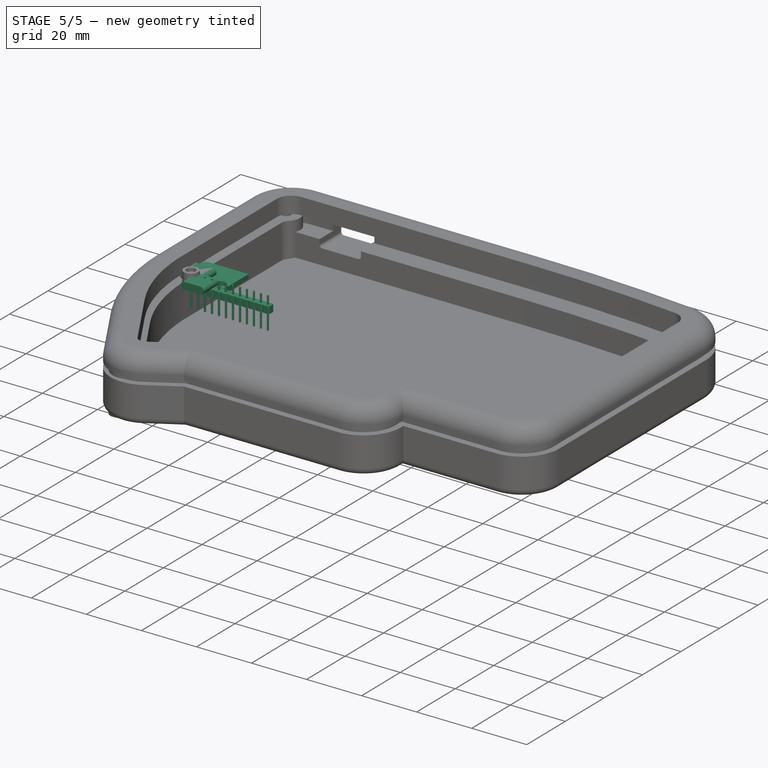
[diagram: stage 5 of 5 — iso view after this stage's code; geometry added in this stage tinted green]
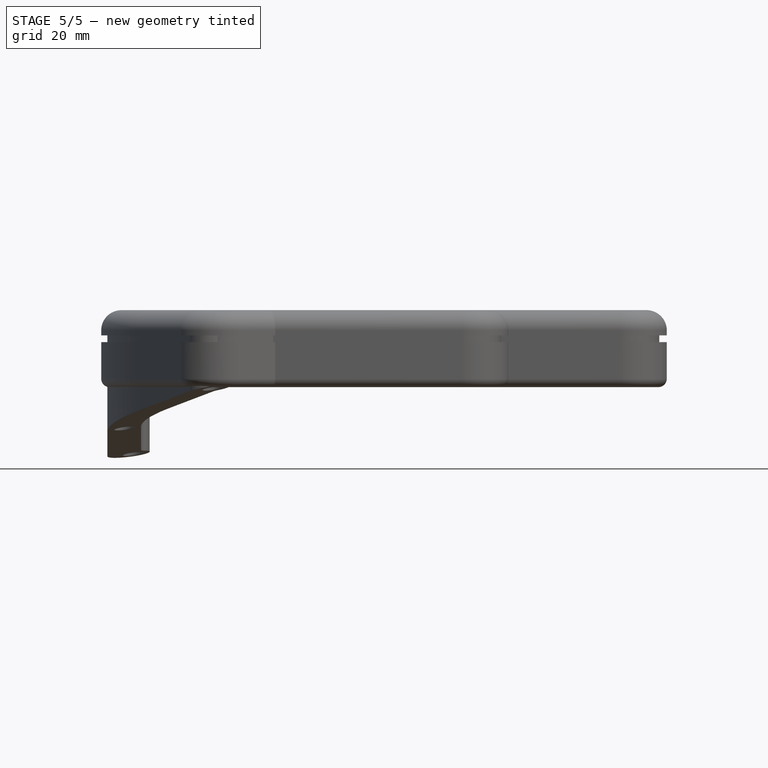
[diagram: stage 5 of 5 — front view after this stage's code; geometry added in this stage tinted green]
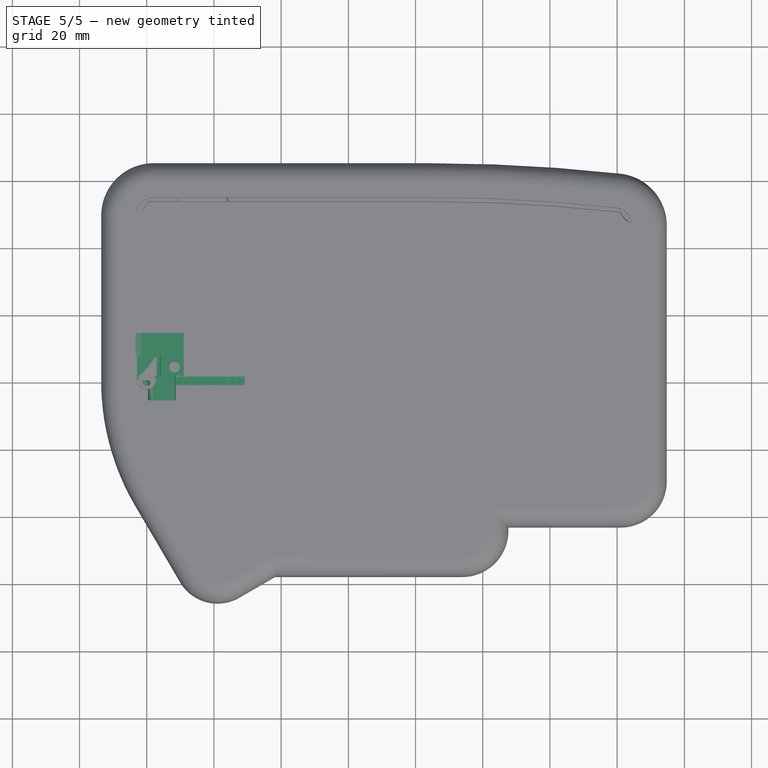
[diagram: stage 5 of 5 — top view after this stage's code; geometry added in this stage tinted green]
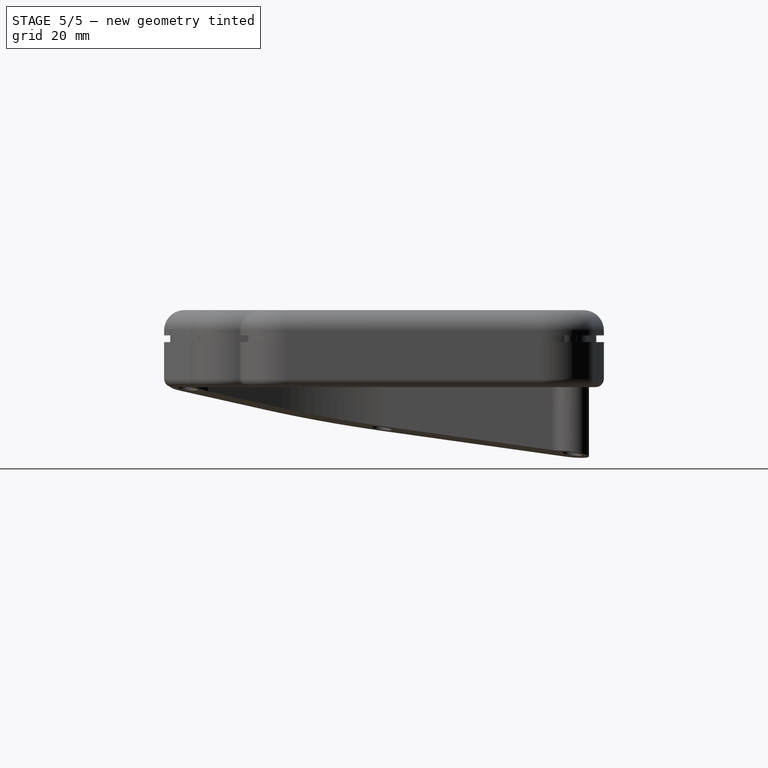
[diagram: stage 5 of 5 — right view after this stage's code; geometry added in this stage tinted green]
FEATURE [Spreadsheet::Sheet] Spreadsheet  label="ss_top_plate"
  cells = A1='gasket_width; B1(gasket_width)=7; A2='hole_radius; B2(hole_radius)=5; A3='top_spline_x; B3(top_spline_x)=33.45; A4='top_spline_y; B4(top_spline_y)=3.16; A5='bottom_spline_x; B5(bottom_spline_x)=25.49; A6='bottom_spline_y; B6(bottom_spline_y)=28.47; A7='thickness; B7(thickness)=3; A8='ref_to_left_edge; B8(ref_to_left_edge)=45.11; A9='screw_diameter; B9(screw_diameter)=3; A10='screw_hole_od; B10(screw_hole_od)=3.2
FEATURE [Spreadsheet::Sheet] Spreadsheet001  label="ss_case"
  cells = A1='wall_thickness; B1(wall_thickness)=3; F1='pcb_thickness; G1(pcb_thickness)=1.6; I1='mx_total_heigh; J1(mx_total_height)=11.6; A2='plate_offset; B2(plate_offset)=1; D2='gasket_thickness; E2(gasket_thickness)=2; F2='hotswap thickenss; G2(hs_offset)=1.8; I2='mx_base_to_flange; J2(mx_base_to_flange)=5; A3='flange_thickness; B3(flange_thickness)=2; F3='top_plate_offset; G3(top_plate_offset)==hs_offset + mx_base_to_flange - <<ss_top_plate>>.thickness; I3='mx_flange_top; J3(mx_flange_to_top)==mx_total_height - mx_base_to_flange; A4='flange_offset; B4(flange_offset)=0.25; F4='pcb_ass_thickness; G4(pcb_ass_thickness)==pcb_thickness + <<ss_top_plate>>.thickness + top_plate_offset; A5='top_plate_cutout_depth; B5(top_plate_cutout_depth)==<<ss_top_plate>>.thickness + 1; F5='pcb_pocket_offset; G5(pcb_pocket_offset)=1; F6='gasket_to_pcb_offset; G6(gasket_to_pcb_offset)==<<ss_top_plate>>.gasket_width - 1; F7='pcb_pocet_depth; G7==pcb_thickness + top_plate_offset + <<ss_top_plate>>.thickness; A8='total_top_plate_offset; B8(total_top_plate_offset)==plate_offset; A9='wall_offset; B9(wall_offset)==total_top_plate_offset + flange_thickness * 2 + flange_offset; E9='hole_plane_offset; F9(hole_plane_offset)==wall_offset + <<ss_top_plate>>.gasket_width + plate_offset + 0.31; A10='base_thickness; B10(base_thickness)==pcb_ass_thickness + wall_thickness + <<ss_top_plate>>.thickness + 1; E10='usbc_z_offset; F10(connector_z_offset)=1; E11='usb_c_screw_hole_od; F11(usb_c_screw_hole_od)=2; A12='leg_diameter; B12(leg_diameter)=10; E12='controller_z_offset_max; F12(controller_z_offset_max)==pcb_ass_thickness - pcb_thickness - <<ss_lily58_pcb>>.usb_c_z_offset + plate_offset + 1.5; E13='origin_to_inside; F13(origin_to_inside_flange)==wall_offset + <<ss_top_plate>>.gasket_width + plate_offset + 0.3 - flange_thickness * 2 - flange_offset; G13='There is a fudge factor of 0.3 on this for some reason...; A14='thread_insert_hole_od; B14(threaded_insert_hole_od)=4; A15='threaded_insert_thickness; B15(threaded_insert_thickness)=3; A16='screw_diameter; B16(screw_diameter)=3; A17='screw_hole_od; B17(screw_hole_od)=3.2; A18='screw_head_heigh; B18(screw_head_height)=3; A19='screw_head_od; B19(screw_head_od)=5.5; A20='screw_length; B20(screw_length)=25
FEATURE [Spreadsheet::Sheet] Spreadsheet003
  cells = A1='ref_to_left_edge; B1(ref_to_left_edge)=40
FEATURE [Spreadsheet::Sheet] Spreadsheet004  label="ss_usbc"
  cells = A1='pcb_thickness; B1(pcb_thickness)=1.6; A2='connectory_height; B2(connector_height)=2.56; A3='connector_width; B3(connector_width)=8.34; A4='pcb_width; B4(pcb_width)=22; A5='pcb_length; B5(pcb_length)=12.7; A6='hole_diameter; B6(hole_diameter)=3.2; A7='hole_spacing; B7(hole_spacing)==19.8 - hole_diameter; A8='hole_inset; B8(hole_inset)==1 + hole_diameter / 2; A9='connector_offset; B9(connector_offset)=1.5; A10='connector_depth; B10(connector_depth)=7.3; A11='connector_cutout_offset; B11(connector_cutout_offset)=0.5; A12='connector_cutout_width; B12(connector_cutout_width)==connector_width + connector_cutout_offset; A13='connector_cutout_height; B13(connector_cutout_height)==connector_height + connector_cutout_offset
FEATURE [Sketcher::SketchObject] Sketch015
  FullyConstrained = true
  MapMode = 5
  Support = -> [XY_Plane012]
  expr: Constraints[16] = <<ss_usbc>>.hole_spacing
  expr: Constraints[17] = <<ss_usbc>>.hole_inset
  expr: Constraints[18] = <<ss_usbc>>.hole_diameter
  expr: Constraints[21] = <<ss_usbc>>.connector_offset
  expr: Constraints[8] = <<ss_usbc>>.pcb_length
  expr: Constraints[9] = <<ss_usbc>>.pcb_width
  sketch-geometry (9):
    g0: LineSegment StartX=-11 StartY=1.5 StartZ=0 EndX=11 EndY=1.5 EndZ=0
    g1: LineSegment StartX=11 StartY=1.5 StartZ=0 EndX=11 EndY=14.2 EndZ=0
    g2: LineSegment StartX=11 StartY=14.2 StartZ=0 EndX=-11 EndY=14.2 EndZ=0
    g3: LineSegment StartX=-11 StartY=14.2 StartZ=0 EndX=-11 EndY=1.5 EndZ=0
    g4: Circle CenterX=8.3 CenterY=4.1 CenterZ=0 NormalX=0 NormalY=0 NormalZ=1 AngleXU=0 Radius=1.6
    g5: Circle CenterX=-8.3 CenterY=4.1 CenterZ=0 NormalX=0 NormalY=0 NormalZ=1 AngleXU=0 Radius=1.6
    g6: LineSegment StartX=8.3 StartY=4.1 StartZ=0 EndX=-8.3 EndY=4.1 EndZ=0
    g7: GeomPoint X=0 Y=4.1 Z=0
    g8: GeomPoint X=0 Y=1.5 Z=0
  constraints (22):
    c: Coincident(g0,g1)
    c: Coincident(g1,g2)
    c: Coincident(g2,g3)
    c: Coincident(g3,g0)
    c: Horizontal(g0)
    c: Horizontal(g2)
    c: Vertical(g1)
    c: Vertical(g3)
    c: DistanceY(g1,g1) = 12.7
    c: DistanceX(g2,g2) = 22
    c: Equal(g5,g4)
    c: Coincident(g6,g4)
    c: Coincident(g6,g5)
    c: Horizontal(g6)
    c: Symmetric(g6,g6,g7)
    c: Vertical(g7,g-1)
    c: DistanceX(g6,g6) = 16.6
    c: DistanceY(g0,g4) = 2.6
    c: Diameter(g4) = 3.2
    c: Symmetric(g0,g0,g8)
    c: Vertical(g8,g-1)
    c: DistanceY(g-1,g0) = 1.5
FEATURE [PartDesign::Pad] Pad006
  Direction = (0,0,1)
  Length = 1.6
  Length2 = 10
  Profile = -> Sketch015
  ReferenceAxis = -> Sketch015 [N_Axis]
  Reversed = true
  Type = 0
  expr: Length = <<ss_usbc>>.pcb_thickness
FEATURE [Sketcher::SketchObject] Sketch016
  FullyConstrained = true
  MapMode = 5
  Placement = pos=(0,0,0) rot=(1,0,0;1.5708rad)
  Support = -> [XZ_Plane012]
  expr: Constraints[7] = <<ss_usbc>>.connector_height
  expr: Constraints[8] = <<ss_usbc>>.connector_width - <<ss_usbc>>.connector_height
  sketch-geometry (4):
    g0: ArcOfCircle CenterX=-2.89 CenterY=1.28 CenterZ=0 NormalX=0 NormalY=0 NormalZ=1 AngleXU=0 Radius=1.28 StartAngle=1.5708 EndAngle=4.71239
    g1: ArcOfCircle CenterX=2.89 CenterY=1.28 CenterZ=0 NormalX=0 NormalY=0 NormalZ=1 AngleXU=0 Radius=1.28 StartAngle=4.71239 EndAngle=7.85398
    g2: LineSegment StartX=-2.89 StartY=2.0424e-12 StartZ=0 EndX=2.89 EndY=2.0424e-12 EndZ=0
    g3: LineSegment StartX=2.89 StartY=2.56 StartZ=0 EndX=-2.89 EndY=2.56 EndZ=0
  constraints (9):
    c: Tangent(g0,g2) = -1.5708
    c: Tangent(g2,g1) = -1.5708
    c: Tangent(g1,g3) = -1.5708
    c: Tangent(g3,g0) = -1.5708
    c: Equal(g0,g1)
    c: Horizontal(g2)
    c: Symmetric(g2,g2,g-1)
    c: Diameter(g1) = 2.56
    c: DistanceX(g0,g1) = 5.78
FEATURE [PartDesign::Pad] Pad007
  BaseFeature = -> Pad006
  Direction = (0,-1,-2e-16)
  Length = 7.3
  Length2 = 5
  Profile = -> Sketch016
  ReferenceAxis = -> Sketch016 [N_Axis]
  Reversed = true
  Type = 0
  expr: Length = <<ss_usbc>>.connector_depth
  expr: Length2 = 5
FEATURE [PartDesign::CoordinateSystem] lcs_top
  AttacherType = Attacher::AttachEngine3D
FEATURE [PartDesign::CoordinateSystem] LCS_2  label="lcs_bottom"
  AttacherType = Attacher::AttachEngine3D
  AttachmentOffset = pos=(0,0,0) rot=(0,0,-1;1.5708rad)
  MapMode = 11
  Placement = pos=(-2e-16,0,3.8) rot=(0,0,1;0rad)
  Support = -> [Pad009]
FEATURE [PartDesign::CoordinateSystem] LCS_Origin
  AttacherType = Attacher::AttachEngine3D
  MapMode = 2
  Support = -> [X_Axis015]
FEATURE [App::DocumentObjectGroup] Constraints
FEATURE [App::FeaturePython] Variables  # WARN: FeaturePython — macro-defined, semantics opaque (R4)
  Type = App::PropertyContainer
FEATURE [App::DocumentObjectGroup] Configurations
FEATURE [PartDesign::CoordinateSystem] Local_CS_f218
  AttacherType = Attacher::AttachEngine3D
  MapMode = 2
  Support = -> [X_Axis004]
FEATURE [App::Part] Board_f218  label="Lily58_Pro"
  Group = -> [Local_CS_f218,Spreadsheet003]
  Origin = -> Origin004
FEATURE [App::Link] lily58_pcb  label="lily58_pcb001"
  AttachedBy = #lcs_mount_hole_a
  AttachedTo = Parent Assembly#LCS_Origin
  AttachmentOffset = pos=(0,0,0) rot=(0,0,1;1.5708rad)
  LinkPlacement = pos=(12.8623,-20.7106,-1.6) rot=(0,0,1;0rad)
  LinkedObject = -> Board_Geoms_f218
  Placement = pos=(12.8623,-20.7106,-1.6) rot=(0,0,1;0rad)
  SolverId = Asm4EE
  expr: Placement = LCS_Origin.Placement * AttachmentOffset * lcs_mount_hole_a.Placement ^ -1
FEATURE [App::Link] p_spacer  label="p_spacer001"
  AttachedBy = #lcs_top
  AttachedTo = lily58_pcb#lcs_mount_hole_a
  LinkPlacement = pos=(1.8e-15,-3.6e-15,-2e-16) rot=(0,0,1;1.5708rad)
  LinkedObject = -> Part003
  Placement = pos=(1.8e-15,-3.6e-15,-2e-16) rot=(0,0,1;1.5708rad)
  SolverId = Asm4EE
  expr: Placement = lily58_pcb.Placement * lcs_mount_hole_a.Placement * AttachmentOffset * lcs_top.Placement ^ -1
FEATURE [App::Link] p_spacer001  label="p_spacer002"
  AttachedBy = #lcs_top
  AttachedTo = lily58_pcb#LCS_1
  LinkPlacement = pos=(100.8,53,-2e-16) rot=(0,0,1;1.5708rad)
  LinkedObject = -> Part003
  Placement = pos=(100.8,53,-2e-16) rot=(0,0,1;1.5708rad)
  SolverId = Asm4EE
  expr: Placement = lily58_pcb.Placement * LCS_1.Placement * AttachmentOffset * lcs_top.Placement ^ -1
FEATURE [PartDesign::CoordinateSystem] mount_hole_a
  AttacherType = Attacher::AttachEngine3D
  MapMode = 11
  Placement = pos=(22.0637,-25.3043,0) rot=(0,0,1;1.5708rad)
  Support = -> [Sketch008]
FEATURE [PartDesign::CoordinateSystem] mount_hole_b
  AttacherType = Attacher::AttachEngine3D
  MapMode = 11
  Placement = pos=(122.864,27.6957,0) rot=(0,0,1;1.5708rad)
  Support = -> [Sketch008]
FEATURE [PartDesign::Body] Body004  label="top_plate_no_spline"
  Group = -> [ShapeBinder002,Sketch008,Pad005,mount_hole_b]
  Origin = -> Origin010
  Tip = -> Pad005
FEATURE [App::Link] top_plate  label="top_plate001"
  AttachedBy = #mount_hole_a
  AttachedTo = p_spacer#LCS_2
  LinkPlacement = pos=(-22.0637,25.3043,3.8) rot=(0,0,1;0rad)
  LinkedObject = -> Part
  Placement = pos=(-22.0637,25.3043,3.8) rot=(0,0,1;0rad)
  SolverId = Asm4EE
  expr: Placement = p_spacer.Placement * LCS_2.Placement * AttachmentOffset * mount_hole_a.Placement ^ -1
FEATURE [PartDesign::CoordinateSystem] mount_hole_a001
  AttacherType = Attacher::AttachEngine3D
  MapMode = 11
  Placement = pos=(-6.70447,-1.38632,0) rot=(0,0,1;1.5708rad)
  Support = -> [Sketch008]
FEATURE [App::Part] Part  label="top_plate"
  Group = -> [Board_outline,Body004,Spreadsheet,mount_hole_a,mount_hole_a001]
  Origin = -> Origin
FEATURE [App::Link] case_base  label="case_base001"
  AttachedBy = #lcs_mount_hole_a001
  AttachedTo = top_plate#mount_hole_a001
  LinkPlacement = pos=(-22.0637,25.3043,7.8) rot=(0,0,1;0rad)
  LinkedObject = -> Part001
  Placement = pos=(-22.0637,25.3043,7.8) rot=(0,0,1;0rad)
  SolverId = Asm4EE
  expr: Placement = top_plate.Placement * mount_hole_a001.Placement * AttachmentOffset * lcs_mount_hole_a001.Placement ^ -1
FEATURE [PartDesign::CoordinateSystem] lcs_mount_a
  AttacherType = Attacher::AttachEngine3D
  MapMode = 11
  Placement = pos=(-8.3,4.1,-1.6) rot=(0,0,1;1.5708rad)
  Support = -> [Pad007]
FEATURE [App::Part] Part002  label="usbc_breakout"
  Group = -> [Body,Spreadsheet004,lcs_mount_a]
  Origin = -> Origin011
FEATURE [App::Link] usbc_breakout  label="usbc_breakout001"
  AttachedBy = #lcs_mount_a
  AttachedTo = case_base#lcs_usb_mount_a
  AttachmentOffset = pos=(0,0,0) rot=(0,0,-1;1.5708rad)
  LinkPlacement = pos=(-32.8637,57.2354,-2) rot=(0,0,-1;1.5708rad)
  LinkedObject = -> Part002
  Placement = pos=(-32.8637,57.2354,-2) rot=(0,0,-1;1.5708rad)
  SolverId = Asm4EE
  expr: Placement = case_base.Placement * lcs_usb_mount_a.Placement * AttachmentOffset * lcs_mount_a.Placement ^ -1
FEATURE [Part::Feature] Board_outline001
  Placement = pos=(-147.85,76.2,1.2) rot=(0,0,1;0rad)
  shape: bbox 17.78 x 33.02 x 1.2 mm, 71 faces (baked)
FEATURE [Sketcher::SketchObject] Sketch023
  FullyConstrained = true
  MapMode = 5
  Support = -> [XY_Plane016]
FEATURE [PartDesign::Body] Body005  label="b_spacer"
  Group = -> [Sketch022,Pad009,Sketch023]
  Origin = -> Origin014
  Tip = -> Pad009
FEATURE [App::Part] Part003  label="p_spacer"
  Group = -> [Body005,lcs_top,LCS_2]
  Origin = -> Origin013
FEATURE [PartDesign::ShapeBinder] ShapeBinder003
  Placement = pos=(-147.85,76.2,0) rot=(0,0,1;0rad)
  Support = -> [Board_outline001]
  TraceSupport = false
FEATURE [Sketcher::SketchObject] Sketch024
  ExternalGeometry = -> [ShapeBinder003]
  FullyConstrained = true
  MapMode = 5
  Placement = pos=(0,0,0) rot=(1,0,0;1.5708rad)
  Support = -> [XZ_Plane017]
  expr: Constraints[11] = <<ss_usbc>>.connector_height
  expr: Constraints[12] = <<ss_usbc>>.connector_width
  sketch-geometry (7):
    g0: ArcOfCircle CenterX=1.66 CenterY=1.28 CenterZ=0 NormalX=0 NormalY=0 NormalZ=1 AngleXU=0 Radius=1.28 StartAngle=1.5708 EndAngle=4.71239
    g1: ArcOfCircle CenterX=7.44 CenterY=1.28 CenterZ=0 NormalX=0 NormalY=0 NormalZ=1 AngleXU=0 Radius=1.28 StartAngle=4.71239 EndAngle=7.85398
    g2: LineSegment StartX=1.66 StartY=0 StartZ=0 EndX=7.44 EndY=0 EndZ=0
    g3: LineSegment StartX=7.44 StartY=2.56 StartZ=0 EndX=1.66 EndY=2.56 EndZ=0
    g4: LineSegment StartX=8.72 StartY=1.28 StartZ=0 EndX=0.38 EndY=1.28 EndZ=0
    g5: LineSegment StartX=1.66 StartY=0 StartZ=0 EndX=0 EndY=0 EndZ=0
    g6: LineSegment StartX=7.44 StartY=0 StartZ=0 EndX=9.1 EndY=0 EndZ=0
  constraints (18):
    c: Tangent(g0,g2) = -1.5708
    c: Tangent(g2,g1) = -1.5708
    c: Tangent(g1,g3) = -1.5708
    c: Tangent(g3,g0) = -1.5708
    c: Equal(g0,g1)
    c: Horizontal(g2)
    c: PointOnObject(g1,g-1)
    c: PointOnObject(g4,g1)
    c: PointOnObject(g4,g0)
    c: Horizontal(g4)
    c: PointOnObject(g1,g4)
    c: Diameter(g1) = 2.56
    c: DistanceX(g4,g4) = 8.34
    c: Coincident(g5,g0)
    c: Coincident(g5,g-1)
    c: Coincident(g6,g1)
    c: Coincident(g6,g-3)
    c: Equal(g5,g6)
FEATURE [PartDesign::Pad] Pad010
  Direction = (0,-1,2e-16)
  Length = 5.8
  Length2 = 1.5
  Placement = pos=(0,0,0) rot=(1,0,0;1.5708rad)
  Profile = -> Sketch024
  ReferenceAxis = -> Sketch024 [N_Axis]
  Type = 4
  expr: Length = <<ss_usbc>>.connector_depth - 1.5
FEATURE [PartDesign::Body] Body006  label="Body"
  Group = -> [ShapeBinder003,Sketch024,Pad010]
  Origin = -> Origin017
  Tip = -> Pad010
FEATURE [Sketcher::SketchObject] Sketch025
  FullyConstrained = true
  MapMode = 5
  Support = -> [XY_Plane018]
  sketch-geometry (1):
    g0: Circle CenterX=0 CenterY=0 CenterZ=0 NormalX=0 NormalY=0 NormalZ=1 AngleXU=0 Radius=0.325
  constraints (2):
    c: Coincident(g0,g-1)
    c: Diameter(g0) = 0.65
FEATURE [Spreadsheet::Sheet] Spreadsheet005  label="ss_header"
  cells = A1='header_diameter; B1(header_diameter)=0.65; A2='spacer_height; B2(spacer_height)=2.5; A3='pitch; B3(pitch)=2.54
FEATURE [PartDesign::Pad] Pad011  label="p_pin"
  Direction = (0,0,1)
  Length = 3
  Length2 = 8.5
  Profile = -> Sketch025
  ReferenceAxis = -> Sketch025 [N_Axis]
  Type = 4
  expr: Length2 = 6 + 2.5
FEATURE [Sketcher::SketchObject] Sketch026
  FullyConstrained = true
  MapMode = 5
  Support = -> [XY_Plane019]
  expr: Constraints[19] = <<ss_header>>.pitch
  expr: Constraints[20] = <<ss_header>>.pitch
  sketch-geometry (12):
    g0: ArcOfCircle CenterX=-0.77 CenterY=-0.77 CenterZ=0 NormalX=0 NormalY=0 NormalZ=1 AngleXU=0 Radius=0.5 StartAngle=3.14159 EndAngle=4.71239
    g1: LineSegment StartX=-1.27 StartY=-0.77 StartZ=0 EndX=-1.27 EndY=0.77 EndZ=0
    g2: ArcOfCircle CenterX=-0.77 CenterY=0.77 CenterZ=0 NormalX=0 NormalY=0 NormalZ=1 AngleXU=0 Radius=0.5 StartAngle=1.5708 EndAngle=3.14159
    g3: LineSegment StartX=-0.77 StartY=1.27 StartZ=0 EndX=0.77 EndY=1.27 EndZ=0
    g4: ArcOfCircle CenterX=0.77 CenterY=0.77 CenterZ=0 NormalX=0 NormalY=0 NormalZ=1 AngleXU=0 Radius=0.5 StartAngle=-1.8e-15 EndAngle=1.5708
    g5: LineSegment StartX=1.27 StartY=0.77 StartZ=0 EndX=1.27 EndY=-0.77 EndZ=0
    g6: ArcOfCircle CenterX=0.77 CenterY=-0.77 CenterZ=0 NormalX=0 NormalY=0 NormalZ=1 AngleXU=0 Radius=0.5 StartAngle=4.71239 EndAngle=6.28319
    g7: LineSegment StartX=0.77 StartY=-1.27 StartZ=0 EndX=-0.77 EndY=-1.27 EndZ=0
    g8: GeomPoint X=-1.27 Y=-1.27 Z=0
    g9: GeomPoint X=1.27 Y=1.27 Z=0
    g10: GeomPoint X=-1.27 Y=0 Z=0
    g11: GeomPoint X=0 Y=1.27 Z=0
  constraints (26):
    c: Tangent(g0,g1) = 1.5708
    c: Tangent(g1,g2) = 1.5708
    c: Tangent(g2,g3) = 1.5708
    c: Tangent(g3,g4) = 1.5708
    c: Tangent(g4,g5) = 1.5708
    c: Tangent(g5,g6) = 1.5708
    c: Tangent(g6,g7) = 1.5708
    c: Tangent(g7,g0) = 1.5708
    c: Horizontal(g3)
    c: Horizontal(g7)
    c: Vertical(g1)
    c: Vertical(g5)
    c: Equal(g0,g2)
    c: Equal(g2,g4)
    c: Equal(g4,g6)
    c: PointOnObject(g8,g1)
    c: PointOnObject(g8,g7)
    c: PointOnObject(g9,g3)
    c: PointOnObject(g9,g5)
    c: DistanceY(g6,g3) = 2.54
    c: DistanceX(g1,g4) = 2.54
    c: Symmetric(g1,g1,g10)
    c: Symmetric(g3,g3,g11)
    c: PointOnObject(g11,g-2)
    c: PointOnObject(g10,g-1)
    c: Diameter(g4) = 1
FEATURE [PartDesign::Pad] Pad012  label="p_spacer003"
  BaseFeature = -> Pad011
  Direction = (0,0,1)
  Length = 2.5
  Length2 = 10
  Profile = -> Sketch026
  ReferenceAxis = -> Sketch026 [N_Axis]
  Reversed = true
  Type = 0
  expr: Length = <<ss_header>>.spacer_height
FEATURE [PartDesign::LinearPattern] LinearPattern
  Direction = -> Sketch026 [H_Axis]
  Length = 27.94
  Occurrences = 12
  expr: Length = <<ss_header>>.pitch * 11
FEATURE [PartDesign::MultiTransform] MultiTransform
  BaseFeature = -> Pad012
  Originals = -> [Pad012,Pad011]
  Transformations = -> [LinearPattern]
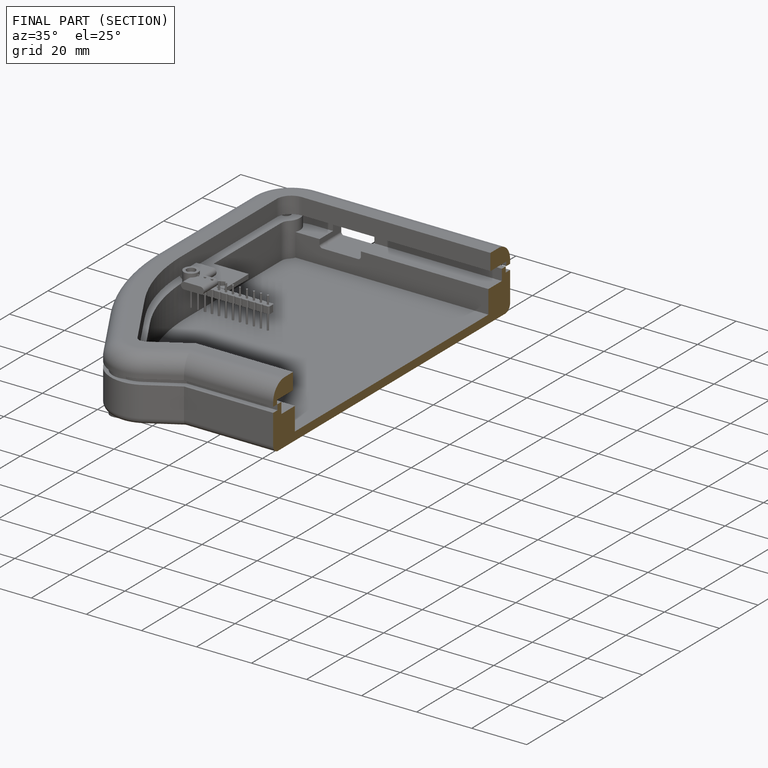
[diagram: finished part — half-section view (interior)]
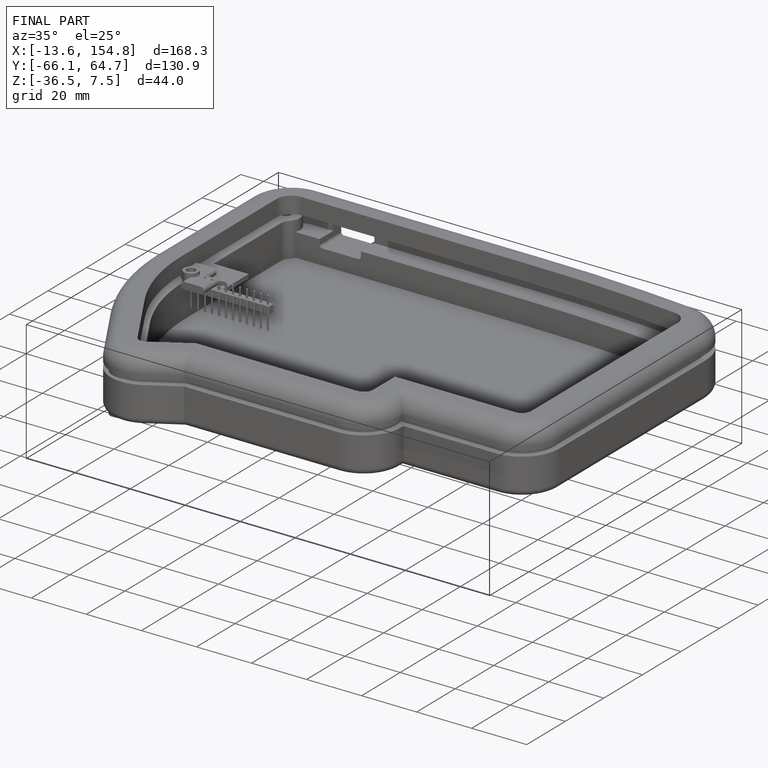
[diagram: finished part — iso view with bounding-box wireframe]
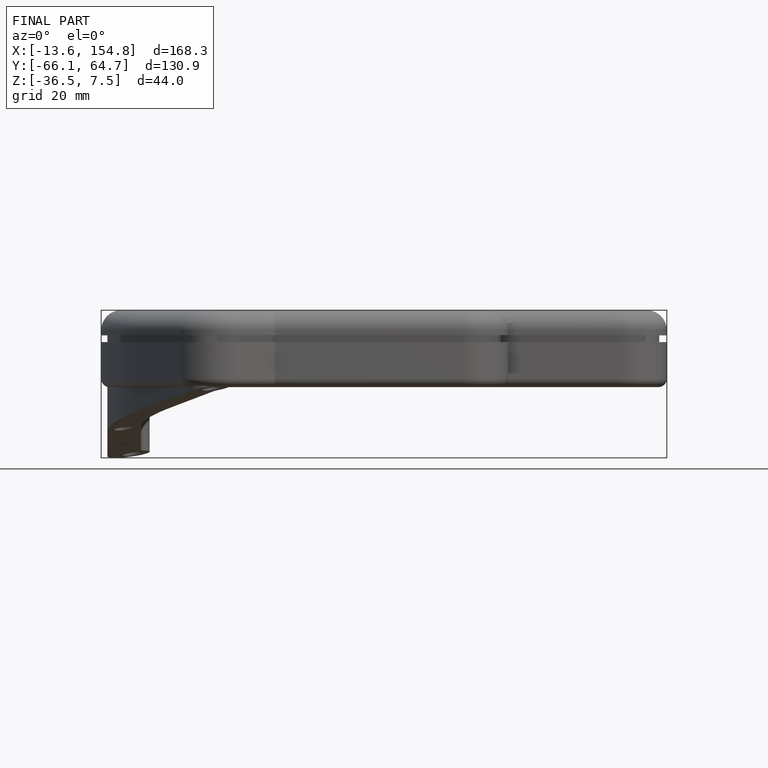
[diagram: finished part — front view with bounding-box wireframe]
